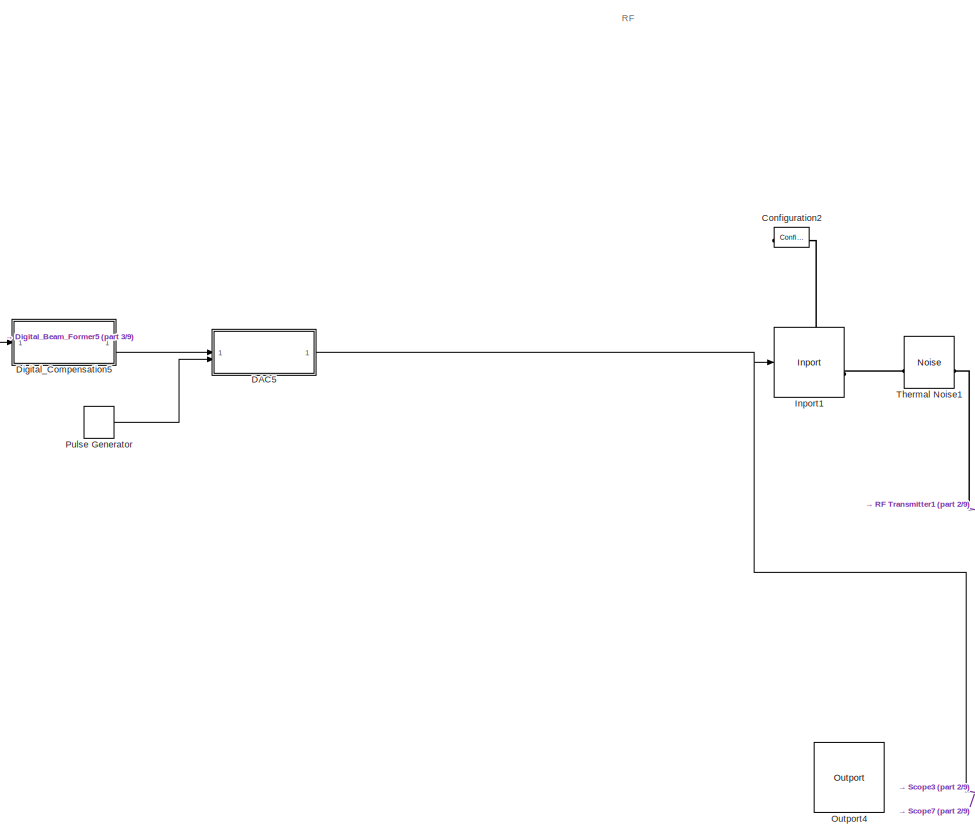
[diagram: root canvas - part 1/9, top left region]
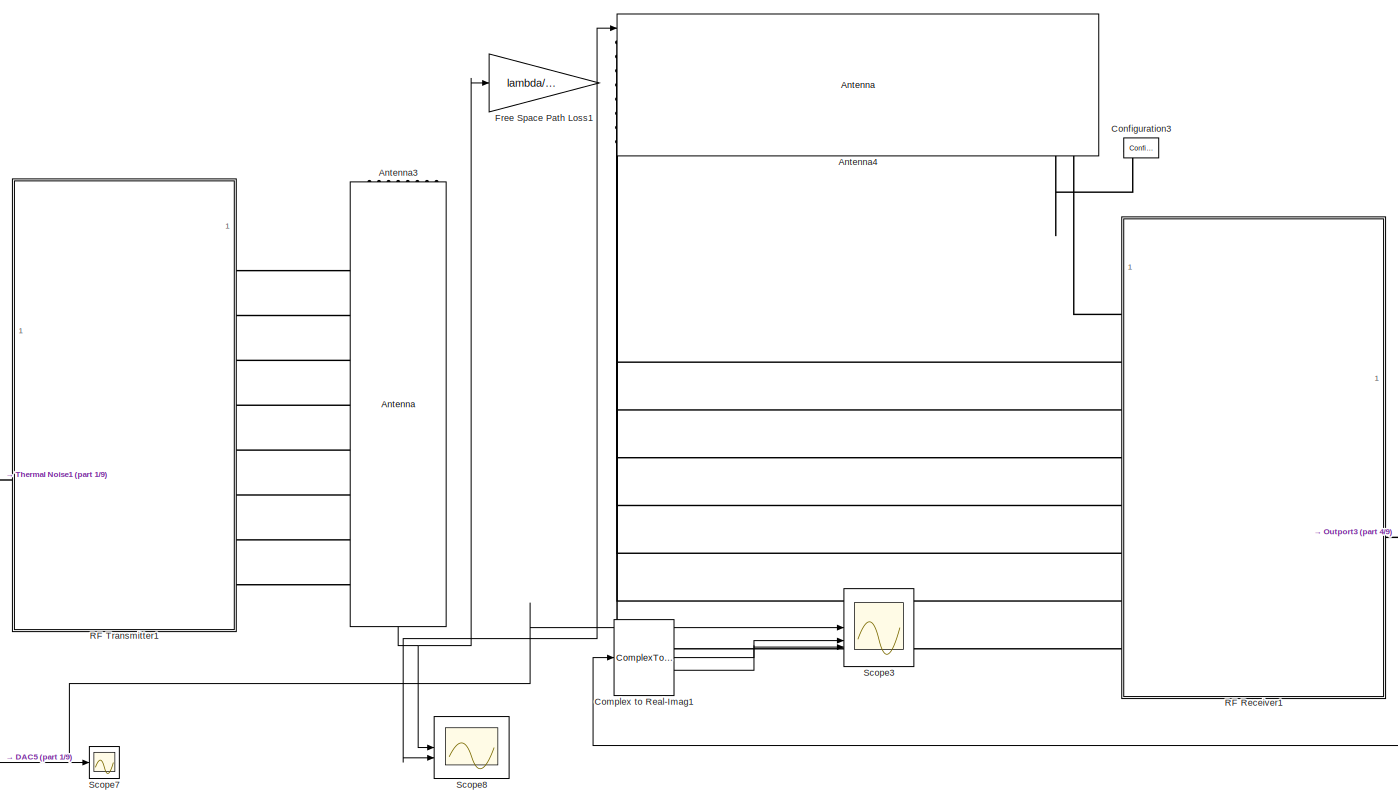
[diagram: root canvas - part 2/9, top center region]
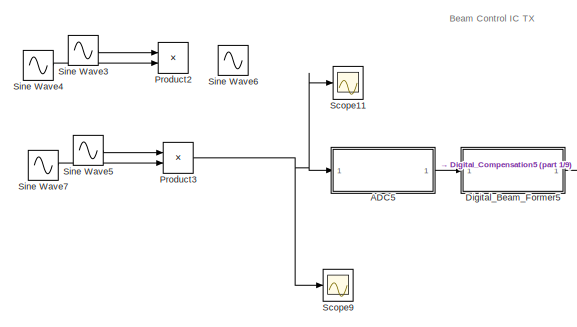
[diagram: root canvas - part 3/9, top left region]
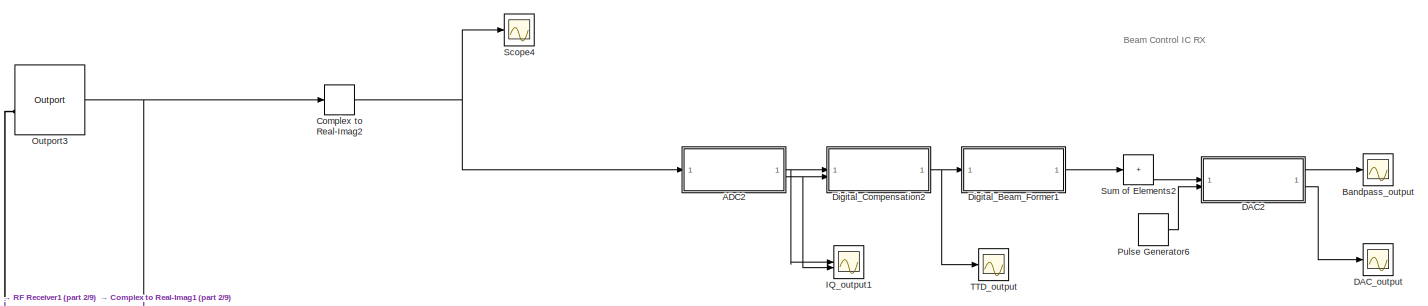
[diagram: root canvas - part 4/9, top right region]
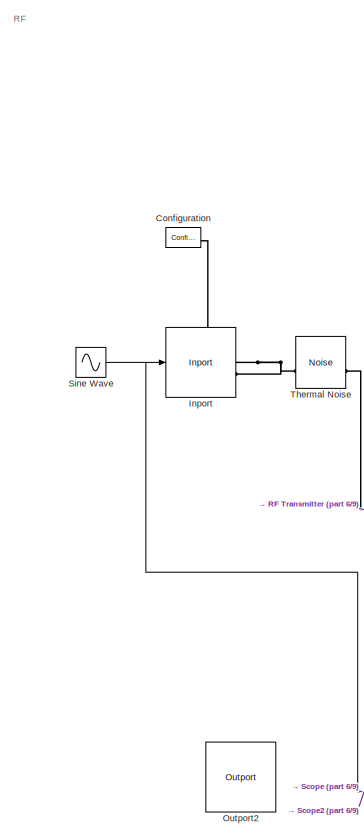
[diagram: root canvas - part 5/9, bottom left region]
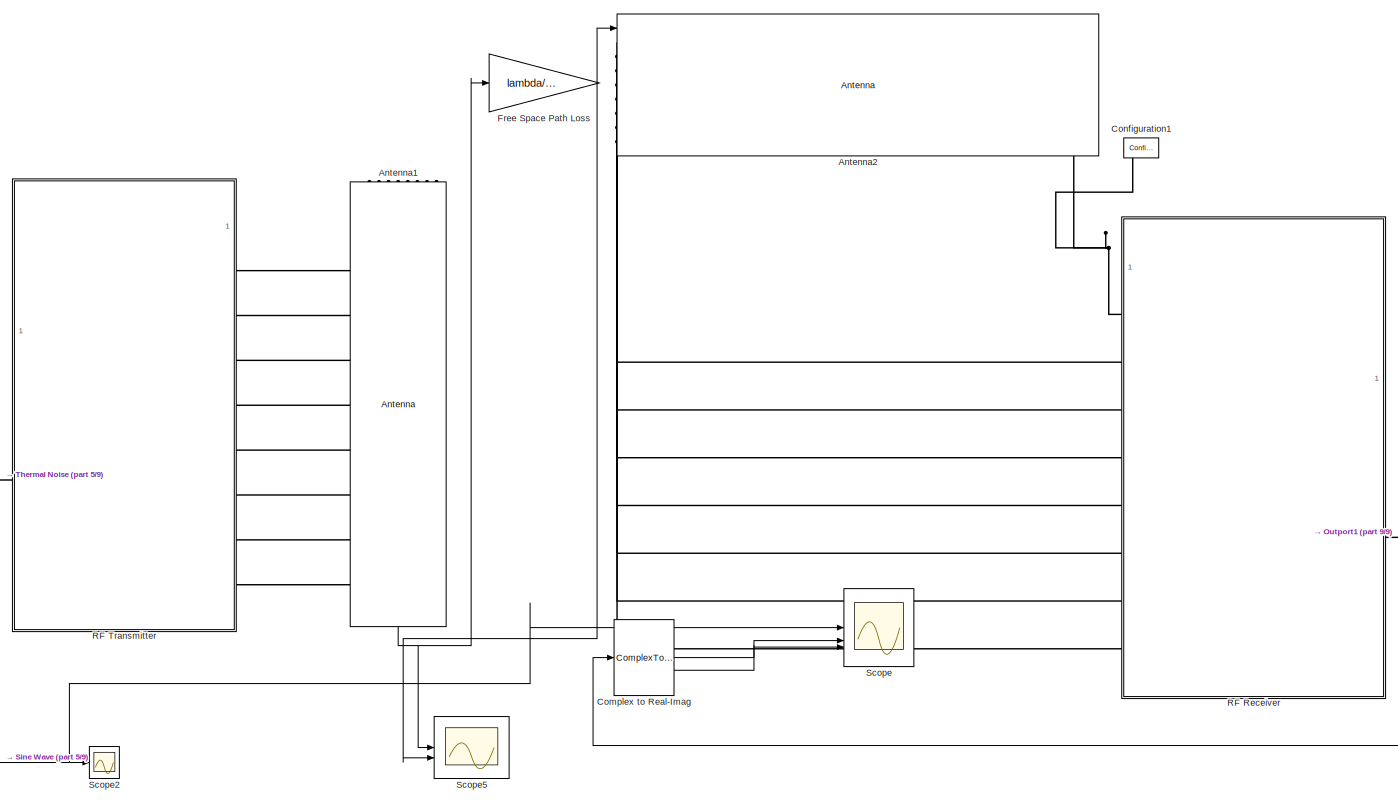
[diagram: root canvas - part 6/9, bottom center region]
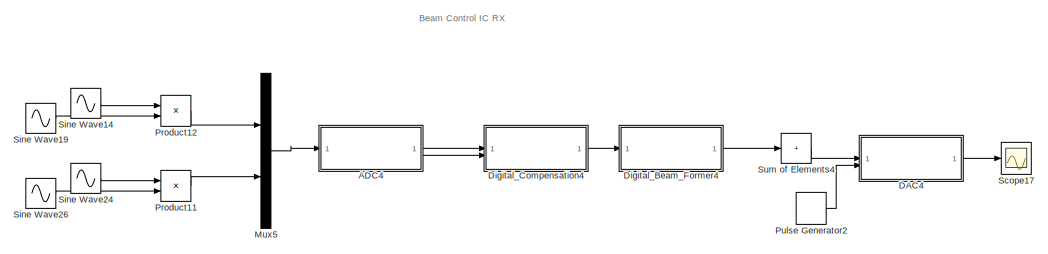
[diagram: root canvas - part 7/9, bottom right region]
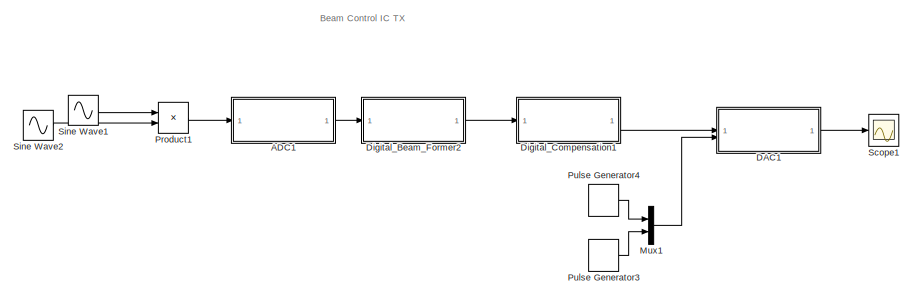
[diagram: root canvas - part 8/9, bottom left region]
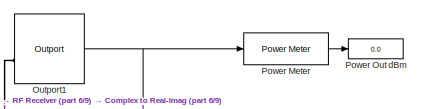
[diagram: root canvas - part 9/9, bottom right region]
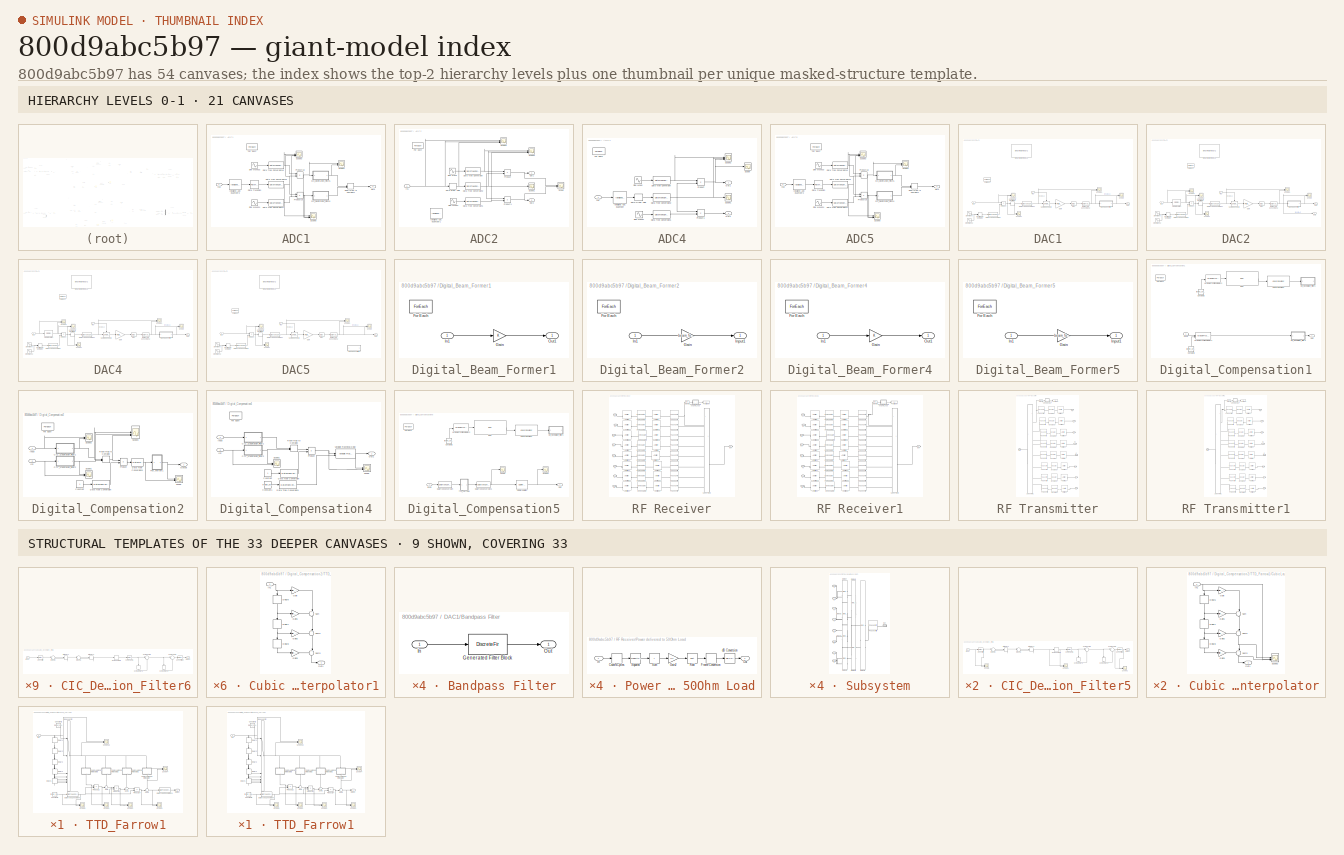
[diagram: thumbnail index - top-2 hierarchy levels (21 canvases) + 9 structural-template representatives of the remaining 33 canvases]
MODEL slx_800d9abc5b97
KIND model
CONFIG AbsTol = auto
CONFIG EnableMultiTasking = off
CONFIG FixedStep = auto
CONFIG MaxStep = auto
CONFIG MinStep = auto
CONFIG RelTol = 1e-3
CONFIG SampleTimeConstraint = Unconstrained
CONFIG SolverName = VariableStepAuto
CONFIG StartTime = 0.4e-7
CONFIG StopTime = 1e-7
BLOCK [SubSystem] ADC1
  Commented = on
  TreatAsAtomicUnit = on
BLOCK [SubSystem] ADC1/CIC_Decimation_Filter5
  ErrorFcn = dspFilterRealizedInBasicElemsAlgLoopErrFcnCallback
  Tag = FilterWizardSubSystem
  UserDataPersistent = on
BLOCK [DataTypeConversion] ADC1/CIC_Decimation_Filter5/CombCast5
  OutDataTypeStr = fixdt(1,34,15)
  RndMeth = Floor
  SaturateOnIntegerOverflow = off
BLOCK [Delay] ADC1/CIC_Decimation_Filter5/CombDelay5
  DelayLength = 1
  InitialCondition = 0
  InputPortMap = u0
  NameLocation = right
BLOCK [Delay] ADC1/CIC_Decimation_Filter5/CombDelay6
  DelayLength = 1
  InitialCondition = 0
  InputPortMap = u0
  NameLocation = right
BLOCK [Sum] ADC1/CIC_Decimation_Filter5/CombSum5
  AccumDataTypeStr = fixdt(1,34,15)
  Inputs = |+-
  OutDataTypeStr = fixdt(1,34,15)
BLOCK [Sum] ADC1/CIC_Decimation_Filter5/CombSum6
  AccumDataTypeStr = fixdt(1,34,15)
  Inputs = |+-
  OutDataTypeStr = fixdt(1,34,15)
BLOCK [DataTypeConversion] ADC1/CIC_Decimation_Filter5/ConvertIn
  OutDataTypeStr = fixdt(1,32,15)
  RndMeth = Nearest
BLOCK [DataTypeConversion] ADC1/CIC_Decimation_Filter5/ConvertOut
  OutDataTypeStr = fixdt(1,32,13)
  RndMeth = Floor
  SaturateOnIntegerOverflow = off
BLOCK [DownSample] ADC1/CIC_Decimation_Filter5/Down Sample
  AllowArbitraryFixedInput = on
  InputProcessing = Elements as channels (sample based)
  RateOptions = Allow multirate processing
BLOCK [Inport] ADC1/CIC_Decimation_Filter5/Input
BLOCK [Delay] ADC1/CIC_Decimation_Filter5/IntDelay2
  DelayLength = 1
  InitialCondition = 0
  InputPortMap = u0
BLOCK [Delay] ADC1/CIC_Decimation_Filter5/IntDelay3
  DelayLength = 1
  InitialCondition = 0
  InputPortMap = u0
BLOCK [Sum] ADC1/CIC_Decimation_Filter5/IntSum2
  AccumDataTypeStr = fixdt(1,34,15)
  Inputs = |++
  OutDataTypeStr = fixdt(1,34,15)
BLOCK [Sum] ADC1/CIC_Decimation_Filter5/IntSum3
  AccumDataTypeStr = fixdt(1,34,15)
  Inputs = |++
  OutDataTypeStr = fixdt(1,34,15)
BLOCK [Outport] ADC1/CIC_Decimation_Filter5/Output
BLOCK [Scope] ADC1/CIC_Decimation_Filter5/Scope
  Floating = off
  NumInputPorts = 2
  ScopeSpecificationString = Simulink.scopes.TimeScopeBlockCfg('CurrentConfiguration', extmgr.ConfigurationSet(extmgr.Configuration('Core','General UI',true),extmgr.Configuration('Core','Source UI',true),extmgr.Configuration('Sources','WiredSimulink',true,'DataLoggingVariableName','ScopeData1'),extmgr.Configuration('Visuals','Time Domain',true,'SerializedDisplays',{struct('MinYLimReal','-36.95312','MaxYLimReal','36.95312','YL...<+2062ch>
BLOCK [Scope] ADC1/CIC_Decimation_Filter5/Scope1
  Floating = off
  NumInputPorts = 2
  ScopeSpecificationString = Simulink.scopes.TimeScopeBlockCfg('CurrentConfiguration', extmgr.ConfigurationSet(extmgr.Configuration('Core','General UI',true),extmgr.Configuration('Core','Source UI',true),extmgr.Configuration('Sources','WiredSimulink',true,'DataLoggingVariableName','ScopeData2'),extmgr.Configuration('Visuals','Time Domain',true,'SerializedDisplays',{struct('MinYLimReal','-83.625','MaxYLimReal','752.625','YLabe...<+2028ch>
BLOCK [Scope] ADC1/CIC_Decimation_Filter5/Scope2
  Floating = off
  NumInputPorts = 2
  ScopeSpecificationString = Simulink.scopes.TimeScopeBlockCfg('CurrentConfiguration', extmgr.ConfigurationSet(extmgr.Configuration('Core','General UI',true),extmgr.Configuration('Core','Source UI',true),extmgr.Configuration('Sources','WiredSimulink',true,'DataLoggingVariableName','ScopeData3'),extmgr.Configuration('Visuals','Time Domain',true,'SerializedDisplays',{struct('MinYLimReal','-73.90625','MaxYLimReal','73.90625','YL...<+2076ch>
BLOCK [SubSystem] ADC1/CIC_Decimation_Filter6
  ErrorFcn = dspFilterRealizedInBasicElemsAlgLoopErrFcnCallback
  Tag = FilterWizardSubSystem
  UserDataPersistent = on
BLOCK [DataTypeConversion] ADC1/CIC_Decimation_Filter6/CombCast5
  OutDataTypeStr = fixdt(1,34,15)
  RndMeth = Floor
  SaturateOnIntegerOverflow = off
BLOCK [Delay] ADC1/CIC_Decimation_Filter6/CombDelay5
  DelayLength = 1
  InitialCondition = 0
  InputPortMap = u0
  NameLocation = right
BLOCK [Delay] ADC1/CIC_Decimation_Filter6/CombDelay6
  DelayLength = 1
  InitialCondition = 0
  InputPortMap = u0
  NameLocation = right
BLOCK [Sum] ADC1/CIC_Decimation_Filter6/CombSum5
  AccumDataTypeStr = fixdt(1,34,15)
  Inputs = |+-
  OutDataTypeStr = fixdt(1,34,15)
BLOCK [Sum] ADC1/CIC_Decimation_Filter6/CombSum6
  AccumDataTypeStr = fixdt(1,34,15)
  Inputs = |+-
  OutDataTypeStr = fixdt(1,34,15)
BLOCK [DataTypeConversion] ADC1/CIC_Decimation_Filter6/ConvertIn
  OutDataTypeStr = fixdt(1,32,15)
  RndMeth = Nearest
BLOCK [DataTypeConversion] ADC1/CIC_Decimation_Filter6/ConvertOut
  OutDataTypeStr = fixdt(1,32,13)
  RndMeth = Floor
  SaturateOnIntegerOverflow = off
BLOCK [DownSample] ADC1/CIC_Decimation_Filter6/Down Sample
  AllowArbitraryFixedInput = on
  InputProcessing = Elements as channels (sample based)
  RateOptions = Allow multirate processing
BLOCK [Inport] ADC1/CIC_Decimation_Filter6/Input
BLOCK [Delay] ADC1/CIC_Decimation_Filter6/IntDelay2
  DelayLength = 1
  InitialCondition = 0
  InputPortMap = u0
BLOCK [Delay] ADC1/CIC_Decimation_Filter6/IntDelay3
  DelayLength = 1
  InitialCondition = 0
  InputPortMap = u0
BLOCK [Sum] ADC1/CIC_Decimation_Filter6/IntSum2
  AccumDataTypeStr = fixdt(1,34,15)
  Inputs = |++
  OutDataTypeStr = fixdt(1,34,15)
BLOCK [Sum] ADC1/CIC_Decimation_Filter6/IntSum3
  AccumDataTypeStr = fixdt(1,34,15)
  Inputs = |++
  OutDataTypeStr = fixdt(1,34,15)
BLOCK [Outport] ADC1/CIC_Decimation_Filter6/Output
BLOCK [DataTypeConversion] ADC1/Data Type Conversion15
  OutDataTypeStr = fixdt(1,18,6)
  RndMeth = Floor
  SaturateOnIntegerOverflow = off
BLOCK [DataTypeConversion] ADC1/Data Type Conversion16
  OutDataTypeStr = fixdt(1,16,6)
  RndMeth = Floor
  SaturateOnIntegerOverflow = off
BLOCK [DataTypeConversion] ADC1/Data Type Conversion17
  OutDataTypeStr = fixdt(1,16,6)
  RndMeth = Floor
  SaturateOnIntegerOverflow = off
BLOCK [ForEach] ADC1/For Each
  DisableCoverage = on
  NameLocation = top
BLOCK [Reference] ADC1/Idealized ADC quantizer3  REF=simulink_extras/Additional
Discrete/Idealized ADC quantizer
  AttributesFormatString = (settings: %<NumberOfConverterBits>-bit converter\nVmin: %<Vmin>, Vmax: %<Vmax>)
  SourceBlock = simulink_extras/Additional\nDiscrete/Idealized ADC quantizer
  SourceType = IdealADC
BLOCK [Inport] ADC1/In1
  Partition = on
  PartitionDimension = 1
  PartitionOffset = 0
  PartitionWidth = 1
BLOCK [Outport] ADC1/Out1
  ConcatenationDimension = 1
BLOCK [Product] ADC1/Product18
BLOCK [Product] ADC1/Product19
BLOCK [RateTransition] ADC1/Rate Transition
  OutPortSampleTime = 1/1e9
BLOCK [RealImagToComplex] ADC1/Real-Imag to Complex4
BLOCK [Scope] ADC1/Scope3
  Floating = off
  NameLocation = left
  NumInputPorts = 3
  ScopeSpecificationString = Simulink.scopes.TimeScopeBlockCfg('CurrentConfiguration', extmgr.ConfigurationSet(extmgr.Configuration('Core','General UI',true),extmgr.Configuration('Core','Source UI',true),extmgr.Configuration('Sources','WiredSimulink',true,'DataLoggingVariableName','ScopeData14'),extmgr.Configuration('Visuals','Time Domain',true,'SerializedDisplays',{struct('MinYLimReal','-1.24805','MaxYLimReal','1.23242','YLa...<+2982ch>
BLOCK [Scope] ADC1/Scope4
  Floating = off
  NumInputPorts = 2
  ScopeSpecificationString = Simulink.scopes.TimeScopeBlockCfg('CurrentConfiguration', extmgr.ConfigurationSet(extmgr.Configuration('Core','General UI',true),extmgr.Configuration('Core','Source UI',true),extmgr.Configuration('Sources','WiredSimulink',true,'DataLoggingVariableName','ScopeData15'),extmgr.Configuration('Visuals','Time Domain',true,'SerializedDisplays',{struct('MinYLimReal','-36.95312','MaxYLimReal','36.95312','Y...<+2224ch>
BLOCK [Scope] ADC1/Scope8
  Floating = off
  NumInputPorts = 3
  ScopeSpecificationString = Simulink.scopes.TimeScopeBlockCfg('CurrentConfiguration', extmgr.ConfigurationSet(extmgr.Configuration('Core','General UI',true),extmgr.Configuration('Core','Source UI',true),extmgr.Configuration('Sources','WiredSimulink',true,'DataLoggingVariableName','ScopeData16'),extmgr.Configuration('Visuals','Time Domain',true,'SerializedDisplays',{struct('MinYLimReal','-2559.875','MaxYLimReal','2558.875','Y...<+3006ch>
BLOCK [Sin] ADC1/Sine Wave33
  Frequency = 2*pi*250e6
  Phase = 1.57
  SampleTime = 1/1e9
BLOCK [Sin] ADC1/Sine Wave34
  Frequency = 2*pi*250e6
  SampleTime = 1/1e9
BLOCK [SubSystem] ADC2
  TreatAsAtomicUnit = on
BLOCK [DataTypeConversion] ADC2/Data Type Conversion
  OutDataTypeStr = fixdt(1,16,6)
  OutMax = 1
  OutMin = -1
  RndMeth = Floor
  SaturateOnIntegerOverflow = off
BLOCK [DataTypeConversion] ADC2/Data Type Conversion1
  OutDataTypeStr = fixdt(1,16,6)
  OutMax = 1
  OutMin = -1
  RndMeth = Floor
  SaturateOnIntegerOverflow = off
BLOCK [DataTypeConversion] ADC2/Data Type Conversion2
  OutDataTypeStr = fixdt(1,16,15)
  OutMax = 0.9
  OutMin = -1
  RndMeth = Floor
  SaturateOnIntegerOverflow = off
BLOCK [ForEach] ADC2/For Each
  DisableCoverage = on
  NameLocation = top
BLOCK [Reference] ADC2/Idealized ADC quantizer1  REF=simulink_extras/Additional
Discrete/Idealized ADC quantizer
  AttributesFormatString = (settings: %<NumberOfConverterBits>-bit converter\nVmin: %<Vmin>, Vmax: %<Vmax>)
  Commented = on
  SourceBlock = simulink_extras/Additional\nDiscrete/Idealized ADC quantizer
  SourceType = IdealADC
BLOCK [Inport] ADC2/In1
  Partition = on
  PartitionDimension = 1
  PartitionOffset = 0
  PartitionWidth = 1
BLOCK [Outport] ADC2/Out1
  ConcatenationDimension = 1
BLOCK [Outport] ADC2/Out2
  ConcatenationDimension = 1
  Port = 2
BLOCK [Product] ADC2/Product
BLOCK [Product] ADC2/Product1
BLOCK [Scope] ADC2/Scope
  Floating = off
  NumInputPorts = 2
  ScopeSpecificationString = Simulink.scopes.TimeScopeBlockCfg('CurrentConfiguration', extmgr.ConfigurationSet(extmgr.Configuration('Core','General UI',true),extmgr.Configuration('Core','Source UI',true),extmgr.Configuration('Sources','WiredSimulink',true,'DataLoggingVariableName','ScopeData5'),extmgr.Configuration('Visuals','Time Domain',true,'SerializedDisplays',{struct('MinYLimReal','-0.00008','MaxYLimReal','0.00008','YLab...<+2075ch>
BLOCK [Scope] ADC2/Scope1
  Floating = off
  NumInputPorts = 1
  ScopeSpecificationString = Simulink.scopes.TimeScopeBlockCfg('CurrentConfiguration', extmgr.ConfigurationSet(extmgr.Configuration('Core','General UI',true),extmgr.Configuration('Core','Source UI',true),extmgr.Configuration('Sources','WiredSimulink',true,'DataLoggingVariableName','ScopeData6'),extmgr.Configuration('Visuals','Time Domain',true,'SerializedDisplays',{struct('MinYLimReal','-0.00011','MaxYLimReal','0.00008','YLab...<+1415ch>
BLOCK [Scope] ADC2/Scope2
  Floating = off
  NumInputPorts = 3
  ScopeSpecificationString = Simulink.scopes.TimeScopeBlockCfg('CurrentConfiguration', extmgr.ConfigurationSet(extmgr.Configuration('Core','General UI',true),extmgr.Configuration('Core','Source UI',true),extmgr.Configuration('Sources','WiredSimulink',true,'DataLoggingVariableName','ScopeData14'),extmgr.Configuration('Visuals','Time Domain',true,'SerializedDisplays',{struct('MinYLimReal','-1.24805','MaxYLimReal','1.23242','YLa...<+2855ch>
BLOCK [Scope] ADC2/Scope3
  Floating = off
  NumInputPorts = 3
  ScopeSpecificationString = Simulink.scopes.TimeScopeBlockCfg('CurrentConfiguration', extmgr.ConfigurationSet(extmgr.Configuration('Core','General UI',true),extmgr.Configuration('Core','Source UI',true),extmgr.Configuration('Sources','WiredSimulink',true,'DataLoggingVariableName','ScopeData9'),extmgr.Configuration('Visuals','Time Domain',true,'SerializedDisplays',{struct('MinYLimReal','-0.0001','MaxYLimReal','0.0001','YLabel...<+2787ch>
BLOCK [Sin] ADC2/Sine Wave
  Frequency = 2*pi*250e6
  Phase = 1.57
  SampleTime = 1/1e9
BLOCK [Sin] ADC2/Sine Wave1
  Frequency = 2*pi*250e6
  SampleTime = 1/1e9
BLOCK [ZeroOrderHold] ADC2/Zero-Order Hold
  SampleTime = 1/1e9
BLOCK [SubSystem] ADC4
  Commented = on
  TreatAsAtomicUnit = on
BLOCK [DataTypeConversion] ADC4/Data Type Conversion
  OutDataTypeStr = fixdt(1,16,6)
  OutMax = 1
  OutMin = -1
  RndMeth = Floor
  SaturateOnIntegerOverflow = off
BLOCK [DataTypeConversion] ADC4/Data Type Conversion1
  OutDataTypeStr = fixdt(1,16,6)
  OutMax = 1
  OutMin = -1
  RndMeth = Floor
  SaturateOnIntegerOverflow = off
BLOCK [DataTypeConversion] ADC4/Data Type Conversion2
  OutDataTypeStr = fixdt(1,18,6)
  OutMax = 2047
  OutMin = -2048
  RndMeth = Floor
  SaturateOnIntegerOverflow = off
BLOCK [ForEach] ADC4/For Each
  DisableCoverage = on
  NameLocation = top
BLOCK [Reference] ADC4/Idealized ADC quantizer  REF=simulink_extras/Additional
Discrete/Idealized ADC quantizer
  AttributesFormatString = (settings: %<NumberOfConverterBits>-bit converter\nVmin: %<Vmin>, Vmax: %<Vmax>)
  SourceBlock = simulink_extras/Additional\nDiscrete/Idealized ADC quantizer
  SourceType = IdealADC
BLOCK [Inport] ADC4/In1
  Partition = on
  PartitionDimension = 1
  PartitionOffset = 0
  PartitionWidth = 1
BLOCK [Outport] ADC4/Out1
  ConcatenationDimension = 1
BLOCK [Outport] ADC4/Out2
  ConcatenationDimension = 1
  Port = 2
BLOCK [Product] ADC4/Product
BLOCK [Product] ADC4/Product1
BLOCK [Scope] ADC4/Scope
  Floating = off
  NumInputPorts = 1
  ScopeSpecificationString = Simulink.scopes.TimeScopeBlockCfg('CurrentConfiguration', extmgr.ConfigurationSet(extmgr.Configuration('Core','General UI',true),extmgr.Configuration('Core','Source UI',true),extmgr.Configuration('Sources','WiredSimulink',true,'DataLoggingVariableName','ScopeData5'),extmgr.Configuration('Visuals','Time Domain',true,'SerializedDisplays',{struct('MinYLimReal','-2365.00000','MaxYLimReal','2365.00000'...<+1424ch>
BLOCK [Scope] ADC4/Scope1
  Floating = off
  NumInputPorts = 1
  ScopeSpecificationString = Simulink.scopes.TimeScopeBlockCfg('CurrentConfiguration', extmgr.ConfigurationSet(extmgr.Configuration('Core','General UI',true),extmgr.Configuration('Core','Source UI',true),extmgr.Configuration('Sources','WiredSimulink',true,'DataLoggingVariableName','ScopeData6'),extmgr.Configuration('Visuals','Time Domain',true,'SerializedDisplays',{struct('MinYLimReal','-2365.00000','MaxYLimReal','2365.00000'...<+1405ch>
BLOCK [Scope] ADC4/Scope2
  Floating = off
  NumInputPorts = 3
  ScopeSpecificationString = Simulink.scopes.TimeScopeBlockCfg('CurrentConfiguration', extmgr.ConfigurationSet(extmgr.Configuration('Core','General UI',true),extmgr.Configuration('Core','Source UI',true),extmgr.Configuration('Sources','WiredSimulink',true,'DataLoggingVariableName','ScopeData14'),extmgr.Configuration('Visuals','Time Domain',true,'SerializedDisplays',{struct('MinYLimReal','-1.24805','MaxYLimReal','1.23242','YLa...<+2827ch>
BLOCK [Sin] ADC4/Sine Wave
  Frequency = 2*pi*250e6
  Phase = 1.57
  SampleTime = 1/1e9
BLOCK [Sin] ADC4/Sine Wave1
  Frequency = 2*pi*250e6
  SampleTime = 1/1e9
BLOCK [ZeroOrderHold] ADC4/Zero-Order Hold
  SampleTime = 1/1e9
BLOCK [SubSystem] ADC5
  TreatAsAtomicUnit = on
BLOCK [SubSystem] ADC5/CIC_Decimation_Filter5
  ErrorFcn = dspFilterRealizedInBasicElemsAlgLoopErrFcnCallback
  Tag = FilterWizardSubSystem
  UserDataPersistent = on
BLOCK [DataTypeConversion] ADC5/CIC_Decimation_Filter5/CombCast5
  OutDataTypeStr = fixdt(1,34,15)
  RndMeth = Floor
  SaturateOnIntegerOverflow = off
BLOCK [Delay] ADC5/CIC_Decimation_Filter5/CombDelay5
  DelayLength = 1
  InitialCondition = 0
  InputPortMap = u0
  NameLocation = right
BLOCK [Delay] ADC5/CIC_Decimation_Filter5/CombDelay6
  DelayLength = 1
  InitialCondition = 0
  InputPortMap = u0
  NameLocation = right
BLOCK [Sum] ADC5/CIC_Decimation_Filter5/CombSum5
  AccumDataTypeStr = fixdt(1,34,15)
  Inputs = |+-
  OutDataTypeStr = fixdt(1,34,15)
BLOCK [Sum] ADC5/CIC_Decimation_Filter5/CombSum6
  AccumDataTypeStr = fixdt(1,34,15)
  Inputs = |+-
  OutDataTypeStr = fixdt(1,34,15)
BLOCK [DataTypeConversion] ADC5/CIC_Decimation_Filter5/ConvertIn
  OutDataTypeStr = fixdt(1,32,15)
  RndMeth = Nearest
BLOCK [DataTypeConversion] ADC5/CIC_Decimation_Filter5/ConvertOut
  OutDataTypeStr = fixdt(1,32,13)
  RndMeth = Floor
  SaturateOnIntegerOverflow = off
BLOCK [DownSample] ADC5/CIC_Decimation_Filter5/Down Sample
  AllowArbitraryFixedInput = on
  InputProcessing = Elements as channels (sample based)
  RateOptions = Allow multirate processing
BLOCK [Inport] ADC5/CIC_Decimation_Filter5/Input
BLOCK [Delay] ADC5/CIC_Decimation_Filter5/IntDelay2
  DelayLength = 1
  InitialCondition = 0
  InputPortMap = u0
BLOCK [Delay] ADC5/CIC_Decimation_Filter5/IntDelay3
  DelayLength = 1
  InitialCondition = 0
  InputPortMap = u0
BLOCK [Sum] ADC5/CIC_Decimation_Filter5/IntSum2
  AccumDataTypeStr = fixdt(1,34,15)
  Inputs = |++
  OutDataTypeStr = fixdt(1,34,15)
BLOCK [Sum] ADC5/CIC_Decimation_Filter5/IntSum3
  AccumDataTypeStr = fixdt(1,34,15)
  Inputs = |++
  OutDataTypeStr = fixdt(1,34,15)
BLOCK [Outport] ADC5/CIC_Decimation_Filter5/Output
BLOCK [Scope] ADC5/CIC_Decimation_Filter5/Scope
  Floating = off
  NumInputPorts = 2
  ScopeSpecificationString = Simulink.scopes.TimeScopeBlockCfg('CurrentConfiguration', extmgr.ConfigurationSet(extmgr.Configuration('Core','General UI',true),extmgr.Configuration('Core','Source UI',true),extmgr.Configuration('Sources','WiredSimulink',true,'DataLoggingVariableName','ScopeData1'),extmgr.Configuration('Visuals','Time Domain',true,'SerializedDisplays',{struct('MinYLimReal','-36.95312','MaxYLimReal','36.95312','YL...<+2062ch>
BLOCK [Scope] ADC5/CIC_Decimation_Filter5/Scope1
  Floating = off
  NumInputPorts = 2
  ScopeSpecificationString = Simulink.scopes.TimeScopeBlockCfg('CurrentConfiguration', extmgr.ConfigurationSet(extmgr.Configuration('Core','General UI',true),extmgr.Configuration('Core','Source UI',true),extmgr.Configuration('Sources','WiredSimulink',true,'DataLoggingVariableName','ScopeData2'),extmgr.Configuration('Visuals','Time Domain',true,'SerializedDisplays',{struct('MinYLimReal','-83.625','MaxYLimReal','752.625','YLabe...<+2028ch>
BLOCK [Scope] ADC5/CIC_Decimation_Filter5/Scope2
  Floating = off
  NumInputPorts = 2
  ScopeSpecificationString = Simulink.scopes.TimeScopeBlockCfg('CurrentConfiguration', extmgr.ConfigurationSet(extmgr.Configuration('Core','General UI',true),extmgr.Configuration('Core','Source UI',true),extmgr.Configuration('Sources','WiredSimulink',true,'DataLoggingVariableName','ScopeData3'),extmgr.Configuration('Visuals','Time Domain',true,'SerializedDisplays',{struct('MinYLimReal','-73.90625','MaxYLimReal','73.90625','YL...<+2076ch>
BLOCK [SubSystem] ADC5/CIC_Decimation_Filter6
  ErrorFcn = dspFilterRealizedInBasicElemsAlgLoopErrFcnCallback
  Tag = FilterWizardSubSystem
  UserDataPersistent = on
BLOCK [DataTypeConversion] ADC5/CIC_Decimation_Filter6/CombCast5
  OutDataTypeStr = fixdt(1,34,15)
  RndMeth = Floor
  SaturateOnIntegerOverflow = off
BLOCK [Delay] ADC5/CIC_Decimation_Filter6/CombDelay5
  DelayLength = 1
  InitialCondition = 0
  InputPortMap = u0
  NameLocation = right
BLOCK [Delay] ADC5/CIC_Decimation_Filter6/CombDelay6
  DelayLength = 1
  InitialCondition = 0
  InputPortMap = u0
  NameLocation = right
BLOCK [Sum] ADC5/CIC_Decimation_Filter6/CombSum5
  AccumDataTypeStr = fixdt(1,34,15)
  Inputs = |+-
  OutDataTypeStr = fixdt(1,34,15)
BLOCK [Sum] ADC5/CIC_Decimation_Filter6/CombSum6
  AccumDataTypeStr = fixdt(1,34,15)
  Inputs = |+-
  OutDataTypeStr = fixdt(1,34,15)
BLOCK [DataTypeConversion] ADC5/CIC_Decimation_Filter6/ConvertIn
  OutDataTypeStr = fixdt(1,32,15)
  RndMeth = Nearest
BLOCK [DataTypeConversion] ADC5/CIC_Decimation_Filter6/ConvertOut
  OutDataTypeStr = fixdt(1,32,13)
  RndMeth = Floor
  SaturateOnIntegerOverflow = off
BLOCK [DownSample] ADC5/CIC_Decimation_Filter6/Down Sample
  AllowArbitraryFixedInput = on
  InputProcessing = Elements as channels (sample based)
  RateOptions = Allow multirate processing
BLOCK [Inport] ADC5/CIC_Decimation_Filter6/Input
BLOCK [Delay] ADC5/CIC_Decimation_Filter6/IntDelay2
  DelayLength = 1
  InitialCondition = 0
  InputPortMap = u0
BLOCK [Delay] ADC5/CIC_Decimation_Filter6/IntDelay3
  DelayLength = 1
  InitialCondition = 0
  InputPortMap = u0
BLOCK [Sum] ADC5/CIC_Decimation_Filter6/IntSum2
  AccumDataTypeStr = fixdt(1,34,15)
  Inputs = |++
  OutDataTypeStr = fixdt(1,34,15)
BLOCK [Sum] ADC5/CIC_Decimation_Filter6/IntSum3
  AccumDataTypeStr = fixdt(1,34,15)
  Inputs = |++
  OutDataTypeStr = fixdt(1,34,15)
BLOCK [Outport] ADC5/CIC_Decimation_Filter6/Output
BLOCK [DataTypeConversion] ADC5/Data Type Conversion15
  OutDataTypeStr = fixdt(1,18,6)
  RndMeth = Floor
  SaturateOnIntegerOverflow = off
BLOCK [DataTypeConversion] ADC5/Data Type Conversion16
  OutDataTypeStr = fixdt(1,16,6)
  RndMeth = Floor
  SaturateOnIntegerOverflow = off
BLOCK [DataTypeConversion] ADC5/Data Type Conversion17
  OutDataTypeStr = fixdt(1,16,6)
  RndMeth = Floor
  SaturateOnIntegerOverflow = off
BLOCK [ForEach] ADC5/For Each
  DisableCoverage = on
  NameLocation = top
BLOCK [Reference] ADC5/Idealized ADC quantizer3  REF=simulink_extras/Additional
Discrete/Idealized ADC quantizer
  AttributesFormatString = (settings: %<NumberOfConverterBits>-bit converter\nVmin: %<Vmin>, Vmax: %<Vmax>)
  SourceBlock = simulink_extras/Additional\nDiscrete/Idealized ADC quantizer
  SourceType = IdealADC
BLOCK [Inport] ADC5/In1
  Partition = on
  PartitionDimension = 1
  PartitionOffset = 0
  PartitionWidth = 1
BLOCK [Outport] ADC5/Out1
  ConcatenationDimension = 1
BLOCK [Product] ADC5/Product18
BLOCK [Product] ADC5/Product19
BLOCK [RateTransition] ADC5/Rate Transition
  OutPortSampleTime = 1/1e9
BLOCK [RealImagToComplex] ADC5/Real-Imag to Complex4
BLOCK [Scope] ADC5/Scope3
  Floating = off
  NameLocation = left
  NumInputPorts = 3
  ScopeSpecificationString = Simulink.scopes.TimeScopeBlockCfg('CurrentConfiguration', extmgr.ConfigurationSet(extmgr.Configuration('Core','General UI',true),extmgr.Configuration('Core','Source UI',true),extmgr.Configuration('Sources','WiredSimulink',true,'DataLoggingVariableName','ScopeData14'),extmgr.Configuration('Visuals','Time Domain',true,'SerializedDisplays',{struct('MinYLimReal','-1.24805','MaxYLimReal','1.23242','YLa...<+3053ch>
BLOCK [Scope] ADC5/Scope4
  Floating = off
  NumInputPorts = 2
  ScopeSpecificationString = Simulink.scopes.TimeScopeBlockCfg('CurrentConfiguration', extmgr.ConfigurationSet(extmgr.Configuration('Core','General UI',true),extmgr.Configuration('Core','Source UI',true),extmgr.Configuration('Sources','WiredSimulink',true,'DataLoggingVariableName','ScopeData15'),extmgr.Configuration('Visuals','Time Domain',true,'SerializedDisplays',{struct('MinYLimReal','-2.30469','MaxYLimReal','2.30469','YLa...<+2205ch>
BLOCK [Scope] ADC5/Scope8
  Floating = off
  NumInputPorts = 3
  ScopeSpecificationString = Simulink.scopes.TimeScopeBlockCfg('CurrentConfiguration', extmgr.ConfigurationSet(extmgr.Configuration('Core','General UI',true),extmgr.Configuration('Core','Source UI',true),extmgr.Configuration('Sources','WiredSimulink',true,'DataLoggingVariableName','ScopeData16'),extmgr.Configuration('Visuals','Time Domain',true,'SerializedDisplays',{struct('MinYLimReal','-2559.875','MaxYLimReal','2558.875','Y...<+3006ch>
BLOCK [Sin] ADC5/Sine Wave33
  Frequency = 2*pi*250e6
  Phase = 1.57
  SampleTime = 1/1e9
BLOCK [Sin] ADC5/Sine Wave34
  Frequency = 2*pi*250e6
  SampleTime = 1/1e9
BLOCK [Reference] Antenna1  REF=simrfV2elements/Antenna
  Commented = on
  NameLocation = left
  SourceBlock = simrfV2elements/Antenna
  SourceType = Antenna
  UserDataPersistent = on
BLOCK [Reference] Antenna2  REF=simrfV2elements/Antenna
  Commented = on
  SourceBlock = simrfV2elements/Antenna
  SourceType = Antenna
  UserDataPersistent = on
BLOCK [Reference] Antenna3  REF=simrfV2elements/Antenna
  NameLocation = left
  SourceBlock = simrfV2elements/Antenna
  SourceType = Antenna
  UserDataPersistent = on
BLOCK [Reference] Antenna4  REF=simrfV2elements/Antenna
  SourceBlock = simrfV2elements/Antenna
  SourceType = Antenna
  UserDataPersistent = on
BLOCK [Scope] Bandpass_output
  Floating = off
  NumInputPorts = 1
  ScopeSpecificationString = Simulink.scopes.TimeScopeBlockCfg('CurrentConfiguration', extmgr.ConfigurationSet(extmgr.Configuration('Core','General UI',true),extmgr.Configuration('Core','Source UI',true),extmgr.Configuration('Sources','WiredSimulink',true,'DataLoggingVariableName','ScopeData17'),extmgr.Configuration('Visuals','Time Domain',true,'SerializedDisplays',{struct('MinYLimReal','-0.00000013','MaxYLimReal','0.00000013...<+1419ch>
BLOCK [ComplexToRealImag] Complex to Real-Imag
  Commented = on
BLOCK [ComplexToRealImag] Complex to Real-Imag1
BLOCK [ComplexToRealImag] Complex to Real-Imag2
  Output = Real
BLOCK [Reference] Configuration  REF=simrfV2util1/Configuration
  Commented = on
  SourceBlock = simrfV2util1/Configuration
  SourceType = Configuration
BLOCK [Reference] Configuration1  REF=simrfV2util1/Configuration
  Commented = on
  SourceBlock = simrfV2util1/Configuration
  SourceType = Configuration
BLOCK [Reference] Configuration2  REF=simrfV2util1/Configuration
  SourceBlock = simrfV2util1/Configuration
  SourceType = Configuration
BLOCK [Reference] Configuration3  REF=simrfV2util1/Configuration
  SourceBlock = simrfV2util1/Configuration
  SourceType = Configuration
BLOCK [SubSystem] DAC1
  Commented = on
  TreatAsAtomicUnit = on
BLOCK [SubSystem] DAC1/Bandpass Filter
  CopyFcn = fdesignblkfcn(gcbh, {'CopyFcn'});
  DialogController = fdesignblkfcn
  InitFcn = fdesignblkfcn(gcbh, {'InitFcn'});
  UserDataPersistent = on
BLOCK [DiscreteFir] DAC1/Bandpass Filter/Generated Filter Block
  Coefficients = [-0.0012202546535986659 -9.13233975482966975e-05 -8.99256829754742885e-05 -8.49568620794813187e-05 -7.65918257031608733e-05 -6.45471094074974157e-05 -4.91277813323746533e-05 -3.02130898541744078e-05 -8.26870645732298906e-06 1.6671662698626823e-05 4.39541890279793922e-05 7.34165310252373626e-05 0.00010423396503717428 0.000136131752137668013 0.000168143983641900536 0.000199929301866810821 0.00023043...<+11371ch>  <repeated x3 — deduplicated; at blocks: Generated Filter Block>
  InputPortMap = u0
  InputProcessing = Columns as channels (frame based)
  OutputPortMap = o0
  Tag = BlockMethodSubSystem
BLOCK [Inport] DAC1/Bandpass Filter/In
BLOCK [Outport] DAC1/Bandpass Filter/Out
  VectorParamsAs1DForOutWhenUnconnected = off
BLOCK [Bias] DAC1/Bias
  Bias = Bias
  SaturateOnIntegerOverflow = off
BLOCK [Reference] DAC1/Binary Weighted DAC  REF=msbDacArchitectures/Binary Weighted DAC
  Commented = on
  NameLocation = top
  SourceBlock = msbDacArchitectures/Binary Weighted DAC
  SourceType = Binary Weighted DAC
BLOCK [ComplexToRealImag] DAC1/Complex to Real-Imag
  Output = Real
BLOCK [DataTypeConversion] DAC1/Data Type Conversion
  OutDataTypeStr = fixdt(1,16,6)
  RndMeth = Floor
  SaturateOnIntegerOverflow = off
BLOCK [DataTypeConversion] DAC1/Data Type Conversion1
  OutDataTypeStr = double
  RndMeth = Floor
  SaturateOnIntegerOverflow = off
BLOCK [DataTypeConversion] DAC1/Data Type Conversion2
  OutDataTypeStr = double
  RndMeth = Floor
  SaturateOnIntegerOverflow = off
BLOCK [ForEach] DAC1/For Each
  DisableCoverage = on
BLOCK [Gain] DAC1/Gain
  Gain = Ref / 2^N
BLOCK [Inport] DAC1/In1
  Partition = on
  PartitionDimension = 1
  PartitionOffset = 0
  PartitionWidth = 1
BLOCK [Inport] DAC1/In2
  Partition = on
  PartitionDimension = 1
  PartitionOffset = 0
  PartitionWidth = 1
  Port = 2
BLOCK [Outport] DAC1/Out1
  ConcatenationDimension = 1
BLOCK [Product] DAC1/Product
BLOCK [RealImagToComplex] DAC1/Real-Imag to Complex
BLOCK [Reference] DAC1/Sample and Hold  REF=dspsigops/Sample
and Hold
  SourceBlock = dspsigops/Sample\nand Hold
  SourceType = Sample and Hold
BLOCK [Scope] DAC1/Scope
  Floating = off
  NumInputPorts = 2
  ScopeSpecificationString = Simulink.scopes.TimeScopeBlockCfg('CurrentConfiguration', extmgr.ConfigurationSet(extmgr.Configuration('Core','General UI',true),extmgr.Configuration('Core','Source UI',true),extmgr.Configuration('Sources','WiredSimulink',true,'DataLoggingVariableName','ScopeData2'),extmgr.Configuration('Visuals','Time Domain',true,'SerializedDisplays',{struct('MinYLimReal','-37.83538','MaxYLimReal','37.83538','YL...<+2043ch>
BLOCK [Scope] DAC1/Scope1
  Floating = off
  NumInputPorts = 2
  ScopeSpecificationString = Simulink.scopes.TimeScopeBlockCfg('CurrentConfiguration', extmgr.ConfigurationSet(extmgr.Configuration('Core','General UI',true),extmgr.Configuration('Core','Source UI',true),extmgr.Configuration('Sources','WiredSimulink',true,'DataLoggingVariableName','ScopeData3'),extmgr.Configuration('Visuals','Time Domain',true,'SerializedDisplays',{struct('MinYLimReal','-18919.56696','MaxYLimReal','18919.5669...<+2141ch>
BLOCK [Scope] DAC1/Scope3
  Floating = off
  NumInputPorts = 2
  ScopeSpecificationString = Simulink.scopes.TimeScopeBlockCfg('CurrentConfiguration', extmgr.ConfigurationSet(extmgr.Configuration('Core','General UI',true),extmgr.Configuration('Core','Source UI',true),extmgr.Configuration('Sources','WiredSimulink',true,'DataLoggingVariableName','ScopeData8'),extmgr.Configuration('Visuals','Time Domain',true,'SerializedDisplays',{struct('MinYLimReal','-18919.56696','MaxYLimReal','18919.5669...<+2101ch>
BLOCK [Scope] DAC1/Scope4
  Floating = off
  NumInputPorts = 2
  ScopeSpecificationString = Simulink.scopes.TimeScopeBlockCfg('CurrentConfiguration', extmgr.ConfigurationSet(extmgr.Configuration('Core','General UI',true),extmgr.Configuration('Core','Source UI',true),extmgr.Configuration('Sources','WiredSimulink',true,'DataLoggingVariableName','ScopeData12'),extmgr.Configuration('Visuals','Time Domain',true,'SerializedDisplays',{struct('MinYLimReal','-18917.69043','MaxYLimReal','18917.690...<+2117ch>
BLOCK [Sin] DAC1/Sine Wave
  Frequency = 2*pi*250e6
  Phase = 1.57
  SampleTime = 1/1e9
BLOCK [Sin] DAC1/Sine Wave2
  Frequency = 2*pi*250e6
  SampleTime = 1/1e9
BLOCK [SubSystem] DAC2
  TreatAsAtomicUnit = on
BLOCK [SubSystem] DAC2/Bandpass Filter
  CopyFcn = fdesignblkfcn(gcbh, {'CopyFcn'});
  DialogController = fdesignblkfcn
  InitFcn = fdesignblkfcn(gcbh, {'InitFcn'});
  UserDataPersistent = on
BLOCK [DiscreteFir] DAC2/Bandpass Filter/Generated Filter Block
  InputPortMap = u0
  InputProcessing = Columns as channels (frame based)
  OutputPortMap = o0
  Tag = BlockMethodSubSystem
BLOCK [Inport] DAC2/Bandpass Filter/In
BLOCK [Outport] DAC2/Bandpass Filter/Out
  VectorParamsAs1DForOutWhenUnconnected = off
BLOCK [Bias] DAC2/Bias
  Bias = Bias
  SaturateOnIntegerOverflow = off
BLOCK [Reference] DAC2/Binary Weighted DAC  REF=msbDacArchitectures/Binary Weighted DAC
  Commented = on
  NameLocation = top
  SourceBlock = msbDacArchitectures/Binary Weighted DAC
  SourceType = Binary Weighted DAC
BLOCK [Reference] DAC2/CIC Interpolation  REF=dspmlti4/CIC
Interpolation
  LibrarySourceBlock = dsphdlsupportfiltering/CIC\nInterpolation
  SourceBlock = dspmlti4/CIC\nInterpolation
  SourceType = CIC Interpolation
  UserDataPersistent = on
BLOCK [ComplexToRealImag] DAC2/Complex to Real-Imag
  Output = Real
BLOCK [DataTypeConversion] DAC2/Data Type Conversion
  OutDataTypeStr = fixdt(1,16,6)
  RndMeth = Floor
  SaturateOnIntegerOverflow = off
BLOCK [DataTypeConversion] DAC2/Data Type Conversion1
  OutDataTypeStr = double
  RndMeth = Floor
  SaturateOnIntegerOverflow = off
BLOCK [DataTypeConversion] DAC2/Data Type Conversion2
  OutDataTypeStr = double
  RndMeth = Floor
  SaturateOnIntegerOverflow = off
BLOCK [ForEach] DAC2/For Each
  DisableCoverage = on
BLOCK [Gain] DAC2/Gain
  Gain = Ref / 2^N
BLOCK [Inport] DAC2/In1
  Partition = on
  PartitionDimension = 1
  PartitionOffset = 0
  PartitionWidth = 1
BLOCK [Inport] DAC2/In2
  Partition = on
  PartitionDimension = 1
  PartitionOffset = 0
  PartitionWidth = 1
  Port = 2
BLOCK [Outport] DAC2/Out1
  ConcatenationDimension = 1
BLOCK [Outport] DAC2/Out2
  ConcatenationDimension = 1
  Port = 2
BLOCK [Product] DAC2/Product
BLOCK [RealImagToComplex] DAC2/Real-Imag to Complex
BLOCK [Reference] DAC2/Sample and Hold  REF=dspsigops/Sample
and Hold
  SourceBlock = dspsigops/Sample\nand Hold
  SourceType = Sample and Hold
BLOCK [Scope] DAC2/Scope
  Floating = off
  NumInputPorts = 2
  ScopeSpecificationString = Simulink.scopes.TimeScopeBlockCfg('CurrentConfiguration', extmgr.ConfigurationSet(extmgr.Configuration('Core','General UI',true),extmgr.Configuration('Core','Source UI',true),extmgr.Configuration('Sources','WiredSimulink',true,'DataLoggingVariableName','ScopeData2'),extmgr.Configuration('Visuals','Time Domain',true,'SerializedDisplays',{struct('MinYLimReal','-0.0000006','MaxYLimReal','0.0000006','...<+2054ch>
BLOCK [Scope] DAC2/Scope1
  Floating = off
  NumInputPorts = 2
  ScopeSpecificationString = Simulink.scopes.TimeScopeBlockCfg('CurrentConfiguration', extmgr.ConfigurationSet(extmgr.Configuration('Core','General UI',true),extmgr.Configuration('Core','Source UI',true),extmgr.Configuration('Sources','WiredSimulink',true,'DataLoggingVariableName','ScopeData3'),extmgr.Configuration('Visuals','Time Domain',true,'SerializedDisplays',{struct('MinYLimReal','-0.039','MaxYLimReal','0.03851','YLabel...<+2114ch>
BLOCK [Scope] DAC2/Scope2
  Floating = off
  NumInputPorts = 2
  ScopeSpecificationString = Simulink.scopes.TimeScopeBlockCfg('CurrentConfiguration', extmgr.ConfigurationSet(extmgr.Configuration('Core','General UI',true),extmgr.Configuration('Core','Source UI',true),extmgr.Configuration('Sources','WiredSimulink',true,'DataLoggingVariableName','ScopeData4'),extmgr.Configuration('Visuals','Time Domain',true,'SerializedDisplays',{struct('MinYLimReal','-0.01939','MaxYLimReal','0.01952','YLab...<+2144ch>
BLOCK [Scope] DAC2/Scope3
  Floating = off
  NumInputPorts = 2
  ScopeSpecificationString = Simulink.scopes.TimeScopeBlockCfg('CurrentConfiguration', extmgr.ConfigurationSet(extmgr.Configuration('Core','General UI',true),extmgr.Configuration('Core','Source UI',true),extmgr.Configuration('Sources','WiredSimulink',true,'DataLoggingVariableName','ScopeData8'),extmgr.Configuration('Visuals','Time Domain',true,'SerializedDisplays',{struct('MinYLimReal','-0.03516','MaxYLimReal','0.00391','YLab...<+2078ch>
BLOCK [Scope] DAC2/Scope4
  Floating = off
  NumInputPorts = 2
  ScopeSpecificationString = Simulink.scopes.TimeScopeBlockCfg('CurrentConfiguration', extmgr.ConfigurationSet(extmgr.Configuration('Core','General UI',true),extmgr.Configuration('Core','Source UI',true),extmgr.Configuration('Sources','WiredSimulink',true,'DataLoggingVariableName','ScopeData12'),extmgr.Configuration('Visuals','Time Domain',true,'SerializedDisplays',{struct('MinYLimReal','-0.07809','MaxYLimReal','0.07785','YLa...<+2151ch>
BLOCK [Sin] DAC2/Sine Wave
  Frequency = 2*pi*250e6
  Phase = 1.57
  SampleTime = 1/1e9
BLOCK [Sin] DAC2/Sine Wave2
  Frequency = 2*pi*250e6
  SampleTime = 1/1e9
BLOCK [SubSystem] DAC4
  Commented = on
  TreatAsAtomicUnit = on
BLOCK [SubSystem] DAC4/Bandpass Filter
  CopyFcn = fdesignblkfcn(gcbh, {'CopyFcn'});
  DialogController = fdesignblkfcn
  InitFcn = fdesignblkfcn(gcbh, {'InitFcn'});
  UserDataPersistent = on
BLOCK [DiscreteFir] DAC4/Bandpass Filter/Generated Filter Block
  InputPortMap = u0
  InputProcessing = Columns as channels (frame based)
  OutputPortMap = o0
  Tag = BlockMethodSubSystem
BLOCK [Inport] DAC4/Bandpass Filter/In
BLOCK [Outport] DAC4/Bandpass Filter/Out
  VectorParamsAs1DForOutWhenUnconnected = off
BLOCK [Bias] DAC4/Bias
  Bias = Bias
  SaturateOnIntegerOverflow = off
BLOCK [Reference] DAC4/Binary Weighted DAC  REF=msbDacArchitectures/Binary Weighted DAC
  Commented = on
  NameLocation = top
  SourceBlock = msbDacArchitectures/Binary Weighted DAC
  SourceType = Binary Weighted DAC
BLOCK [Reference] DAC4/CIC Interpolation  REF=dspmlti4/CIC
Interpolation
  LibrarySourceBlock = dsphdlsupportfiltering/CIC\nInterpolation
  SourceBlock = dspmlti4/CIC\nInterpolation
  SourceType = CIC Interpolation
  UserDataPersistent = on
BLOCK [ComplexToRealImag] DAC4/Complex to Real-Imag
  Output = Real
BLOCK [DataTypeConversion] DAC4/Data Type Conversion
  OutDataTypeStr = fixdt(1,16,6)
  RndMeth = Floor
  SaturateOnIntegerOverflow = off
BLOCK [DataTypeConversion] DAC4/Data Type Conversion1
  OutDataTypeStr = double
  RndMeth = Floor
  SaturateOnIntegerOverflow = off
BLOCK [DataTypeConversion] DAC4/Data Type Conversion2
  OutDataTypeStr = double
  RndMeth = Floor
  SaturateOnIntegerOverflow = off
BLOCK [ForEach] DAC4/For Each
  DisableCoverage = on
BLOCK [Gain] DAC4/Gain
  Gain = Ref / 2^N
BLOCK [Inport] DAC4/In1
  Partition = on
  PartitionDimension = 1
  PartitionOffset = 0
  PartitionWidth = 1
BLOCK [Inport] DAC4/In2
  Partition = on
  PartitionDimension = 1
  PartitionOffset = 0
  PartitionWidth = 1
  Port = 2
BLOCK [Outport] DAC4/Out1
  ConcatenationDimension = 1
BLOCK [Product] DAC4/Product
BLOCK [RealImagToComplex] DAC4/Real-Imag to Complex
BLOCK [Reference] DAC4/Sample and Hold  REF=dspsigops/Sample
and Hold
  SourceBlock = dspsigops/Sample\nand Hold
  SourceType = Sample and Hold
BLOCK [Scope] DAC4/Scope
  Floating = off
  NumInputPorts = 2
  ScopeSpecificationString = Simulink.scopes.TimeScopeBlockCfg('CurrentConfiguration', extmgr.ConfigurationSet(extmgr.Configuration('Core','General UI',true),extmgr.Configuration('Core','Source UI',true),extmgr.Configuration('Sources','WiredSimulink',true,'DataLoggingVariableName','ScopeData2'),extmgr.Configuration('Visuals','Time Domain',true,'SerializedDisplays',{struct('MinYLimReal','-37.83538','MaxYLimReal','37.83538','YL...<+2043ch>
BLOCK [Scope] DAC4/Scope1
  Floating = off
  NumInputPorts = 2
  ScopeSpecificationString = Simulink.scopes.TimeScopeBlockCfg('CurrentConfiguration', extmgr.ConfigurationSet(extmgr.Configuration('Core','General UI',true),extmgr.Configuration('Core','Source UI',true),extmgr.Configuration('Sources','WiredSimulink',true,'DataLoggingVariableName','ScopeData3'),extmgr.Configuration('Visuals','Time Domain',true,'SerializedDisplays',{struct('MinYLimReal','-18919.56696','MaxYLimReal','18919.5669...<+2141ch>
BLOCK [Scope] DAC4/Scope2
  Floating = off
  NumInputPorts = 2
  ScopeSpecificationString = Simulink.scopes.TimeScopeBlockCfg('CurrentConfiguration', extmgr.ConfigurationSet(extmgr.Configuration('Core','General UI',true),extmgr.Configuration('Core','Source UI',true),extmgr.Configuration('Sources','WiredSimulink',true,'DataLoggingVariableName','ScopeData4'),extmgr.Configuration('Visuals','Time Domain',true,'SerializedDisplays',{struct('MinYLimReal','-9460.00000','MaxYLimReal','9460.00000'...<+2163ch>
BLOCK [Scope] DAC4/Scope3
  Floating = off
  NumInputPorts = 2
  ScopeSpecificationString = Simulink.scopes.TimeScopeBlockCfg('CurrentConfiguration', extmgr.ConfigurationSet(extmgr.Configuration('Core','General UI',true),extmgr.Configuration('Core','Source UI',true),extmgr.Configuration('Sources','WiredSimulink',true,'DataLoggingVariableName','ScopeData8'),extmgr.Configuration('Visuals','Time Domain',true,'SerializedDisplays',{struct('MinYLimReal','-18919.56696','MaxYLimReal','18919.5669...<+2101ch>
BLOCK [Scope] DAC4/Scope4
  Floating = off
  NumInputPorts = 2
  ScopeSpecificationString = Simulink.scopes.TimeScopeBlockCfg('CurrentConfiguration', extmgr.ConfigurationSet(extmgr.Configuration('Core','General UI',true),extmgr.Configuration('Core','Source UI',true),extmgr.Configuration('Sources','WiredSimulink',true,'DataLoggingVariableName','ScopeData12'),extmgr.Configuration('Visuals','Time Domain',true,'SerializedDisplays',{struct('MinYLimReal','-18917.69043','MaxYLimReal','18917.690...<+2117ch>
BLOCK [Sin] DAC4/Sine Wave
  Frequency = 2*pi*250e6
  Phase = 1.57
  SampleTime = 1/1e9
BLOCK [Sin] DAC4/Sine Wave2
  Frequency = 2*pi*250e6
  SampleTime = 1/1e9
BLOCK [SubSystem] DAC5
  TreatAsAtomicUnit = on
BLOCK [SubSystem] DAC5/Bandpass Filter1
  CopyFcn = fdesignblkfcn(gcbh, {'CopyFcn'});
  DialogController = fdesignblkfcn
  InitFcn = fdesignblkfcn(gcbh, {'InitFcn'});
  UserDataPersistent = on
BLOCK [DiscreteFir] DAC5/Bandpass Filter1/Generated Filter Block
  Coefficients = [0.000646930090822004961 -0.000497671160010674184 0.000669682907159244644 -0.000863265638125511629 0.00107434177424948476 -0.00129824676533420906 0.00152885752867004242 -0.00175777516308470768 0.00197671818651552235 -0.00217850290587446975 0.00235243304274583391 -0.00249259080896993904 0.00259084634576933412 -0.0026418349968450397 0.00264154918254561055 -0.00258837893165569585 0.002482644909797982...<+12941ch>
  InputPortMap = u0
  InputProcessing = Columns as channels (frame based)
  OutputPortMap = o0
  Tag = BlockMethodSubSystem
BLOCK [Inport] DAC5/Bandpass Filter1/In
BLOCK [Outport] DAC5/Bandpass Filter1/Out
  VectorParamsAs1DForOutWhenUnconnected = off
BLOCK [Bias] DAC5/Bias
  Bias = Bias
  SaturateOnIntegerOverflow = off
BLOCK [Reference] DAC5/Binary Weighted DAC  REF=msbDacArchitectures/Binary Weighted DAC
  Commented = on
  NameLocation = top
  SourceBlock = msbDacArchitectures/Binary Weighted DAC
  SourceType = Binary Weighted DAC
BLOCK [ComplexToRealImag] DAC5/Complex to Real-Imag
  Output = Real
BLOCK [DataTypeConversion] DAC5/Data Type Conversion
  OutDataTypeStr = fixdt(1,16,6)
  RndMeth = Floor
  SaturateOnIntegerOverflow = off
BLOCK [DataTypeConversion] DAC5/Data Type Conversion1
  OutDataTypeStr = double
  RndMeth = Floor
  SaturateOnIntegerOverflow = off
BLOCK [DataTypeConversion] DAC5/Data Type Conversion2
  OutDataTypeStr = double
  RndMeth = Floor
  SaturateOnIntegerOverflow = off
BLOCK [ForEach] DAC5/For Each
  DisableCoverage = on
BLOCK [Gain] DAC5/Gain
  Gain = Ref / 2^N
BLOCK [Inport] DAC5/In1
  Partition = on
  PartitionDimension = 1
  PartitionOffset = 0
  PartitionWidth = 1
BLOCK [Inport] DAC5/In2
  Partition = on
  PartitionDimension = 1
  PartitionOffset = 0
  PartitionWidth = 1
  Port = 2
BLOCK [Outport] DAC5/Out1
  ConcatenationDimension = 1
BLOCK [Product] DAC5/Product
BLOCK [RealImagToComplex] DAC5/Real-Imag to Complex
BLOCK [Reference] DAC5/Sample and Hold  REF=dspsigops/Sample
and Hold
  SourceBlock = dspsigops/Sample\nand Hold
  SourceType = Sample and Hold
BLOCK [Scope] DAC5/Scope
  Floating = off
  NumInputPorts = 2
  ScopeSpecificationString = Simulink.scopes.TimeScopeBlockCfg('CurrentConfiguration', extmgr.ConfigurationSet(extmgr.Configuration('Core','General UI',true),extmgr.Configuration('Core','Source UI',true),extmgr.Configuration('Sources','WiredSimulink',true,'DataLoggingVariableName','ScopeData2'),extmgr.Configuration('Visuals','Time Domain',true,'SerializedDisplays',{struct('MinYLimReal','-1.17997','MaxYLimReal','1.17972','YLab...<+2456ch>
BLOCK [Scope] DAC5/Scope1
  Floating = off
  NumInputPorts = 2
  ScopeSpecificationString = Simulink.scopes.TimeScopeBlockCfg('CurrentConfiguration', extmgr.ConfigurationSet(extmgr.Configuration('Core','General UI',true),extmgr.Configuration('Core','Source UI',true),extmgr.Configuration('Sources','WiredSimulink',true,'DataLoggingVariableName','ScopeData3'),extmgr.Configuration('Visuals','Time Domain',true,'SerializedDisplays',{struct('MinYLimReal','-531.46863','MaxYLimReal','63.21765','Y...<+2128ch>
BLOCK [Scope] DAC5/Scope3
  Floating = off
  NumInputPorts = 2
  ScopeSpecificationString = Simulink.scopes.TimeScopeBlockCfg('CurrentConfiguration', extmgr.ConfigurationSet(extmgr.Configuration('Core','General UI',true),extmgr.Configuration('Core','Source UI',true),extmgr.Configuration('Sources','WiredSimulink',true,'DataLoggingVariableName','ScopeData8'),extmgr.Configuration('Visuals','Time Domain',true,'SerializedDisplays',{struct('MinYLimReal','-59.14062','MaxYLimReal','531.01562','Y...<+2059ch>
BLOCK [Scope] DAC5/Scope4
  Floating = off
  NumInputPorts = 2
  ScopeSpecificationString = Simulink.scopes.TimeScopeBlockCfg('CurrentConfiguration', extmgr.ConfigurationSet(extmgr.Configuration('Core','General UI',true),extmgr.Configuration('Core','Source UI',true),extmgr.Configuration('Sources','WiredSimulink',true,'DataLoggingVariableName','ScopeData12'),extmgr.Configuration('Visuals','Time Domain',true,'PlotType','Line','SerializedDisplays',{struct('MinYLimReal','-590.01562','MaxYLim...<+2176ch>
BLOCK [Sin] DAC5/Sine Wave
  Frequency = 2*pi*250e6
  Phase = 1.57
  SampleTime = 1/1e9
BLOCK [Sin] DAC5/Sine Wave2
  Frequency = 2*pi*250e6
  SampleTime = 1/1e9
BLOCK [Scope] DAC_output
  Floating = off
  NumInputPorts = 1
  ScopeSpecificationString = Simulink.scopes.TimeScopeBlockCfg('CurrentConfiguration', extmgr.ConfigurationSet(extmgr.Configuration('Core','General UI',true),extmgr.Configuration('Core','Source UI',true),extmgr.Configuration('Sources','WiredSimulink',true,'DataLoggingVariableName','ScopeData1'),extmgr.Configuration('Visuals','Time Domain',true,'SerializedDisplays',{struct('MinYLimReal','-0.00000013','MaxYLimReal','0.00000013'...<+1418ch>
BLOCK [SubSystem] Digital_Beam_Former1
  TreatAsAtomicUnit = on
BLOCK [ForEach] Digital_Beam_Former1/For Each
  DisableCoverage = on
BLOCK [Gain] Digital_Beam_Former1/Gain
  NameLocation = top
  OutDataTypeStr = Inherit: Same as input
BLOCK [Inport] Digital_Beam_Former1/In1
  Partition = on
  PartitionDimension = 1
  PartitionOffset = 0
  PartitionWidth = 1
BLOCK [Outport] Digital_Beam_Former1/Out1
  ConcatenationDimension = 1
BLOCK [SubSystem] Digital_Beam_Former2
  Commented = on
  TreatAsAtomicUnit = on
BLOCK [ForEach] Digital_Beam_Former2/For Each
  DisableCoverage = on
BLOCK [Gain] Digital_Beam_Former2/Gain
  Gain = beam_former_gain_array
  NameLocation = top
  OutDataTypeStr = fixdt(1,32,13)
BLOCK [Inport] Digital_Beam_Former2/In1
  Partition = on
  PartitionDimension = 1
  PartitionOffset = 0
  PartitionWidth = 1
BLOCK [Outport] Digital_Beam_Former2/Input1
  ConcatenationDimension = 1
BLOCK [SubSystem] Digital_Beam_Former4
  Commented = on
  TreatAsAtomicUnit = on
BLOCK [ForEach] Digital_Beam_Former4/For Each
  DisableCoverage = on
BLOCK [Gain] Digital_Beam_Former4/Gain
  NameLocation = top
  OutDataTypeStr = Inherit: Same as input
BLOCK [Inport] Digital_Beam_Former4/In1
  Partition = on
  PartitionDimension = 1
  PartitionOffset = 0
  PartitionWidth = 1
BLOCK [Outport] Digital_Beam_Former4/Out1
  ConcatenationDimension = 1
BLOCK [SubSystem] Digital_Beam_Former5
  TreatAsAtomicUnit = on
BLOCK [ForEach] Digital_Beam_Former5/For Each
  DisableCoverage = on
BLOCK [Gain] Digital_Beam_Former5/Gain
  Gain = beam_former_gain_array
  NameLocation = top
  OutDataTypeStr = fixdt(1,32,13)
BLOCK [Inport] Digital_Beam_Former5/In1
  Partition = on
  PartitionDimension = 1
  PartitionOffset = 0
  PartitionWidth = 1
BLOCK [Outport] Digital_Beam_Former5/Input1
  ConcatenationDimension = 1
BLOCK [SubSystem] Digital_Compensation1
  Commented = on
  TreatAsAtomicUnit = on
BLOCK [SubSystem] Digital_Compensation1/CIC_Decimation_Filter1
  Commented = on
  ErrorFcn = dspFilterRealizedInBasicElemsAlgLoopErrFcnCallback
  Tag = FilterWizardSubSystem
  UserDataPersistent = on
BLOCK [DataTypeConversion] Digital_Compensation1/CIC_Decimation_Filter1/CombCast5
  OutDataTypeStr = fixdt(1,34,15)
  RndMeth = Floor
  SaturateOnIntegerOverflow = off
BLOCK [Delay] Digital_Compensation1/CIC_Decimation_Filter1/CombDelay5
  DelayLength = 1
  InitialCondition = 0
  InputPortMap = u0
  NameLocation = right
BLOCK [Delay] Digital_Compensation1/CIC_Decimation_Filter1/CombDelay6
  DelayLength = 1
  InitialCondition = 0
  InputPortMap = u0
  NameLocation = right
BLOCK [Sum] Digital_Compensation1/CIC_Decimation_Filter1/CombSum5
  AccumDataTypeStr = fixdt(1,34,15)
  Inputs = |+-
  OutDataTypeStr = fixdt(1,34,15)
BLOCK [Sum] Digital_Compensation1/CIC_Decimation_Filter1/CombSum6
  AccumDataTypeStr = fixdt(1,34,15)
  Inputs = |+-
  OutDataTypeStr = fixdt(1,34,15)
BLOCK [DataTypeConversion] Digital_Compensation1/CIC_Decimation_Filter1/ConvertIn
  OutDataTypeStr = fixdt(1,32,15)
  RndMeth = Nearest
BLOCK [DataTypeConversion] Digital_Compensation1/CIC_Decimation_Filter1/ConvertOut
  OutDataTypeStr = fixdt(1,32,13)
  RndMeth = Floor
  SaturateOnIntegerOverflow = off
BLOCK [DownSample] Digital_Compensation1/CIC_Decimation_Filter1/Down Sample
  AllowArbitraryFixedInput = on
  InputProcessing = Elements as channels (sample based)
  RateOptions = Allow multirate processing
BLOCK [Inport] Digital_Compensation1/CIC_Decimation_Filter1/Input
BLOCK [Delay] Digital_Compensation1/CIC_Decimation_Filter1/IntDelay2
  DelayLength = 1
  InitialCondition = 0
  InputPortMap = u0
BLOCK [Delay] Digital_Compensation1/CIC_Decimation_Filter1/IntDelay3
  DelayLength = 1
  InitialCondition = 0
  InputPortMap = u0
BLOCK [Sum] Digital_Compensation1/CIC_Decimation_Filter1/IntSum2
  AccumDataTypeStr = fixdt(1,34,15)
  Inputs = |++
  OutDataTypeStr = fixdt(1,34,15)
BLOCK [Sum] Digital_Compensation1/CIC_Decimation_Filter1/IntSum3
  AccumDataTypeStr = fixdt(1,34,15)
  Inputs = |++
  OutDataTypeStr = fixdt(1,34,15)
BLOCK [Outport] Digital_Compensation1/CIC_Decimation_Filter1/Output
BLOCK [SubSystem] Digital_Compensation1/CIC_Decimation_Filter3
  ErrorFcn = dspFilterRealizedInBasicElemsAlgLoopErrFcnCallback
  Tag = FilterWizardSubSystem
  UserDataPersistent = on
BLOCK [DataTypeConversion] Digital_Compensation1/CIC_Decimation_Filter3/CombCast5
  OutDataTypeStr = fixdt(1,34,15)
  RndMeth = Floor
  SaturateOnIntegerOverflow = off
BLOCK [Delay] Digital_Compensation1/CIC_Decimation_Filter3/CombDelay5
  DelayLength = 1
  InitialCondition = 0
  InputPortMap = u0
  NameLocation = right
BLOCK [Delay] Digital_Compensation1/CIC_Decimation_Filter3/CombDelay6
  DelayLength = 1
  InitialCondition = 0
  InputPortMap = u0
  NameLocation = right
BLOCK [Sum] Digital_Compensation1/CIC_Decimation_Filter3/CombSum5
  AccumDataTypeStr = fixdt(1,34,15)
  Inputs = |+-
  OutDataTypeStr = fixdt(1,34,15)
BLOCK [Sum] Digital_Compensation1/CIC_Decimation_Filter3/CombSum6
  AccumDataTypeStr = fixdt(1,34,15)
  Inputs = |+-
  OutDataTypeStr = fixdt(1,34,15)
BLOCK [DataTypeConversion] Digital_Compensation1/CIC_Decimation_Filter3/ConvertIn
  OutDataTypeStr = fixdt(1,32,15)
  RndMeth = Nearest
BLOCK [DataTypeConversion] Digital_Compensation1/CIC_Decimation_Filter3/ConvertOut
  OutDataTypeStr = fixdt(1,32,13)
  RndMeth = Floor
  SaturateOnIntegerOverflow = off
BLOCK [DownSample] Digital_Compensation1/CIC_Decimation_Filter3/Down Sample
  AllowArbitraryFixedInput = on
  InputProcessing = Elements as channels (sample based)
  RateOptions = Allow multirate processing
BLOCK [Inport] Digital_Compensation1/CIC_Decimation_Filter3/Input
BLOCK [Delay] Digital_Compensation1/CIC_Decimation_Filter3/IntDelay2
  DelayLength = 1
  InitialCondition = 0
  InputPortMap = u0
BLOCK [Delay] Digital_Compensation1/CIC_Decimation_Filter3/IntDelay3
  DelayLength = 1
  InitialCondition = 0
  InputPortMap = u0
BLOCK [Sum] Digital_Compensation1/CIC_Decimation_Filter3/IntSum2
  AccumDataTypeStr = fixdt(1,34,15)
  Inputs = |++
  OutDataTypeStr = fixdt(1,34,15)
BLOCK [Sum] Digital_Compensation1/CIC_Decimation_Filter3/IntSum3
  AccumDataTypeStr = fixdt(1,34,15)
  Inputs = |++
  OutDataTypeStr = fixdt(1,34,15)
BLOCK [Outport] Digital_Compensation1/CIC_Decimation_Filter3/Output
BLOCK [Constant] Digital_Compensation1/Constant1
  NameLocation = right
  OutDataTypeStr = fixdt(1,16,6)
  Value = fraction_delay
BLOCK [Constant] Digital_Compensation1/Constant2
  Commented = on
  NameLocation = right
  OutDataTypeStr = fixdt(1,16,6)
  Value = fraction_delay
BLOCK [Reference] Digital_Compensation1/DPD  REF=commrfcorlib/DPD
  Commented = on
  SourceBlock = commrfcorlib/DPD
  SourceType = DPD
BLOCK [ForEach] Digital_Compensation1/For Each
  DisableCoverage = on
BLOCK [Inport] Digital_Compensation1/Input1
  Partition = on
  PartitionDimension = 1
  PartitionOffset = 0
  PartitionWidth = 1
BLOCK [Reference] Digital_Compensation1/Linear Equalizer  REF=commeq3/Linear Equalizer
  Commented = on
  SourceBlock = commeq3/Linear Equalizer
  SourceType = Linear Equalizer
BLOCK [Outport] Digital_Compensation1/Out2
  ConcatenationDimension = 1
BLOCK [Reference] Digital_Compensation1/Variable Fractional Delay1  REF=dspsigops/Variable
Fractional Delay
  SourceBlock = dspsigops/Variable\nFractional Delay
  SourceType = Variable Fractional Delay
  UserDataPersistent = on
BLOCK [Reference] Digital_Compensation1/Variable Fractional Delay2  REF=dspsigops/Variable
Fractional Delay
  Commented = on
  SourceBlock = dspsigops/Variable\nFractional Delay
  SourceType = Variable Fractional Delay
  UserDataPersistent = on
BLOCK [SubSystem] Digital_Compensation2
  TreatAsAtomicUnit = on
BLOCK [SubSystem] Digital_Compensation2/CIC_Decimation_Filter1
  ErrorFcn = dspFilterRealizedInBasicElemsAlgLoopErrFcnCallback
  Tag = FilterWizardSubSystem
  UserDataPersistent = on
BLOCK [DataTypeConversion] Digital_Compensation2/CIC_Decimation_Filter1/CombCast5
  OutDataTypeStr = fixdt(1,34,15)
  RndMeth = Floor
  SaturateOnIntegerOverflow = off
BLOCK [Delay] Digital_Compensation2/CIC_Decimation_Filter1/CombDelay5
  DelayLength = 1
  InitialCondition = 0
  InputPortMap = u0
  NameLocation = right
BLOCK [Delay] Digital_Compensation2/CIC_Decimation_Filter1/CombDelay6
  DelayLength = 1
  InitialCondition = 0
  InputPortMap = u0
  NameLocation = right
BLOCK [Sum] Digital_Compensation2/CIC_Decimation_Filter1/CombSum5
  AccumDataTypeStr = fixdt(1,34,15)
  Inputs = |+-
  OutDataTypeStr = fixdt(1,34,15)
BLOCK [Sum] Digital_Compensation2/CIC_Decimation_Filter1/CombSum6
  AccumDataTypeStr = fixdt(1,34,15)
  Inputs = |+-
  OutDataTypeStr = fixdt(1,34,15)
BLOCK [DataTypeConversion] Digital_Compensation2/CIC_Decimation_Filter1/ConvertIn
  OutDataTypeStr = fixdt(1,32,15)
  RndMeth = Nearest
BLOCK [DataTypeConversion] Digital_Compensation2/CIC_Decimation_Filter1/ConvertOut
  OutDataTypeStr = fixdt(1,32,13)
  RndMeth = Floor
  SaturateOnIntegerOverflow = off
BLOCK [DownSample] Digital_Compensation2/CIC_Decimation_Filter1/Down Sample
  AllowArbitraryFixedInput = on
  InputProcessing = Elements as channels (sample based)
  RateOptions = Allow multirate processing
BLOCK [Inport] Digital_Compensation2/CIC_Decimation_Filter1/Input
BLOCK [Delay] Digital_Compensation2/CIC_Decimation_Filter1/IntDelay2
  DelayLength = 1
  InitialCondition = 0
  InputPortMap = u0
BLOCK [Delay] Digital_Compensation2/CIC_Decimation_Filter1/IntDelay3
  DelayLength = 1
  InitialCondition = 0
  InputPortMap = u0
BLOCK [Sum] Digital_Compensation2/CIC_Decimation_Filter1/IntSum2
  AccumDataTypeStr = fixdt(1,34,15)
  Inputs = |++
  OutDataTypeStr = fixdt(1,34,15)
BLOCK [Sum] Digital_Compensation2/CIC_Decimation_Filter1/IntSum3
  AccumDataTypeStr = fixdt(1,34,15)
  Inputs = |++
  OutDataTypeStr = fixdt(1,34,15)
BLOCK [Outport] Digital_Compensation2/CIC_Decimation_Filter1/Output
BLOCK [SubSystem] Digital_Compensation2/CIC_Decimation_Filter2
  ErrorFcn = dspFilterRealizedInBasicElemsAlgLoopErrFcnCallback
  Tag = FilterWizardSubSystem
  UserDataPersistent = on
BLOCK [DataTypeConversion] Digital_Compensation2/CIC_Decimation_Filter2/CombCast5
  OutDataTypeStr = fixdt(1,34,15)
  RndMeth = Floor
  SaturateOnIntegerOverflow = off
BLOCK [Delay] Digital_Compensation2/CIC_Decimation_Filter2/CombDelay5
  DelayLength = 1
  InitialCondition = 0
  InputPortMap = u0
  NameLocation = right
BLOCK [Delay] Digital_Compensation2/CIC_Decimation_Filter2/CombDelay6
  DelayLength = 1
  InitialCondition = 0
  InputPortMap = u0
  NameLocation = right
BLOCK [Sum] Digital_Compensation2/CIC_Decimation_Filter2/CombSum5
  AccumDataTypeStr = fixdt(1,34,15)
  Inputs = |+-
  OutDataTypeStr = fixdt(1,34,15)
BLOCK [Sum] Digital_Compensation2/CIC_Decimation_Filter2/CombSum6
  AccumDataTypeStr = fixdt(1,34,15)
  Inputs = |+-
  OutDataTypeStr = fixdt(1,34,15)
BLOCK [DataTypeConversion] Digital_Compensation2/CIC_Decimation_Filter2/ConvertIn
  OutDataTypeStr = fixdt(1,32,15)
  RndMeth = Nearest
BLOCK [DataTypeConversion] Digital_Compensation2/CIC_Decimation_Filter2/ConvertOut
  OutDataTypeStr = fixdt(1,32,13)
  RndMeth = Floor
  SaturateOnIntegerOverflow = off
BLOCK [DownSample] Digital_Compensation2/CIC_Decimation_Filter2/Down Sample
  AllowArbitraryFixedInput = on
  InputProcessing = Elements as channels (sample based)
  RateOptions = Allow multirate processing
BLOCK [Inport] Digital_Compensation2/CIC_Decimation_Filter2/Input
BLOCK [Delay] Digital_Compensation2/CIC_Decimation_Filter2/IntDelay2
  DelayLength = 1
  InitialCondition = 0
  InputPortMap = u0
BLOCK [Delay] Digital_Compensation2/CIC_Decimation_Filter2/IntDelay3
  DelayLength = 1
  InitialCondition = 0
  InputPortMap = u0
BLOCK [Sum] Digital_Compensation2/CIC_Decimation_Filter2/IntSum2
  AccumDataTypeStr = fixdt(1,34,15)
  Inputs = |++
  OutDataTypeStr = fixdt(1,34,15)
BLOCK [Sum] Digital_Compensation2/CIC_Decimation_Filter2/IntSum3
  AccumDataTypeStr = fixdt(1,34,15)
  Inputs = |++
  OutDataTypeStr = fixdt(1,34,15)
BLOCK [Outport] Digital_Compensation2/CIC_Decimation_Filter2/Output
BLOCK [Constant] Digital_Compensation2/Constant
BLOCK [DataTypeConversion] Digital_Compensation2/Data Type Conversion
  OutDataTypeStr = fixdt(1,16,0)
  RndMeth = Floor
  SaturateOnIntegerOverflow = off
BLOCK [DataTypeConversion] Digital_Compensation2/Data Type Conversion3
  OutDataTypeStr = fixdt(1,16,6)
  RndMeth = Floor
  SaturateOnIntegerOverflow = off
BLOCK [ForEach] Digital_Compensation2/For Each
  DisableCoverage = on
BLOCK [Inport] Digital_Compensation2/In2
  Partition = on
  PartitionDimension = 1
  PartitionOffset = 0
  PartitionWidth = 1
  Port = 2
BLOCK [Inport] Digital_Compensation2/Input
  Partition = on
  PartitionDimension = 1
  PartitionOffset = 0
  PartitionWidth = 1
BLOCK [Outport] Digital_Compensation2/Output
  ConcatenationDimension = 1
BLOCK [Product] Digital_Compensation2/Product
BLOCK [RealImagToComplex] Digital_Compensation2/Real-Imag to Complex
BLOCK [Scope] Digital_Compensation2/Scope
  Floating = off
  NumInputPorts = 2
  ScopeSpecificationString = Simulink.scopes.TimeScopeBlockCfg('CurrentConfiguration', extmgr.ConfigurationSet(extmgr.Configuration('Core','General UI',true),extmgr.Configuration('Core','Source UI',true),extmgr.Configuration('Sources','WiredSimulink',true,'DataLoggingVariableName','ScopeData1'),extmgr.Configuration('Visuals','Time Domain',true,'SerializedDisplays',{struct('MinYLimReal','-0.00015','MaxYLimReal','0.00015','YLab...<+2176ch>
BLOCK [Scope] Digital_Compensation2/Scope1
  Floating = off
  NumInputPorts = 2
  ScopeSpecificationString = Simulink.scopes.TimeScopeBlockCfg('CurrentConfiguration', extmgr.ConfigurationSet(extmgr.Configuration('Core','General UI',true),extmgr.Configuration('Core','Source UI',true),extmgr.Configuration('Sources','WiredSimulink',true,'DataLoggingVariableName','ScopeData13'),extmgr.Configuration('Visuals','Time Domain',true,'SerializedDisplays',{struct('MinYLimReal','-0.00014','MaxYLimReal','0.00002','YLa...<+2100ch>
BLOCK [Scope] Digital_Compensation2/Scope2
  Floating = off
  NumInputPorts = 2
  ScopeSpecificationString = Simulink.scopes.TimeScopeBlockCfg('CurrentConfiguration', extmgr.ConfigurationSet(extmgr.Configuration('Core','General UI',true),extmgr.Configuration('Core','Source UI',true),extmgr.Configuration('Sources','WiredSimulink',true,'DataLoggingVariableName','ScopeData10'),extmgr.Configuration('Visuals','Time Domain',true,'SerializedDisplays',{struct('MinYLimReal','-0.00001','MaxYLimReal','0.0001','YLab...<+2120ch>
BLOCK [Scope] Digital_Compensation2/Scope3
  Floating = off
  NumInputPorts = 3
  ScopeSpecificationString = Simulink.scopes.TimeScopeBlockCfg('CurrentConfiguration', extmgr.ConfigurationSet(extmgr.Configuration('Core','General UI',true),extmgr.Configuration('Core','Source UI',true),extmgr.Configuration('Sources','WiredSimulink',true,'DataLoggingVariableName','ScopeData11'),extmgr.Configuration('Visuals','Time Domain',true,'SerializedDisplays',{struct('MinYLimReal','-0.00002','MaxYLimReal','0.00014','YLa...<+2889ch>
BLOCK [SubSystem] Digital_Compensation2/TTD_Farrow1
BLOCK [Constant] Digital_Compensation2/TTD_Farrow1/Constant2
  Value = integer_delay
BLOCK [Constant] Digital_Compensation2/TTD_Farrow1/Constant3
  Value = fraction_delay
BLOCK [SubSystem] Digital_Compensation2/TTD_Farrow1/Cubic Lagrange Interpolator
  NameLocation = left
BLOCK [Delay] Digital_Compensation2/TTD_Farrow1/Cubic Lagrange Interpolator/Delay6
  DelayLength = 1
  InputPortMap = u0
  NameLocation = left
BLOCK [Delay] Digital_Compensation2/TTD_Farrow1/Cubic Lagrange Interpolator/Delay7
  DelayLength = 1
  InputPortMap = u0
  NameLocation = left
BLOCK [Delay] Digital_Compensation2/TTD_Farrow1/Cubic Lagrange Interpolator/Delay8
  DelayLength = 1
  InputPortMap = u0
  NameLocation = left
BLOCK [Gain] Digital_Compensation2/TTD_Farrow1/Cubic Lagrange Interpolator/Gain
  Gain = filter_gain0_3
BLOCK [Gain] Digital_Compensation2/TTD_Farrow1/Cubic Lagrange Interpolator/Gain1
  Gain = filter_gain0_2
BLOCK [Gain] Digital_Compensation2/TTD_Farrow1/Cubic Lagrange Interpolator/Gain2
  Gain = filter_gain0_1
BLOCK [Gain] Digital_Compensation2/TTD_Farrow1/Cubic Lagrange Interpolator/Gain3
  Gain = filter_gain0_0
BLOCK [Inport] Digital_Compensation2/TTD_Farrow1/Cubic Lagrange Interpolator/In1
BLOCK [Outport] Digital_Compensation2/TTD_Farrow1/Cubic Lagrange Interpolator/Out1
BLOCK [Scope] Digital_Compensation2/TTD_Farrow1/Cubic Lagrange Interpolator/Scope2
  Floating = off
  NumInputPorts = 3
  ScopeSpecificationString = Simulink.scopes.TimeScopeBlockCfg('CurrentConfiguration', extmgr.ConfigurationSet(extmgr.Configuration('Core','General UI',true),extmgr.Configuration('Core','Source UI',true),extmgr.Configuration('Sources','WiredSimulink',true,'DataLoggingVariableName','ScopeData13'),extmgr.Configuration('Visuals','Time Domain',true,'SerializedDisplays',{struct('MinYLimReal','-0.125','MaxYLimReal','1.125','YLabelR...<+3111ch>
BLOCK [Sum] Digital_Compensation2/TTD_Farrow1/Cubic Lagrange Interpolator/Sum
  Inputs = ++|
  NameLocation = left
BLOCK [Sum] Digital_Compensation2/TTD_Farrow1/Cubic Lagrange Interpolator/Sum2
  Inputs = ++|
  NameLocation = left
BLOCK [Sum] Digital_Compensation2/TTD_Farrow1/Cubic Lagrange Interpolator/Sum3
  Inputs = ++|
  NameLocation = left
BLOCK [SubSystem] Digital_Compensation2/TTD_Farrow1/Cubic Lagrange Interpolator1
  NameLocation = left
BLOCK [Delay] Digital_Compensation2/TTD_Farrow1/Cubic Lagrange Interpolator1/Delay6
  DelayLength = 1
  InputPortMap = u0
  NameLocation = left
BLOCK [Delay] Digital_Compensation2/TTD_Farrow1/Cubic Lagrange Interpolator1/Delay7
  DelayLength = 1
  InputPortMap = u0
  NameLocation = left
BLOCK [Delay] Digital_Compensation2/TTD_Farrow1/Cubic Lagrange Interpolator1/Delay8
  DelayLength = 1
  InputPortMap = u0
  NameLocation = left
BLOCK [Gain] Digital_Compensation2/TTD_Farrow1/Cubic Lagrange Interpolator1/Gain
  Gain = filter_gain1_3
BLOCK [Gain] Digital_Compensation2/TTD_Farrow1/Cubic Lagrange Interpolator1/Gain1
  Gain = filter_gain1_2
BLOCK [Gain] Digital_Compensation2/TTD_Farrow1/Cubic Lagrange Interpolator1/Gain2
  Gain = filter_gain1_1
BLOCK [Gain] Digital_Compensation2/TTD_Farrow1/Cubic Lagrange Interpolator1/Gain3
  Gain = filter_gain1_0
BLOCK [Inport] Digital_Compensation2/TTD_Farrow1/Cubic Lagrange Interpolator1/In1
BLOCK [Outport] Digital_Compensation2/TTD_Farrow1/Cubic Lagrange Interpolator1/Out1
BLOCK [Sum] Digital_Compensation2/TTD_Farrow1/Cubic Lagrange Interpolator1/Sum
  Inputs = ++|
  NameLocation = left
BLOCK [Sum] Digital_Compensation2/TTD_Farrow1/Cubic Lagrange Interpolator1/Sum2
  Inputs = ++|
  NameLocation = left
BLOCK [Sum] Digital_Compensation2/TTD_Farrow1/Cubic Lagrange Interpolator1/Sum3
  Inputs = ++|
  NameLocation = left
BLOCK [SubSystem] Digital_Compensation2/TTD_Farrow1/Cubic Lagrange Interpolator2
  NameLocation = left
BLOCK [Delay] Digital_Compensation2/TTD_Farrow1/Cubic Lagrange Interpolator2/Delay6
  DelayLength = 1
  InputPortMap = u0
  NameLocation = left
BLOCK [Delay] Digital_Compensation2/TTD_Farrow1/Cubic Lagrange Interpolator2/Delay7
  DelayLength = 1
  InputPortMap = u0
  NameLocation = left
BLOCK [Delay] Digital_Compensation2/TTD_Farrow1/Cubic Lagrange Interpolator2/Delay8
  DelayLength = 1
  InputPortMap = u0
  NameLocation = left
BLOCK [Gain] Digital_Compensation2/TTD_Farrow1/Cubic Lagrange Interpolator2/Gain
  Gain = filter_gain2_3
BLOCK [Gain] Digital_Compensation2/TTD_Farrow1/Cubic Lagrange Interpolator2/Gain1
  Gain = filter_gain2_2
BLOCK [Gain] Digital_Compensation2/TTD_Farrow1/Cubic Lagrange Interpolator2/Gain2
  Gain = filter_gain2_1
BLOCK [Gain] Digital_Compensation2/TTD_Farrow1/Cubic Lagrange Interpolator2/Gain3
  Gain = filter_gain2_0
BLOCK [Inport] Digital_Compensation2/TTD_Farrow1/Cubic Lagrange Interpolator2/In1
BLOCK [Outport] Digital_Compensation2/TTD_Farrow1/Cubic Lagrange Interpolator2/Out1
BLOCK [Sum] Digital_Compensation2/TTD_Farrow1/Cubic Lagrange Interpolator2/Sum
  Inputs = ++|
  NameLocation = left
BLOCK [Sum] Digital_Compensation2/TTD_Farrow1/Cubic Lagrange Interpolator2/Sum2
  Inputs = ++|
  NameLocation = left
BLOCK [Sum] Digital_Compensation2/TTD_Farrow1/Cubic Lagrange Interpolator2/Sum3
  Inputs = ++|
  NameLocation = left
BLOCK [SubSystem] Digital_Compensation2/TTD_Farrow1/Cubic Lagrange Interpolator3
  NameLocation = left
BLOCK [Delay] Digital_Compensation2/TTD_Farrow1/Cubic Lagrange Interpolator3/Delay6
  DelayLength = 1
  InputPortMap = u0
  NameLocation = left
BLOCK [Delay] Digital_Compensation2/TTD_Farrow1/Cubic Lagrange Interpolator3/Delay7
  DelayLength = 1
  InputPortMap = u0
  NameLocation = left
BLOCK [Delay] Digital_Compensation2/TTD_Farrow1/Cubic Lagrange Interpolator3/Delay8
  DelayLength = 1
  InputPortMap = u0
  NameLocation = left
BLOCK [Gain] Digital_Compensation2/TTD_Farrow1/Cubic Lagrange Interpolator3/Gain
  Gain = filter_gain3_3
BLOCK [Gain] Digital_Compensation2/TTD_Farrow1/Cubic Lagrange Interpolator3/Gain1
  Gain = filter_gain3_2
BLOCK [Gain] Digital_Compensation2/TTD_Farrow1/Cubic Lagrange Interpolator3/Gain2
  Gain = filter_gain3_1
BLOCK [Gain] Digital_Compensation2/TTD_Farrow1/Cubic Lagrange Interpolator3/Gain3
  Gain = filter_gain3_0
BLOCK [Inport] Digital_Compensation2/TTD_Farrow1/Cubic Lagrange Interpolator3/In1
BLOCK [Outport] Digital_Compensation2/TTD_Farrow1/Cubic Lagrange Interpolator3/Out1
BLOCK [Sum] Digital_Compensation2/TTD_Farrow1/Cubic Lagrange Interpolator3/Sum
  Inputs = ++|
  NameLocation = left
BLOCK [Sum] Digital_Compensation2/TTD_Farrow1/Cubic Lagrange Interpolator3/Sum2
  Inputs = ++|
  NameLocation = left
BLOCK [Sum] Digital_Compensation2/TTD_Farrow1/Cubic Lagrange Interpolator3/Sum3
  Inputs = ++|
  NameLocation = left
BLOCK [DataTypeConversion] Digital_Compensation2/TTD_Farrow1/Data Type Conversion1
  OutDataTypeStr = fixdt(1,16,6)
  RndMeth = Floor
  SaturateOnIntegerOverflow = off
BLOCK [DataTypeConversion] Digital_Compensation2/TTD_Farrow1/Data Type Conversion7
  OutDataTypeStr = fixdt(1,16,6)
  RndMeth = Floor
  SaturateOnIntegerOverflow = off
BLOCK [Delay] Digital_Compensation2/TTD_Farrow1/Delay1
  DelayLength = 1
  InputPortMap = u0
  NameLocation = left
BLOCK [Delay] Digital_Compensation2/TTD_Farrow1/Delay2
  DelayLength = 1
  InputPortMap = u0
  NameLocation = left
BLOCK [Delay] Digital_Compensation2/TTD_Farrow1/Delay3
  DelayLength = 1
  InputPortMap = u0
  NameLocation = left
BLOCK [Delay] Digital_Compensation2/TTD_Farrow1/Delay4
  DelayLength = 1
  InputPortMap = u0
  NameLocation = left
BLOCK [Delay] Digital_Compensation2/TTD_Farrow1/Delay5
  DelayLength = 1
  InputPortMap = u0
  NameLocation = left
BLOCK [Inport] Digital_Compensation2/TTD_Farrow1/In1
BLOCK [MultiPortSwitch] Digital_Compensation2/TTD_Farrow1/Index Vector
  DataPortOrder = Zero-based contiguous
  InputSameDT = off
  Inputs = 6
  SaturateOnIntegerOverflow = off
  zeroidx = on
BLOCK [Outport] Digital_Compensation2/TTD_Farrow1/Output
BLOCK [Product] Digital_Compensation2/TTD_Farrow1/Product12
BLOCK [Product] Digital_Compensation2/TTD_Farrow1/Product13
BLOCK [Product] Digital_Compensation2/TTD_Farrow1/Product14
BLOCK [Scope] Digital_Compensation2/TTD_Farrow1/Scope1
  Floating = off
  NumInputPorts = 2
  ScopeSpecificationString = Simulink.scopes.TimeScopeBlockCfg('CurrentConfiguration', extmgr.ConfigurationSet(extmgr.Configuration('Core','General UI',true),extmgr.Configuration('Core','Source UI',true),extmgr.Configuration('Sources','WiredSimulink',true,'DataLoggingVariableName','ScopeData7'),extmgr.Configuration('Visuals','Time Domain',true,'SerializedDisplays',{struct('MinYLimReal','-0.125','MaxYLimReal','1.125','YLabelRe...<+2461ch>
BLOCK [Scope] Digital_Compensation2/TTD_Farrow1/Scope12
  Floating = off
  NumInputPorts = 2
  ScopeSpecificationString = Simulink.scopes.TimeScopeBlockCfg('CurrentConfiguration', extmgr.ConfigurationSet(extmgr.Configuration('Core','General UI',true),extmgr.Configuration('Core','Source UI',true),extmgr.Configuration('Sources','WiredSimulink',true,'DataLoggingVariableName','ScopeData6'),extmgr.Configuration('Visuals','Time Domain',true,'SerializedDisplays',{struct('MinYLimReal','-0.125','MaxYLimReal','1.125','YLabelRe...<+2439ch>
BLOCK [Scope] Digital_Compensation2/TTD_Farrow1/Scope2
  Floating = off
  NumInputPorts = 2
  ScopeSpecificationString = Simulink.scopes.TimeScopeBlockCfg('CurrentConfiguration', extmgr.ConfigurationSet(extmgr.Configuration('Core','General UI',true),extmgr.Configuration('Core','Source UI',true),extmgr.Configuration('Sources','WiredSimulink',true,'DataLoggingVariableName','ScopeData8'),extmgr.Configuration('Visuals','Time Domain',true,'SerializedDisplays',{struct('MinYLimReal','-0.125','MaxYLimReal','1.125','YLabelRe...<+2436ch>
BLOCK [Scope] Digital_Compensation2/TTD_Farrow1/Scope3
  Floating = off
  NumInputPorts = 2
  ScopeSpecificationString = Simulink.scopes.TimeScopeBlockCfg('CurrentConfiguration', extmgr.ConfigurationSet(extmgr.Configuration('Core','General UI',true),extmgr.Configuration('Core','Source UI',true),extmgr.Configuration('Sources','WiredSimulink',true,'DataLoggingVariableName','ScopeData9'),extmgr.Configuration('Visuals','Time Domain',true,'SerializedDisplays',{struct('MinYLimReal','-0.125','MaxYLimReal','1.125','YLabelRe...<+2439ch>
BLOCK [Scope] Digital_Compensation2/TTD_Farrow1/Scope4
  Floating = off
  NumInputPorts = 2
  ScopeSpecificationString = Simulink.scopes.TimeScopeBlockCfg('CurrentConfiguration', extmgr.ConfigurationSet(extmgr.Configuration('Core','General UI',true),extmgr.Configuration('Core','Source UI',true),extmgr.Configuration('Sources','WiredSimulink',true,'DataLoggingVariableName','ScopeData10'),extmgr.Configuration('Visuals','Time Domain',true,'SerializedDisplays',{struct('MinYLimReal','-0.125','MaxYLimReal','1.125','YLabelR...<+2466ch>
BLOCK [Scope] Digital_Compensation2/TTD_Farrow1/Scope5
  Floating = off
  NumInputPorts = 2
  ScopeSpecificationString = Simulink.scopes.TimeScopeBlockCfg('CurrentConfiguration', extmgr.ConfigurationSet(extmgr.Configuration('Core','General UI',true),extmgr.Configuration('Core','Source UI',true),extmgr.Configuration('Sources','WiredSimulink',true,'DataLoggingVariableName','ScopeData16'),extmgr.Configuration('Visuals','Time Domain',true,'SerializedDisplays',{struct('MinYLimReal','-0.125','MaxYLimReal','1.125','YLabelR...<+2525ch>
BLOCK [Sum] Digital_Compensation2/TTD_Farrow1/Sum
  Inputs = ++|
BLOCK [Sum] Digital_Compensation2/TTD_Farrow1/Sum2
  Inputs = ++|
BLOCK [Sum] Digital_Compensation2/TTD_Farrow1/Sum3
  Inputs = ++|
BLOCK [SubSystem] Digital_Compensation4
  Commented = on
  TreatAsAtomicUnit = on
BLOCK [SubSystem] Digital_Compensation4/CIC_Decimation_Filter1
  ErrorFcn = dspFilterRealizedInBasicElemsAlgLoopErrFcnCallback
  Tag = FilterWizardSubSystem
  UserDataPersistent = on
BLOCK [DataTypeConversion] Digital_Compensation4/CIC_Decimation_Filter1/CombCast5
  OutDataTypeStr = fixdt(1,34,15)
  RndMeth = Floor
  SaturateOnIntegerOverflow = off
BLOCK [Delay] Digital_Compensation4/CIC_Decimation_Filter1/CombDelay5
  DelayLength = 1
  InitialCondition = 0
  InputPortMap = u0
  NameLocation = right
BLOCK [Delay] Digital_Compensation4/CIC_Decimation_Filter1/CombDelay6
  DelayLength = 1
  InitialCondition = 0
  InputPortMap = u0
  NameLocation = right
BLOCK [Sum] Digital_Compensation4/CIC_Decimation_Filter1/CombSum5
  AccumDataTypeStr = fixdt(1,34,15)
  Inputs = |+-
  OutDataTypeStr = fixdt(1,34,15)
BLOCK [Sum] Digital_Compensation4/CIC_Decimation_Filter1/CombSum6
  AccumDataTypeStr = fixdt(1,34,15)
  Inputs = |+-
  OutDataTypeStr = fixdt(1,34,15)
BLOCK [DataTypeConversion] Digital_Compensation4/CIC_Decimation_Filter1/ConvertIn
  OutDataTypeStr = fixdt(1,32,15)
  RndMeth = Nearest
BLOCK [DataTypeConversion] Digital_Compensation4/CIC_Decimation_Filter1/ConvertOut
  OutDataTypeStr = fixdt(1,32,13)
  RndMeth = Floor
  SaturateOnIntegerOverflow = off
BLOCK [DownSample] Digital_Compensation4/CIC_Decimation_Filter1/Down Sample
  AllowArbitraryFixedInput = on
  InputProcessing = Elements as channels (sample based)
  RateOptions = Allow multirate processing
BLOCK [Inport] Digital_Compensation4/CIC_Decimation_Filter1/Input
BLOCK [Delay] Digital_Compensation4/CIC_Decimation_Filter1/IntDelay2
  DelayLength = 1
  InitialCondition = 0
  InputPortMap = u0
BLOCK [Delay] Digital_Compensation4/CIC_Decimation_Filter1/IntDelay3
  DelayLength = 1
  InitialCondition = 0
  InputPortMap = u0
BLOCK [Sum] Digital_Compensation4/CIC_Decimation_Filter1/IntSum2
  AccumDataTypeStr = fixdt(1,34,15)
  Inputs = |++
  OutDataTypeStr = fixdt(1,34,15)
BLOCK [Sum] Digital_Compensation4/CIC_Decimation_Filter1/IntSum3
  AccumDataTypeStr = fixdt(1,34,15)
  Inputs = |++
  OutDataTypeStr = fixdt(1,34,15)
BLOCK [Outport] Digital_Compensation4/CIC_Decimation_Filter1/Output
BLOCK [SubSystem] Digital_Compensation4/CIC_Decimation_Filter2
  ErrorFcn = dspFilterRealizedInBasicElemsAlgLoopErrFcnCallback
  Tag = FilterWizardSubSystem
  UserDataPersistent = on
BLOCK [DataTypeConversion] Digital_Compensation4/CIC_Decimation_Filter2/CombCast5
  OutDataTypeStr = fixdt(1,34,15)
  RndMeth = Floor
  SaturateOnIntegerOverflow = off
BLOCK [Delay] Digital_Compensation4/CIC_Decimation_Filter2/CombDelay5
  DelayLength = 1
  InitialCondition = 0
  InputPortMap = u0
  NameLocation = right
BLOCK [Delay] Digital_Compensation4/CIC_Decimation_Filter2/CombDelay6
  DelayLength = 1
  InitialCondition = 0
  InputPortMap = u0
  NameLocation = right
BLOCK [Sum] Digital_Compensation4/CIC_Decimation_Filter2/CombSum5
  AccumDataTypeStr = fixdt(1,34,15)
  Inputs = |+-
  OutDataTypeStr = fixdt(1,34,15)
BLOCK [Sum] Digital_Compensation4/CIC_Decimation_Filter2/CombSum6
  AccumDataTypeStr = fixdt(1,34,15)
  Inputs = |+-
  OutDataTypeStr = fixdt(1,34,15)
BLOCK [DataTypeConversion] Digital_Compensation4/CIC_Decimation_Filter2/ConvertIn
  OutDataTypeStr = fixdt(1,32,15)
  RndMeth = Nearest
BLOCK [DataTypeConversion] Digital_Compensation4/CIC_Decimation_Filter2/ConvertOut
  OutDataTypeStr = fixdt(1,32,13)
  RndMeth = Floor
  SaturateOnIntegerOverflow = off
BLOCK [DownSample] Digital_Compensation4/CIC_Decimation_Filter2/Down Sample
  AllowArbitraryFixedInput = on
  InputProcessing = Elements as channels (sample based)
  RateOptions = Allow multirate processing
BLOCK [Inport] Digital_Compensation4/CIC_Decimation_Filter2/Input
BLOCK [Delay] Digital_Compensation4/CIC_Decimation_Filter2/IntDelay2
  DelayLength = 1
  InitialCondition = 0
  InputPortMap = u0
BLOCK [Delay] Digital_Compensation4/CIC_Decimation_Filter2/IntDelay3
  DelayLength = 1
  InitialCondition = 0
  InputPortMap = u0
BLOCK [Sum] Digital_Compensation4/CIC_Decimation_Filter2/IntSum2
  AccumDataTypeStr = fixdt(1,34,15)
  Inputs = |++
  OutDataTypeStr = fixdt(1,34,15)
BLOCK [Sum] Digital_Compensation4/CIC_Decimation_Filter2/IntSum3
  AccumDataTypeStr = fixdt(1,34,15)
  Inputs = |++
  OutDataTypeStr = fixdt(1,34,15)
BLOCK [Outport] Digital_Compensation4/CIC_Decimation_Filter2/Output
BLOCK [Constant] Digital_Compensation4/Constant
BLOCK [Constant] Digital_Compensation4/Constant1
  Value = fraction_delay
BLOCK [DataTypeConversion] Digital_Compensation4/Data Type Conversion
  OutDataTypeStr = fixdt(1,16,0)
  RndMeth = Floor
  SaturateOnIntegerOverflow = off
BLOCK [DataTypeConversion] Digital_Compensation4/Data Type Conversion1
  OutDataTypeStr = fixdt(1,16,6)
  RndMeth = Floor
  SaturateOnIntegerOverflow = off
BLOCK [ForEach] Digital_Compensation4/For Each
  DisableCoverage = on
BLOCK [Inport] Digital_Compensation4/In2
  Partition = on
  PartitionDimension = 1
  PartitionOffset = 0
  PartitionWidth = 1
  Port = 2
BLOCK [Inport] Digital_Compensation4/Input
  Partition = on
  PartitionDimension = 1
  PartitionOffset = 0
  PartitionWidth = 1
BLOCK [Outport] Digital_Compensation4/Out1
  ConcatenationDimension = 1
BLOCK [Product] Digital_Compensation4/Product
BLOCK [RealImagToComplex] Digital_Compensation4/Real-Imag to Complex
BLOCK [Scope] Digital_Compensation4/Scope
  Floating = off
  NumInputPorts = 2
  ScopeSpecificationString = Simulink.scopes.TimeScopeBlockCfg('CurrentConfiguration', extmgr.ConfigurationSet(extmgr.Configuration('Core','General UI',true),extmgr.Configuration('Core','Source UI',true),extmgr.Configuration('Sources','WiredSimulink',true,'DataLoggingVariableName','ScopeData1'),extmgr.Configuration('Visuals','Time Domain',true,'SerializedDisplays',{struct('MinYLimReal','-4.99998','MaxYLimReal','4.99986','YLab...<+2152ch>
BLOCK [Scope] Digital_Compensation4/Scope1
  Floating = off
  NumInputPorts = 2
  ScopeSpecificationString = Simulink.scopes.TimeScopeBlockCfg('CurrentConfiguration', extmgr.ConfigurationSet(extmgr.Configuration('Core','General UI',true),extmgr.Configuration('Core','Source UI',true),extmgr.Configuration('Sources','WiredSimulink',true,'DataLoggingVariableName','ScopeData13'),extmgr.Configuration('Visuals','Time Domain',true,'SerializedDisplays',{struct('MinYLimReal','-9376.27808','MaxYLimReal','9376.27808...<+2110ch>
BLOCK [Reference] Digital_Compensation4/Variable Fractional Delay  REF=dspsigops/Variable
Fractional Delay
  SourceBlock = dspsigops/Variable\nFractional Delay
  SourceType = Variable Fractional Delay
  UserDataPersistent = on
BLOCK [SubSystem] Digital_Compensation5
  TreatAsAtomicUnit = on
BLOCK [Reference] Digital_Compensation5/CIC Interpolation  REF=dspmlti4/CIC
Interpolation
  LibrarySourceBlock = dsphdlsupportfiltering/CIC\nInterpolation
  SourceBlock = dspmlti4/CIC\nInterpolation
  SourceType = CIC Interpolation
  UserDataPersistent = on
BLOCK [SubSystem] Digital_Compensation5/CIC_Decimation_Filter1
  Commented = on
  ErrorFcn = dspFilterRealizedInBasicElemsAlgLoopErrFcnCallback
  Tag = FilterWizardSubSystem
  UserDataPersistent = on
BLOCK [DataTypeConversion] Digital_Compensation5/CIC_Decimation_Filter1/CombCast5
  OutDataTypeStr = fixdt(1,34,15)
  RndMeth = Floor
  SaturateOnIntegerOverflow = off
BLOCK [Delay] Digital_Compensation5/CIC_Decimation_Filter1/CombDelay5
  DelayLength = 1
  InitialCondition = 0
  InputPortMap = u0
  NameLocation = right
BLOCK [Delay] Digital_Compensation5/CIC_Decimation_Filter1/CombDelay6
  DelayLength = 1
  InitialCondition = 0
  InputPortMap = u0
  NameLocation = right
BLOCK [Sum] Digital_Compensation5/CIC_Decimation_Filter1/CombSum5
  AccumDataTypeStr = fixdt(1,34,15)
  Inputs = |+-
  OutDataTypeStr = fixdt(1,34,15)
BLOCK [Sum] Digital_Compensation5/CIC_Decimation_Filter1/CombSum6
  AccumDataTypeStr = fixdt(1,34,15)
  Inputs = |+-
  OutDataTypeStr = fixdt(1,34,15)
BLOCK [DataTypeConversion] Digital_Compensation5/CIC_Decimation_Filter1/ConvertIn
  OutDataTypeStr = fixdt(1,32,15)
  RndMeth = Nearest
BLOCK [DataTypeConversion] Digital_Compensation5/CIC_Decimation_Filter1/ConvertOut
  OutDataTypeStr = fixdt(1,32,13)
  RndMeth = Floor
  SaturateOnIntegerOverflow = off
BLOCK [DownSample] Digital_Compensation5/CIC_Decimation_Filter1/Down Sample
  AllowArbitraryFixedInput = on
  InputProcessing = Elements as channels (sample based)
  RateOptions = Allow multirate processing
BLOCK [Inport] Digital_Compensation5/CIC_Decimation_Filter1/Input
BLOCK [Delay] Digital_Compensation5/CIC_Decimation_Filter1/IntDelay2
  DelayLength = 1
  InitialCondition = 0
  InputPortMap = u0
BLOCK [Delay] Digital_Compensation5/CIC_Decimation_Filter1/IntDelay3
  DelayLength = 1
  InitialCondition = 0
  InputPortMap = u0
BLOCK [Sum] Digital_Compensation5/CIC_Decimation_Filter1/IntSum2
  AccumDataTypeStr = fixdt(1,34,15)
  Inputs = |++
  OutDataTypeStr = fixdt(1,34,15)
BLOCK [Sum] Digital_Compensation5/CIC_Decimation_Filter1/IntSum3
  AccumDataTypeStr = fixdt(1,34,15)
  Inputs = |++
  OutDataTypeStr = fixdt(1,34,15)
BLOCK [Outport] Digital_Compensation5/CIC_Decimation_Filter1/Output
BLOCK [Constant] Digital_Compensation5/Constant2
  Commented = on
  NameLocation = right
  OutDataTypeStr = fixdt(1,16,6)
  Value = fraction_delay
BLOCK [Reference] Digital_Compensation5/DPD  REF=commrfcorlib/DPD
  Commented = on
  SourceBlock = commrfcorlib/DPD
  SourceType = DPD
BLOCK [DataTypeConversion] Digital_Compensation5/Data Type Conversion
  OutDataTypeStr = fixdt(1,16,4)
  RndMeth = Floor
  SaturateOnIntegerOverflow = off
BLOCK [DataTypeConversion] Digital_Compensation5/Data Type Conversion1
  OutDataTypeStr = fixdt(1,16,4)
  RndMeth = Floor
  SaturateOnIntegerOverflow = off
BLOCK [ForEach] Digital_Compensation5/For Each
  DisableCoverage = on
BLOCK [Inport] Digital_Compensation5/Input1
  Partition = on
  PartitionDimension = 1
  PartitionOffset = 0
  PartitionWidth = 1
BLOCK [Reference] Digital_Compensation5/Linear Equalizer  REF=commeq3/Linear Equalizer
  Commented = on
  SourceBlock = commeq3/Linear Equalizer
  SourceType = Linear Equalizer
BLOCK [Outport] Digital_Compensation5/Out2
  ConcatenationDimension = 1
BLOCK [Scope] Digital_Compensation5/Scope
  Floating = off
  NumInputPorts = 1
  ScopeSpecificationString = Simulink.scopes.TimeScopeBlockCfg('CurrentConfiguration', extmgr.ConfigurationSet(extmgr.Configuration('Core','General UI',true),extmgr.Configuration('Core','Source UI',true),extmgr.Configuration('Sources','WiredSimulink',true,'DataLoggingVariableName','ScopeData1'),extmgr.Configuration('Visuals','Time Domain',true,'SerializedDisplays',{struct('MinYLimReal','-315.805','MaxYLimReal','315.805','YLab...<+1405ch>
BLOCK [Scope] Digital_Compensation5/Scope1
  Floating = off
  NumInputPorts = 1
  ScopeSpecificationString = Simulink.scopes.TimeScopeBlockCfg('CurrentConfiguration', extmgr.ConfigurationSet(extmgr.Configuration('Core','General UI',true),extmgr.Configuration('Core','Source UI',true),extmgr.Configuration('Sources','WiredSimulink',true,'DataLoggingVariableName','ScopeData2'),extmgr.Configuration('Visuals','Time Domain',true,'SerializedDisplays',{struct('MinYLimReal','-631.70312','MaxYLimReal','631.57812','...<+1425ch>
BLOCK [SubSystem] Digital_Compensation5/TTD_Farrow1
BLOCK [Constant] Digital_Compensation5/TTD_Farrow1/Constant2
  Value = integer_delay
BLOCK [Constant] Digital_Compensation5/TTD_Farrow1/Constant3
  Value = fraction_delay
BLOCK [SubSystem] Digital_Compensation5/TTD_Farrow1/Cubic Lagrange Interpolator
  NameLocation = left
BLOCK [Delay] Digital_Compensation5/TTD_Farrow1/Cubic Lagrange Interpolator/Delay6
  DelayLength = 1
  InputPortMap = u0
  NameLocation = left
BLOCK [Delay] Digital_Compensation5/TTD_Farrow1/Cubic Lagrange Interpolator/Delay7
  DelayLength = 1
  InputPortMap = u0
  NameLocation = left
BLOCK [Delay] Digital_Compensation5/TTD_Farrow1/Cubic Lagrange Interpolator/Delay8
  DelayLength = 1
  InputPortMap = u0
  NameLocation = left
BLOCK [Gain] Digital_Compensation5/TTD_Farrow1/Cubic Lagrange Interpolator/Gain
  Gain = filter_gain0_3
BLOCK [Gain] Digital_Compensation5/TTD_Farrow1/Cubic Lagrange Interpolator/Gain1
  Gain = filter_gain0_2
BLOCK [Gain] Digital_Compensation5/TTD_Farrow1/Cubic Lagrange Interpolator/Gain2
  Gain = filter_gain0_1
BLOCK [Gain] Digital_Compensation5/TTD_Farrow1/Cubic Lagrange Interpolator/Gain3
  Gain = filter_gain0_0
BLOCK [Inport] Digital_Compensation5/TTD_Farrow1/Cubic Lagrange Interpolator/In1
BLOCK [Outport] Digital_Compensation5/TTD_Farrow1/Cubic Lagrange Interpolator/Out1
BLOCK [Scope] Digital_Compensation5/TTD_Farrow1/Cubic Lagrange Interpolator/Scope2
  Floating = off
  NumInputPorts = 3
  ScopeSpecificationString = Simulink.scopes.TimeScopeBlockCfg('CurrentConfiguration', extmgr.ConfigurationSet(extmgr.Configuration('Core','General UI',true),extmgr.Configuration('Core','Source UI',true),extmgr.Configuration('Sources','WiredSimulink',true,'DataLoggingVariableName','ScopeData13'),extmgr.Configuration('Visuals','Time Domain',true,'SerializedDisplays',{struct('MinYLimReal','-0.125','MaxYLimReal','1.125','YLabelR...<+3111ch>
BLOCK [Sum] Digital_Compensation5/TTD_Farrow1/Cubic Lagrange Interpolator/Sum
  Inputs = ++|
  NameLocation = left
BLOCK [Sum] Digital_Compensation5/TTD_Farrow1/Cubic Lagrange Interpolator/Sum2
  Inputs = ++|
  NameLocation = left
BLOCK [Sum] Digital_Compensation5/TTD_Farrow1/Cubic Lagrange Interpolator/Sum3
  Inputs = ++|
  NameLocation = left
BLOCK [SubSystem] Digital_Compensation5/TTD_Farrow1/Cubic Lagrange Interpolator1
  NameLocation = left
BLOCK [Delay] Digital_Compensation5/TTD_Farrow1/Cubic Lagrange Interpolator1/Delay6
  DelayLength = 1
  InputPortMap = u0
  NameLocation = left
BLOCK [Delay] Digital_Compensation5/TTD_Farrow1/Cubic Lagrange Interpolator1/Delay7
  DelayLength = 1
  InputPortMap = u0
  NameLocation = left
BLOCK [Delay] Digital_Compensation5/TTD_Farrow1/Cubic Lagrange Interpolator1/Delay8
  DelayLength = 1
  InputPortMap = u0
  NameLocation = left
BLOCK [Gain] Digital_Compensation5/TTD_Farrow1/Cubic Lagrange Interpolator1/Gain
  Gain = filter_gain1_3
BLOCK [Gain] Digital_Compensation5/TTD_Farrow1/Cubic Lagrange Interpolator1/Gain1
  Gain = filter_gain1_2
BLOCK [Gain] Digital_Compensation5/TTD_Farrow1/Cubic Lagrange Interpolator1/Gain2
  Gain = filter_gain1_1
BLOCK [Gain] Digital_Compensation5/TTD_Farrow1/Cubic Lagrange Interpolator1/Gain3
  Gain = filter_gain1_0
BLOCK [Inport] Digital_Compensation5/TTD_Farrow1/Cubic Lagrange Interpolator1/In1
BLOCK [Outport] Digital_Compensation5/TTD_Farrow1/Cubic Lagrange Interpolator1/Out1
BLOCK [Sum] Digital_Compensation5/TTD_Farrow1/Cubic Lagrange Interpolator1/Sum
  Inputs = ++|
  NameLocation = left
BLOCK [Sum] Digital_Compensation5/TTD_Farrow1/Cubic Lagrange Interpolator1/Sum2
  Inputs = ++|
  NameLocation = left
BLOCK [Sum] Digital_Compensation5/TTD_Farrow1/Cubic Lagrange Interpolator1/Sum3
  Inputs = ++|
  NameLocation = left
BLOCK [SubSystem] Digital_Compensation5/TTD_Farrow1/Cubic Lagrange Interpolator2
  NameLocation = left
BLOCK [Delay] Digital_Compensation5/TTD_Farrow1/Cubic Lagrange Interpolator2/Delay6
  DelayLength = 1
  InputPortMap = u0
  NameLocation = left
BLOCK [Delay] Digital_Compensation5/TTD_Farrow1/Cubic Lagrange Interpolator2/Delay7
  DelayLength = 1
  InputPortMap = u0
  NameLocation = left
BLOCK [Delay] Digital_Compensation5/TTD_Farrow1/Cubic Lagrange Interpolator2/Delay8
  DelayLength = 1
  InputPortMap = u0
  NameLocation = left
BLOCK [Gain] Digital_Compensation5/TTD_Farrow1/Cubic Lagrange Interpolator2/Gain
  Gain = filter_gain2_3
BLOCK [Gain] Digital_Compensation5/TTD_Farrow1/Cubic Lagrange Interpolator2/Gain1
  Gain = filter_gain2_2
BLOCK [Gain] Digital_Compensation5/TTD_Farrow1/Cubic Lagrange Interpolator2/Gain2
  Gain = filter_gain2_1
BLOCK [Gain] Digital_Compensation5/TTD_Farrow1/Cubic Lagrange Interpolator2/Gain3
  Gain = filter_gain2_0
BLOCK [Inport] Digital_Compensation5/TTD_Farrow1/Cubic Lagrange Interpolator2/In1
BLOCK [Outport] Digital_Compensation5/TTD_Farrow1/Cubic Lagrange Interpolator2/Out1
BLOCK [Sum] Digital_Compensation5/TTD_Farrow1/Cubic Lagrange Interpolator2/Sum
  Inputs = ++|
  NameLocation = left
BLOCK [Sum] Digital_Compensation5/TTD_Farrow1/Cubic Lagrange Interpolator2/Sum2
  Inputs = ++|
  NameLocation = left
BLOCK [Sum] Digital_Compensation5/TTD_Farrow1/Cubic Lagrange Interpolator2/Sum3
  Inputs = ++|
  NameLocation = left
BLOCK [SubSystem] Digital_Compensation5/TTD_Farrow1/Cubic Lagrange Interpolator3
  NameLocation = left
BLOCK [Delay] Digital_Compensation5/TTD_Farrow1/Cubic Lagrange Interpolator3/Delay6
  DelayLength = 1
  InputPortMap = u0
  NameLocation = left
BLOCK [Delay] Digital_Compensation5/TTD_Farrow1/Cubic Lagrange Interpolator3/Delay7
  DelayLength = 1
  InputPortMap = u0
  NameLocation = left
BLOCK [Delay] Digital_Compensation5/TTD_Farrow1/Cubic Lagrange Interpolator3/Delay8
  DelayLength = 1
  InputPortMap = u0
  NameLocation = left
BLOCK [Gain] Digital_Compensation5/TTD_Farrow1/Cubic Lagrange Interpolator3/Gain
  Gain = filter_gain3_3
BLOCK [Gain] Digital_Compensation5/TTD_Farrow1/Cubic Lagrange Interpolator3/Gain1
  Gain = filter_gain3_2
BLOCK [Gain] Digital_Compensation5/TTD_Farrow1/Cubic Lagrange Interpolator3/Gain2
  Gain = filter_gain3_1
BLOCK [Gain] Digital_Compensation5/TTD_Farrow1/Cubic Lagrange Interpolator3/Gain3
  Gain = filter_gain3_0
BLOCK [Inport] Digital_Compensation5/TTD_Farrow1/Cubic Lagrange Interpolator3/In1
BLOCK [Outport] Digital_Compensation5/TTD_Farrow1/Cubic Lagrange Interpolator3/Out1
BLOCK [Sum] Digital_Compensation5/TTD_Farrow1/Cubic Lagrange Interpolator3/Sum
  Inputs = ++|
  NameLocation = left
BLOCK [Sum] Digital_Compensation5/TTD_Farrow1/Cubic Lagrange Interpolator3/Sum2
  Inputs = ++|
  NameLocation = left
BLOCK [Sum] Digital_Compensation5/TTD_Farrow1/Cubic Lagrange Interpolator3/Sum3
  Inputs = ++|
  NameLocation = left
BLOCK [DataTypeConversion] Digital_Compensation5/TTD_Farrow1/Data Type Conversion7
  OutDataTypeStr = fixdt(1,16,6)
  RndMeth = Floor
  SaturateOnIntegerOverflow = off
BLOCK [Delay] Digital_Compensation5/TTD_Farrow1/Delay1
  DelayLength = 1
  InputPortMap = u0
  NameLocation = left
BLOCK [Delay] Digital_Compensation5/TTD_Farrow1/Delay2
  DelayLength = 1
  InputPortMap = u0
  NameLocation = left
BLOCK [Delay] Digital_Compensation5/TTD_Farrow1/Delay3
  DelayLength = 1
  InputPortMap = u0
  NameLocation = left
BLOCK [Delay] Digital_Compensation5/TTD_Farrow1/Delay4
  DelayLength = 1
  InputPortMap = u0
  NameLocation = left
BLOCK [Delay] Digital_Compensation5/TTD_Farrow1/Delay5
  DelayLength = 1
  InputPortMap = u0
  NameLocation = left
BLOCK [Inport] Digital_Compensation5/TTD_Farrow1/In1
BLOCK [MultiPortSwitch] Digital_Compensation5/TTD_Farrow1/Index Vector
  DataPortOrder = Zero-based contiguous
  InputSameDT = off
  Inputs = 6
  SaturateOnIntegerOverflow = off
  zeroidx = on
BLOCK [Outport] Digital_Compensation5/TTD_Farrow1/Output
BLOCK [Product] Digital_Compensation5/TTD_Farrow1/Product12
BLOCK [Product] Digital_Compensation5/TTD_Farrow1/Product13
BLOCK [Product] Digital_Compensation5/TTD_Farrow1/Product14
BLOCK [Scope] Digital_Compensation5/TTD_Farrow1/Scope1
  Floating = off
  NumInputPorts = 2
  ScopeSpecificationString = Simulink.scopes.TimeScopeBlockCfg('CurrentConfiguration', extmgr.ConfigurationSet(extmgr.Configuration('Core','General UI',true),extmgr.Configuration('Core','Source UI',true),extmgr.Configuration('Sources','WiredSimulink',true,'DataLoggingVariableName','ScopeData7'),extmgr.Configuration('Visuals','Time Domain',true,'SerializedDisplays',{struct('MinYLimReal','-0.125','MaxYLimReal','1.125','YLabelRe...<+2461ch>
BLOCK [Scope] Digital_Compensation5/TTD_Farrow1/Scope12
  Floating = off
  NumInputPorts = 2
  ScopeSpecificationString = Simulink.scopes.TimeScopeBlockCfg('CurrentConfiguration', extmgr.ConfigurationSet(extmgr.Configuration('Core','General UI',true),extmgr.Configuration('Core','Source UI',true),extmgr.Configuration('Sources','WiredSimulink',true,'DataLoggingVariableName','ScopeData6'),extmgr.Configuration('Visuals','Time Domain',true,'SerializedDisplays',{struct('MinYLimReal','-0.125','MaxYLimReal','1.125','YLabelRe...<+2439ch>
BLOCK [Scope] Digital_Compensation5/TTD_Farrow1/Scope2
  Floating = off
  NumInputPorts = 2
  ScopeSpecificationString = Simulink.scopes.TimeScopeBlockCfg('CurrentConfiguration', extmgr.ConfigurationSet(extmgr.Configuration('Core','General UI',true),extmgr.Configuration('Core','Source UI',true),extmgr.Configuration('Sources','WiredSimulink',true,'DataLoggingVariableName','ScopeData8'),extmgr.Configuration('Visuals','Time Domain',true,'SerializedDisplays',{struct('MinYLimReal','-0.125','MaxYLimReal','1.125','YLabelRe...<+2436ch>
BLOCK [Scope] Digital_Compensation5/TTD_Farrow1/Scope3
  Floating = off
  NumInputPorts = 2
  ScopeSpecificationString = Simulink.scopes.TimeScopeBlockCfg('CurrentConfiguration', extmgr.ConfigurationSet(extmgr.Configuration('Core','General UI',true),extmgr.Configuration('Core','Source UI',true),extmgr.Configuration('Sources','WiredSimulink',true,'DataLoggingVariableName','ScopeData9'),extmgr.Configuration('Visuals','Time Domain',true,'SerializedDisplays',{struct('MinYLimReal','-0.125','MaxYLimReal','1.125','YLabelRe...<+2439ch>
BLOCK [Scope] Digital_Compensation5/TTD_Farrow1/Scope4
  Floating = off
  NumInputPorts = 2
  ScopeSpecificationString = Simulink.scopes.TimeScopeBlockCfg('CurrentConfiguration', extmgr.ConfigurationSet(extmgr.Configuration('Core','General UI',true),extmgr.Configuration('Core','Source UI',true),extmgr.Configuration('Sources','WiredSimulink',true,'DataLoggingVariableName','ScopeData10'),extmgr.Configuration('Visuals','Time Domain',true,'SerializedDisplays',{struct('MinYLimReal','-0.125','MaxYLimReal','1.125','YLabelR...<+2466ch>
BLOCK [Scope] Digital_Compensation5/TTD_Farrow1/Scope5
  Floating = off
  NumInputPorts = 2
  ScopeSpecificationString = Simulink.scopes.TimeScopeBlockCfg('CurrentConfiguration', extmgr.ConfigurationSet(extmgr.Configuration('Core','General UI',true),extmgr.Configuration('Core','Source UI',true),extmgr.Configuration('Sources','WiredSimulink',true,'DataLoggingVariableName','ScopeData16'),extmgr.Configuration('Visuals','Time Domain',true,'SerializedDisplays',{struct('MinYLimReal','-0.125','MaxYLimReal','1.125','YLabelR...<+2525ch>
BLOCK [Sum] Digital_Compensation5/TTD_Farrow1/Sum
  Inputs = ++|
BLOCK [Sum] Digital_Compensation5/TTD_Farrow1/Sum2
  Inputs = ++|
BLOCK [Sum] Digital_Compensation5/TTD_Farrow1/Sum3
  Inputs = ++|
BLOCK [Reference] Digital_Compensation5/Variable Fractional Delay2  REF=dspsigops/Variable
Fractional Delay
  Commented = on
  SourceBlock = dspsigops/Variable\nFractional Delay
  SourceType = Variable Fractional Delay
  UserDataPersistent = on
BLOCK [Gain] Free Space Path Loss
  Commented = on
  Gain = lambda/(4*pi*d)
BLOCK [Gain] Free Space Path Loss1
  Gain = lambda/(4*pi*d)
BLOCK [Scope] IQ_output1
  Floating = off
  NumInputPorts = 2
  ScopeSpecificationString = Simulink.scopes.TimeScopeBlockCfg('CurrentConfiguration', extmgr.ConfigurationSet(extmgr.Configuration('Core','General UI',true),extmgr.Configuration('Core','Source UI',true),extmgr.Configuration('Sources','WiredSimulink',true,'DataLoggingVariableName','ScopeData3'),extmgr.Configuration('Visuals','Time Domain',true,'SerializedDisplays',{struct('MinYLimReal','-0.00000013','MaxYLimReal','0.00000013'...<+2294ch>
BLOCK [Reference] Inport  REF=simrfV2util1/Inport
  Commented = on
  SourceBlock = simrfV2util1/Inport
  SourceType = Inport
BLOCK [Reference] Inport1  REF=simrfV2util1/Inport
  SourceBlock = simrfV2util1/Inport
  SourceType = Inport
BLOCK [Mux] Mux1
  Commented = on
  DisplayOption = bar
  Inputs = 2
BLOCK [Mux] Mux5
  Commented = on
  DisplayOption = bar
  Inputs = 2
BLOCK [Reference] Outport1  REF=simrfV2util1/Outport
  Commented = on
  SourceBlock = simrfV2util1/Outport
  SourceType = Outport
BLOCK [Reference] Outport2  REF=simrfV2util1/Outport
  Commented = on
  SourceBlock = simrfV2util1/Outport
  SourceType = Outport
BLOCK [Reference] Outport3  REF=simrfV2util1/Outport
  SourceBlock = simrfV2util1/Outport
  SourceType = Outport
BLOCK [Reference] Outport4  REF=simrfV2util1/Outport
  Commented = on
  SourceBlock = simrfV2util1/Outport
  SourceType = Outport
BLOCK [Reference] Power Meter  REF=dspstat3/Power Meter
  Commented = on
  SourceBlock = dspstat3/Power Meter
  SourceType = dsp.simulink.PowerMeter
BLOCK [Display] Power Out dBm
  Commented = on
  Decimation = 1
BLOCK [Product] Product1
BLOCK [Product] Product11
  Commented = on
BLOCK [Product] Product12
  Commented = on
BLOCK [Product] Product2
BLOCK [Product] Product3
BLOCK [DiscretePulseGenerator] Pulse Generator
  Period = 1e-9
  PulseType = Time based
  PulseWidth = 50
BLOCK [DiscretePulseGenerator] Pulse Generator2
  Commented = on
  Period = 1/1e9
  PulseType = Time based
  PulseWidth = 50
BLOCK [DiscretePulseGenerator] Pulse Generator3
  Commented = on
  Period = 1/1e9
  PulseType = Time based
  PulseWidth = 50
BLOCK [DiscretePulseGenerator] Pulse Generator4
  Commented = on
  Period = 1/1e9
  PulseType = Time based
  PulseWidth = 50
BLOCK [DiscretePulseGenerator] Pulse Generator6
  Period = 1/1e9
  PulseType = Time based
  PulseWidth = 50
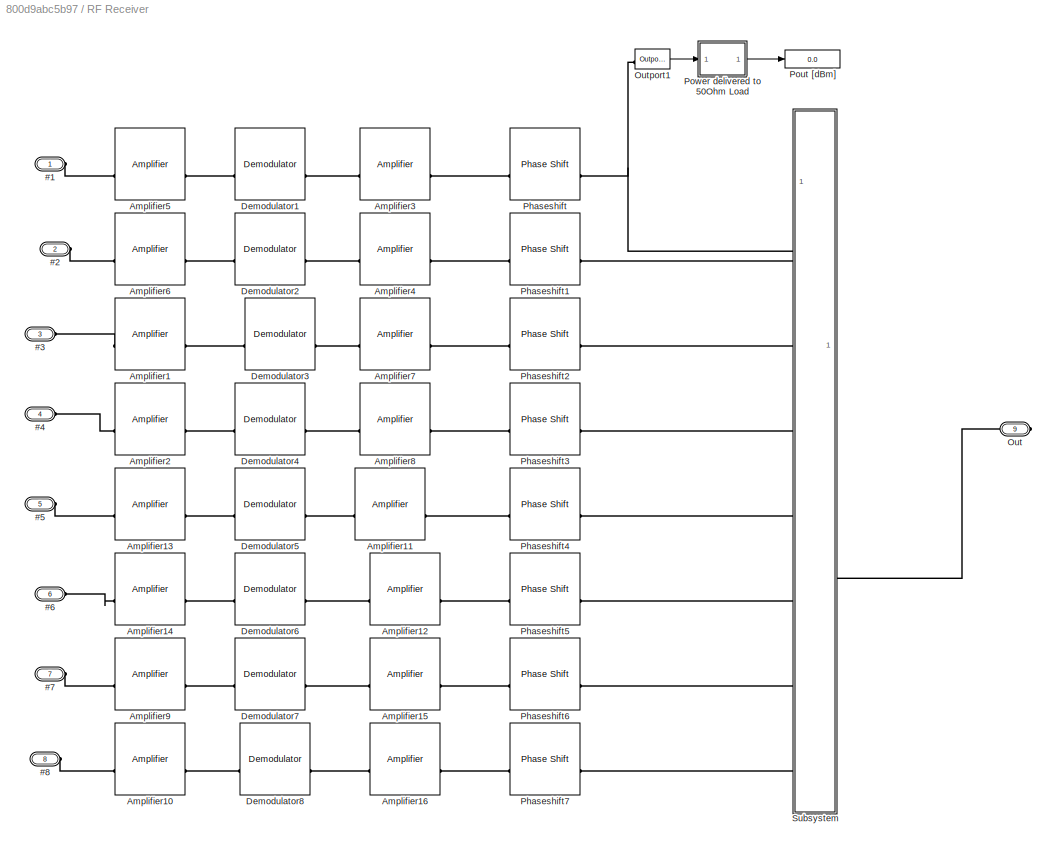
BLOCK [SubSystem] RF Receiver
  Commented = on
BLOCK [PMIOPort] RF Receiver/#1
  NameLocation = top
  Side = Left
BLOCK [PMIOPort] RF Receiver/#2
  NameLocation = top
  Port = 2
  Side = Left
BLOCK [PMIOPort] RF Receiver/#3
  NameLocation = top
  Port = 3
  Side = Left
BLOCK [PMIOPort] RF Receiver/#4
  NameLocation = top
  Port = 4
  Side = Left
BLOCK [PMIOPort] RF Receiver/#5
  NameLocation = top
  Port = 5
  Side = Left
BLOCK [PMIOPort] RF Receiver/#6
  NameLocation = top
  Port = 6
  Side = Left
BLOCK [PMIOPort] RF Receiver/#7
  NameLocation = top
  Port = 7
  Side = Left
BLOCK [PMIOPort] RF Receiver/#8
  NameLocation = top
  Port = 8
  Side = Left
BLOCK [Reference] RF Receiver/Amplifier1  REF=simrfV2elements/Amplifier
  SourceBlock = simrfV2elements/Amplifier
  SourceType = Amplifier
  UserDataPersistent = on
BLOCK [Reference] RF Receiver/Amplifier10  REF=simrfV2elements/Amplifier
  SourceBlock = simrfV2elements/Amplifier
  SourceType = Amplifier
  UserDataPersistent = on
BLOCK [Reference] RF Receiver/Amplifier11  REF=simrfV2elements/Amplifier
  SourceBlock = simrfV2elements/Amplifier
  SourceType = Amplifier
BLOCK [Reference] RF Receiver/Amplifier12  REF=simrfV2elements/Amplifier
  SourceBlock = simrfV2elements/Amplifier
  SourceType = Amplifier
BLOCK [Reference] RF Receiver/Amplifier13  REF=simrfV2elements/Amplifier
  SourceBlock = simrfV2elements/Amplifier
  SourceType = Amplifier
  UserDataPersistent = on
BLOCK [Reference] RF Receiver/Amplifier14  REF=simrfV2elements/Amplifier
  SourceBlock = simrfV2elements/Amplifier
  SourceType = Amplifier
  UserDataPersistent = on
BLOCK [Reference] RF Receiver/Amplifier15  REF=simrfV2elements/Amplifier
  SourceBlock = simrfV2elements/Amplifier
  SourceType = Amplifier
BLOCK [Reference] RF Receiver/Amplifier16  REF=simrfV2elements/Amplifier
  SourceBlock = simrfV2elements/Amplifier
  SourceType = Amplifier
BLOCK [Reference] RF Receiver/Amplifier2  REF=simrfV2elements/Amplifier
  SourceBlock = simrfV2elements/Amplifier
  SourceType = Amplifier
  UserDataPersistent = on
BLOCK [Reference] RF Receiver/Amplifier3  REF=simrfV2elements/Amplifier
  SourceBlock = simrfV2elements/Amplifier
  SourceType = Amplifier
BLOCK [Reference] RF Receiver/Amplifier4  REF=simrfV2elements/Amplifier
  SourceBlock = simrfV2elements/Amplifier
  SourceType = Amplifier
BLOCK [Reference] RF Receiver/Amplifier5  REF=simrfV2elements/Amplifier
  SourceBlock = simrfV2elements/Amplifier
  SourceType = Amplifier
  UserDataPersistent = on
BLOCK [Reference] RF Receiver/Amplifier6  REF=simrfV2elements/Amplifier
  SourceBlock = simrfV2elements/Amplifier
  SourceType = Amplifier
  UserDataPersistent = on
BLOCK [Reference] RF Receiver/Amplifier7  REF=simrfV2elements/Amplifier
  SourceBlock = simrfV2elements/Amplifier
  SourceType = Amplifier
BLOCK [Reference] RF Receiver/Amplifier8  REF=simrfV2elements/Amplifier
  SourceBlock = simrfV2elements/Amplifier
  SourceType = Amplifier
BLOCK [Reference] RF Receiver/Amplifier9  REF=simrfV2elements/Amplifier
  SourceBlock = simrfV2elements/Amplifier
  SourceType = Amplifier
  UserDataPersistent = on
BLOCK [Reference] RF Receiver/Demodulator1  REF=simrfV2systems/Demodulator
  SourceBlock = simrfV2systems/Demodulator
  SourceType = Demodulator
BLOCK [Reference] RF Receiver/Demodulator2  REF=simrfV2systems/Demodulator
  SourceBlock = simrfV2systems/Demodulator
  SourceType = Demodulator
BLOCK [Reference] RF Receiver/Demodulator3  REF=simrfV2systems/Demodulator
  SourceBlock = simrfV2systems/Demodulator
  SourceType = Demodulator
BLOCK [Reference] RF Receiver/Demodulator4  REF=simrfV2systems/Demodulator
  SourceBlock = simrfV2systems/Demodulator
  SourceType = Demodulator
BLOCK [Reference] RF Receiver/Demodulator5  REF=simrfV2systems/Demodulator
  SourceBlock = simrfV2systems/Demodulator
  SourceType = Demodulator
BLOCK [Reference] RF Receiver/Demodulator6  REF=simrfV2systems/Demodulator
  SourceBlock = simrfV2systems/Demodulator
  SourceType = Demodulator
BLOCK [Reference] RF Receiver/Demodulator7  REF=simrfV2systems/Demodulator
  SourceBlock = simrfV2systems/Demodulator
  SourceType = Demodulator
BLOCK [Reference] RF Receiver/Demodulator8  REF=simrfV2systems/Demodulator
  SourceBlock = simrfV2systems/Demodulator
  SourceType = Demodulator
BLOCK [PMIOPort] RF Receiver/Out
  NameLocation = top
  Port = 9
  Side = Right
BLOCK [Reference] RF Receiver/Outport1  REF=simrfV2util1/Outport
  SourceBlock = simrfV2util1/Outport
  SourceType = Outport
BLOCK [Reference] RF Receiver/Phaseshift  REF=simrfV2elements/Phase Shift
  SourceBlock = simrfV2elements/Phase Shift
  SourceType = Phase Shift
BLOCK [Reference] RF Receiver/Phaseshift1  REF=simrfV2elements/Phase Shift
  SourceBlock = simrfV2elements/Phase Shift
  SourceType = Phase Shift
BLOCK [Reference] RF Receiver/Phaseshift2  REF=simrfV2elements/Phase Shift
  SourceBlock = simrfV2elements/Phase Shift
  SourceType = Phase Shift
BLOCK [Reference] RF Receiver/Phaseshift3  REF=simrfV2elements/Phase Shift
  SourceBlock = simrfV2elements/Phase Shift
  SourceType = Phase Shift
BLOCK [Reference] RF Receiver/Phaseshift4  REF=simrfV2elements/Phase Shift
  SourceBlock = simrfV2elements/Phase Shift
  SourceType = Phase Shift
BLOCK [Reference] RF Receiver/Phaseshift5  REF=simrfV2elements/Phase Shift
  SourceBlock = simrfV2elements/Phase Shift
  SourceType = Phase Shift
BLOCK [Reference] RF Receiver/Phaseshift6  REF=simrfV2elements/Phase Shift
  SourceBlock = simrfV2elements/Phase Shift
  SourceType = Phase Shift
BLOCK [Reference] RF Receiver/Phaseshift7  REF=simrfV2elements/Phase Shift
  SourceBlock = simrfV2elements/Phase Shift
  SourceType = Phase Shift
BLOCK [Display] RF Receiver/Pout [dBm]
  Decimation = 1
BLOCK [SubSystem] RF Receiver/Power delivered to 50Ohm Load
  NameLocation = top
  ShowPortLabels = none
BLOCK [Buffer] RF Receiver/Power delivered to 50Ohm Load/CountNCycles
  N = 1
BLOCK [FrameConversion] RF Receiver/Power delivered to 50Ohm Load/Frame Conversion
  OutFrame = Sample-based
BLOCK [Gain] RF Receiver/Power delivered to 50Ohm Load/Gain2
  Gain = 1/1
BLOCK [Inport] RF Receiver/Power delivered to 50Ohm Load/In
BLOCK [Outport] RF Receiver/Power delivered to 50Ohm Load/Out
  VectorParamsAs1DForOutWhenUnconnected = off
BLOCK [Sqrt] RF Receiver/Power delivered to 50Ohm Load/Root
BLOCK [Math] RF Receiver/Power delivered to 50Ohm Load/Squared
  Operator = magnitude^2
  SignedPower = on
BLOCK [Sum] RF Receiver/Power delivered to 50Ohm Load/Sum
  CollapseMode = Specified dimension
  IconShape = rectangular
  Inputs = +
BLOCK [Reference] RF Receiver/Power delivered to 50Ohm Load/dB Conversion  REF=dspmathops/dB Conversion
  SourceBlock = dspmathops/dB Conversion
  SourceType = dB Conversion
BLOCK [SubSystem] RF Receiver/Subsystem
BLOCK [PMIOPort] RF Receiver/Subsystem/1
  Side = Left
BLOCK [PMIOPort] RF Receiver/Subsystem/2
  Port = 2
  Side = Left
BLOCK [PMIOPort] RF Receiver/Subsystem/3
  Port = 3
  Side = Left
BLOCK [PMIOPort] RF Receiver/Subsystem/4
  Port = 4
  Side = Left
BLOCK [PMIOPort] RF Receiver/Subsystem/5
  Port = 5
  Side = Left
BLOCK [PMIOPort] RF Receiver/Subsystem/6
  Port = 6
  Side = Left
BLOCK [PMIOPort] RF Receiver/Subsystem/7
  Port = 7
  Side = Left
BLOCK [PMIOPort] RF Receiver/Subsystem/8
  Port = 8
  Side = Left
BLOCK [Reference] RF Receiver/Subsystem/Divider  REF=simrfV2junction1/Divider
  NameLocation = top
  SourceBlock = simrfV2junction1/Divider
  SourceType = Ideal Dividers
  UserDataPersistent = on
BLOCK [Reference] RF Receiver/Subsystem/Divider1  REF=simrfV2junction1/Divider
  NameLocation = top
  SourceBlock = simrfV2junction1/Divider
  SourceType = Ideal Dividers
  UserDataPersistent = on
BLOCK [Reference] RF Receiver/Subsystem/Divider2  REF=simrfV2junction1/Divider
  NameLocation = top
  SourceBlock = simrfV2junction1/Divider
  SourceType = Ideal Dividers
  UserDataPersistent = on
BLOCK [Reference] RF Receiver/Subsystem/Divider3  REF=simrfV2junction1/Divider
  NameLocation = top
  SourceBlock = simrfV2junction1/Divider
  SourceType = Ideal Dividers
  UserDataPersistent = on
BLOCK [Reference] RF Receiver/Subsystem/Divider4  REF=simrfV2junction1/Divider
  NameLocation = top
  SourceBlock = simrfV2junction1/Divider
  SourceType = Ideal Dividers
  UserDataPersistent = on
BLOCK [Reference] RF Receiver/Subsystem/Divider5  REF=simrfV2junction1/Divider
  NameLocation = top
  SourceBlock = simrfV2junction1/Divider
  SourceType = Ideal Dividers
  UserDataPersistent = on
BLOCK [Reference] RF Receiver/Subsystem/Divider6  REF=simrfV2junction1/Divider
  NameLocation = top
  SourceBlock = simrfV2junction1/Divider
  SourceType = Ideal Dividers
  UserDataPersistent = on
BLOCK [PMIOPort] RF Receiver/Subsystem/Out
  Port = 9
  Side = Right
BLOCK [Reference] RF Receiver/Subsystem/Phaseshift8  REF=simrfV2elements/Phase Shift
  SourceBlock = simrfV2elements/Phase Shift
  SourceType = Phase Shift
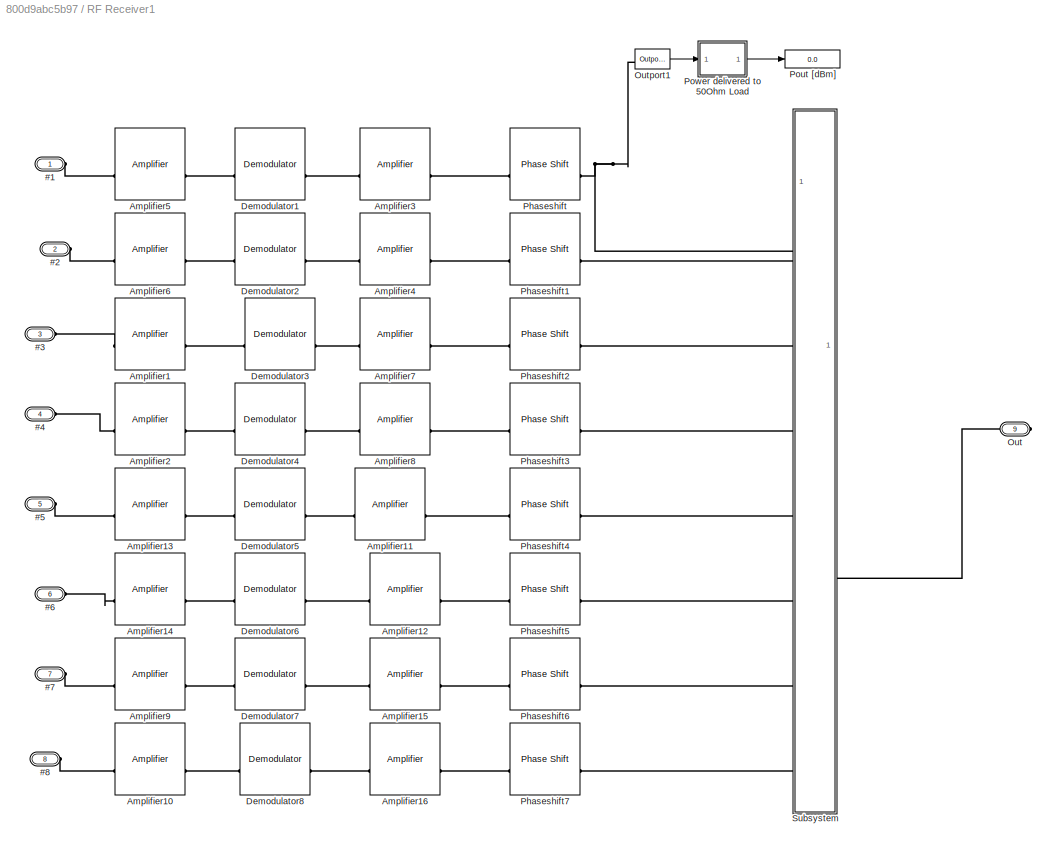
BLOCK [SubSystem] RF Receiver1
BLOCK [PMIOPort] RF Receiver1/#1
  NameLocation = top
  Side = Left
BLOCK [PMIOPort] RF Receiver1/#2
  NameLocation = top
  Port = 2
  Side = Left
BLOCK [PMIOPort] RF Receiver1/#3
  NameLocation = top
  Port = 3
  Side = Left
BLOCK [PMIOPort] RF Receiver1/#4
  NameLocation = top
  Port = 4
  Side = Left
BLOCK [PMIOPort] RF Receiver1/#5
  NameLocation = top
  Port = 5
  Side = Left
BLOCK [PMIOPort] RF Receiver1/#6
  NameLocation = top
  Port = 6
  Side = Left
BLOCK [PMIOPort] RF Receiver1/#7
  NameLocation = top
  Port = 7
  Side = Left
BLOCK [PMIOPort] RF Receiver1/#8
  NameLocation = top
  Port = 8
  Side = Left
BLOCK [Reference] RF Receiver1/Amplifier1  REF=simrfV2elements/Amplifier
  SourceBlock = simrfV2elements/Amplifier
  SourceType = Amplifier
  UserDataPersistent = on
BLOCK [Reference] RF Receiver1/Amplifier10  REF=simrfV2elements/Amplifier
  SourceBlock = simrfV2elements/Amplifier
  SourceType = Amplifier
  UserDataPersistent = on
BLOCK [Reference] RF Receiver1/Amplifier11  REF=simrfV2elements/Amplifier
  SourceBlock = simrfV2elements/Amplifier
  SourceType = Amplifier
BLOCK [Reference] RF Receiver1/Amplifier12  REF=simrfV2elements/Amplifier
  SourceBlock = simrfV2elements/Amplifier
  SourceType = Amplifier
BLOCK [Reference] RF Receiver1/Amplifier13  REF=simrfV2elements/Amplifier
  SourceBlock = simrfV2elements/Amplifier
  SourceType = Amplifier
  UserDataPersistent = on
BLOCK [Reference] RF Receiver1/Amplifier14  REF=simrfV2elements/Amplifier
  SourceBlock = simrfV2elements/Amplifier
  SourceType = Amplifier
  UserDataPersistent = on
BLOCK [Reference] RF Receiver1/Amplifier15  REF=simrfV2elements/Amplifier
  SourceBlock = simrfV2elements/Amplifier
  SourceType = Amplifier
BLOCK [Reference] RF Receiver1/Amplifier16  REF=simrfV2elements/Amplifier
  SourceBlock = simrfV2elements/Amplifier
  SourceType = Amplifier
BLOCK [Reference] RF Receiver1/Amplifier2  REF=simrfV2elements/Amplifier
  SourceBlock = simrfV2elements/Amplifier
  SourceType = Amplifier
  UserDataPersistent = on
BLOCK [Reference] RF Receiver1/Amplifier3  REF=simrfV2elements/Amplifier
  SourceBlock = simrfV2elements/Amplifier
  SourceType = Amplifier
BLOCK [Reference] RF Receiver1/Amplifier4  REF=simrfV2elements/Amplifier
  SourceBlock = simrfV2elements/Amplifier
  SourceType = Amplifier
BLOCK [Reference] RF Receiver1/Amplifier5  REF=simrfV2elements/Amplifier
  SourceBlock = simrfV2elements/Amplifier
  SourceType = Amplifier
  UserDataPersistent = on
BLOCK [Reference] RF Receiver1/Amplifier6  REF=simrfV2elements/Amplifier
  SourceBlock = simrfV2elements/Amplifier
  SourceType = Amplifier
  UserDataPersistent = on
BLOCK [Reference] RF Receiver1/Amplifier7  REF=simrfV2elements/Amplifier
  SourceBlock = simrfV2elements/Amplifier
  SourceType = Amplifier
BLOCK [Reference] RF Receiver1/Amplifier8  REF=simrfV2elements/Amplifier
  SourceBlock = simrfV2elements/Amplifier
  SourceType = Amplifier
BLOCK [Reference] RF Receiver1/Amplifier9  REF=simrfV2elements/Amplifier
  SourceBlock = simrfV2elements/Amplifier
  SourceType = Amplifier
  UserDataPersistent = on
BLOCK [Reference] RF Receiver1/Demodulator1  REF=simrfV2systems/Demodulator
  SourceBlock = simrfV2systems/Demodulator
  SourceType = Demodulator
BLOCK [Reference] RF Receiver1/Demodulator2  REF=simrfV2systems/Demodulator
  SourceBlock = simrfV2systems/Demodulator
  SourceType = Demodulator
BLOCK [Reference] RF Receiver1/Demodulator3  REF=simrfV2systems/Demodulator
  SourceBlock = simrfV2systems/Demodulator
  SourceType = Demodulator
BLOCK [Reference] RF Receiver1/Demodulator4  REF=simrfV2systems/Demodulator
  SourceBlock = simrfV2systems/Demodulator
  SourceType = Demodulator
BLOCK [Reference] RF Receiver1/Demodulator5  REF=simrfV2systems/Demodulator
  SourceBlock = simrfV2systems/Demodulator
  SourceType = Demodulator
BLOCK [Reference] RF Receiver1/Demodulator6  REF=simrfV2systems/Demodulator
  SourceBlock = simrfV2systems/Demodulator
  SourceType = Demodulator
BLOCK [Reference] RF Receiver1/Demodulator7  REF=simrfV2systems/Demodulator
  SourceBlock = simrfV2systems/Demodulator
  SourceType = Demodulator
BLOCK [Reference] RF Receiver1/Demodulator8  REF=simrfV2systems/Demodulator
  SourceBlock = simrfV2systems/Demodulator
  SourceType = Demodulator
BLOCK [PMIOPort] RF Receiver1/Out
  NameLocation = top
  Port = 9
  Side = Right
BLOCK [Reference] RF Receiver1/Outport1  REF=simrfV2util1/Outport
  SourceBlock = simrfV2util1/Outport
  SourceType = Outport
BLOCK [Reference] RF Receiver1/Phaseshift  REF=simrfV2elements/Phase Shift
  SourceBlock = simrfV2elements/Phase Shift
  SourceType = Phase Shift
BLOCK [Reference] RF Receiver1/Phaseshift1  REF=simrfV2elements/Phase Shift
  SourceBlock = simrfV2elements/Phase Shift
  SourceType = Phase Shift
BLOCK [Reference] RF Receiver1/Phaseshift2  REF=simrfV2elements/Phase Shift
  SourceBlock = simrfV2elements/Phase Shift
  SourceType = Phase Shift
BLOCK [Reference] RF Receiver1/Phaseshift3  REF=simrfV2elements/Phase Shift
  SourceBlock = simrfV2elements/Phase Shift
  SourceType = Phase Shift
BLOCK [Reference] RF Receiver1/Phaseshift4  REF=simrfV2elements/Phase Shift
  SourceBlock = simrfV2elements/Phase Shift
  SourceType = Phase Shift
BLOCK [Reference] RF Receiver1/Phaseshift5  REF=simrfV2elements/Phase Shift
  SourceBlock = simrfV2elements/Phase Shift
  SourceType = Phase Shift
BLOCK [Reference] RF Receiver1/Phaseshift6  REF=simrfV2elements/Phase Shift
  SourceBlock = simrfV2elements/Phase Shift
  SourceType = Phase Shift
BLOCK [Reference] RF Receiver1/Phaseshift7  REF=simrfV2elements/Phase Shift
  SourceBlock = simrfV2elements/Phase Shift
  SourceType = Phase Shift
BLOCK [Display] RF Receiver1/Pout [dBm]
  Decimation = 1
BLOCK [SubSystem] RF Receiver1/Power delivered to 50Ohm Load
  NameLocation = top
  ShowPortLabels = none
BLOCK [Buffer] RF Receiver1/Power delivered to 50Ohm Load/CountNCycles
  N = 1
BLOCK [FrameConversion] RF Receiver1/Power delivered to 50Ohm Load/Frame Conversion
  OutFrame = Sample-based
BLOCK [Gain] RF Receiver1/Power delivered to 50Ohm Load/Gain2
  Gain = 1/1
BLOCK [Inport] RF Receiver1/Power delivered to 50Ohm Load/In
BLOCK [Outport] RF Receiver1/Power delivered to 50Ohm Load/Out
  VectorParamsAs1DForOutWhenUnconnected = off
BLOCK [Sqrt] RF Receiver1/Power delivered to 50Ohm Load/Root
BLOCK [Math] RF Receiver1/Power delivered to 50Ohm Load/Squared
  Operator = magnitude^2
  SignedPower = on
BLOCK [Sum] RF Receiver1/Power delivered to 50Ohm Load/Sum
  CollapseMode = Specified dimension
  IconShape = rectangular
  Inputs = +
BLOCK [Reference] RF Receiver1/Power delivered to 50Ohm Load/dB Conversion  REF=dspmathops/dB Conversion
  SourceBlock = dspmathops/dB Conversion
  SourceType = dB Conversion
BLOCK [SubSystem] RF Receiver1/Subsystem
BLOCK [PMIOPort] RF Receiver1/Subsystem/1
  Side = Left
BLOCK [PMIOPort] RF Receiver1/Subsystem/2
  Port = 2
  Side = Left
BLOCK [PMIOPort] RF Receiver1/Subsystem/3
  Port = 3
  Side = Left
BLOCK [PMIOPort] RF Receiver1/Subsystem/4
  Port = 4
  Side = Left
BLOCK [PMIOPort] RF Receiver1/Subsystem/5
  Port = 5
  Side = Left
BLOCK [PMIOPort] RF Receiver1/Subsystem/6
  Port = 6
  Side = Left
BLOCK [PMIOPort] RF Receiver1/Subsystem/7
  Port = 7
  Side = Left
BLOCK [PMIOPort] RF Receiver1/Subsystem/8
  Port = 8
  Side = Left
BLOCK [Reference] RF Receiver1/Subsystem/Divider  REF=simrfV2junction1/Divider
  NameLocation = top
  SourceBlock = simrfV2junction1/Divider
  SourceType = Ideal Dividers
  UserDataPersistent = on
BLOCK [Reference] RF Receiver1/Subsystem/Divider1  REF=simrfV2junction1/Divider
  NameLocation = top
  SourceBlock = simrfV2junction1/Divider
  SourceType = Ideal Dividers
  UserDataPersistent = on
BLOCK [Reference] RF Receiver1/Subsystem/Divider2  REF=simrfV2junction1/Divider
  NameLocation = top
  SourceBlock = simrfV2junction1/Divider
  SourceType = Ideal Dividers
  UserDataPersistent = on
BLOCK [Reference] RF Receiver1/Subsystem/Divider3  REF=simrfV2junction1/Divider
  NameLocation = top
  SourceBlock = simrfV2junction1/Divider
  SourceType = Ideal Dividers
  UserDataPersistent = on
BLOCK [Reference] RF Receiver1/Subsystem/Divider4  REF=simrfV2junction1/Divider
  NameLocation = top
  SourceBlock = simrfV2junction1/Divider
  SourceType = Ideal Dividers
  UserDataPersistent = on
BLOCK [Reference] RF Receiver1/Subsystem/Divider5  REF=simrfV2junction1/Divider
  NameLocation = top
  SourceBlock = simrfV2junction1/Divider
  SourceType = Ideal Dividers
  UserDataPersistent = on
BLOCK [Reference] RF Receiver1/Subsystem/Divider6  REF=simrfV2junction1/Divider
  NameLocation = top
  SourceBlock = simrfV2junction1/Divider
  SourceType = Ideal Dividers
  UserDataPersistent = on
BLOCK [PMIOPort] RF Receiver1/Subsystem/Out
  Port = 9
  Side = Right
BLOCK [Reference] RF Receiver1/Subsystem/Phaseshift8  REF=simrfV2elements/Phase Shift
  SourceBlock = simrfV2elements/Phase Shift
  SourceType = Phase Shift
BLOCK [SubSystem] RF Transmitter
  Commented = on
BLOCK [PMIOPort] RF Transmitter/#1
  NameLocation = top
  Side = Right
BLOCK [PMIOPort] RF Transmitter/#2
  NameLocation = top
  Port = 2
  Side = Right
BLOCK [PMIOPort] RF Transmitter/#3
  NameLocation = top
  Port = 3
  Side = Right
BLOCK [PMIOPort] RF Transmitter/#4
  NameLocation = top
  Port = 4
  Side = Right
BLOCK [PMIOPort] RF Transmitter/#5
  NameLocation = top
  Port = 5
  Side = Right
BLOCK [PMIOPort] RF Transmitter/#6
  NameLocation = top
  Port = 6
  Side = Right
BLOCK [PMIOPort] RF Transmitter/#7
  NameLocation = top
  Port = 7
  Side = Right
BLOCK [PMIOPort] RF Transmitter/#8
  NameLocation = top
  Port = 8
  Side = Right
BLOCK [Reference] RF Transmitter/Amplifier10  REF=simrfV2elements/Amplifier
  SourceBlock = simrfV2elements/Amplifier
  SourceType = Amplifier
  UserDataPersistent = on
BLOCK [Reference] RF Transmitter/Amplifier11  REF=simrfV2elements/Amplifier
  SourceBlock = simrfV2elements/Amplifier
  SourceType = Amplifier
  UserDataPersistent = on
BLOCK [Reference] RF Transmitter/Amplifier12  REF=simrfV2elements/Amplifier
  SourceBlock = simrfV2elements/Amplifier
  SourceType = Amplifier
  UserDataPersistent = on
BLOCK [Reference] RF Transmitter/Amplifier17  REF=simrfV2elements/Amplifier
  SourceBlock = simrfV2elements/Amplifier
  SourceType = Amplifier
  UserDataPersistent = on
BLOCK [Reference] RF Transmitter/Amplifier18  REF=simrfV2elements/Amplifier
  SourceBlock = simrfV2elements/Amplifier
  SourceType = Amplifier
  UserDataPersistent = on
BLOCK [Reference] RF Transmitter/Amplifier25  REF=simrfV2elements/Amplifier
  SourceBlock = simrfV2elements/Amplifier
  SourceType = Amplifier
  UserDataPersistent = on
BLOCK [Reference] RF Transmitter/Amplifier26  REF=simrfV2elements/Amplifier
  SourceBlock = simrfV2elements/Amplifier
  SourceType = Amplifier
  UserDataPersistent = on
BLOCK [Reference] RF Transmitter/Amplifier9  REF=simrfV2elements/Amplifier
  SourceBlock = simrfV2elements/Amplifier
  SourceType = Amplifier
  UserDataPersistent = on
BLOCK [Reference] RF Transmitter/Modulator10  REF=simrfV2systems/Modulator
  SourceBlock = simrfV2systems/Modulator
  SourceType = Modulator
BLOCK [Reference] RF Transmitter/Modulator11  REF=simrfV2systems/Modulator
  SourceBlock = simrfV2systems/Modulator
  SourceType = Modulator
BLOCK [Reference] RF Transmitter/Modulator12  REF=simrfV2systems/Modulator
  SourceBlock = simrfV2systems/Modulator
  SourceType = Modulator
BLOCK [Reference] RF Transmitter/Modulator17  REF=simrfV2systems/Modulator
  SourceBlock = simrfV2systems/Modulator
  SourceType = Modulator
BLOCK [Reference] RF Transmitter/Modulator18  REF=simrfV2systems/Modulator
  SourceBlock = simrfV2systems/Modulator
  SourceType = Modulator
BLOCK [Reference] RF Transmitter/Modulator25  REF=simrfV2systems/Modulator
  SourceBlock = simrfV2systems/Modulator
  SourceType = Modulator
BLOCK [Reference] RF Transmitter/Modulator26  REF=simrfV2systems/Modulator
  SourceBlock = simrfV2systems/Modulator
  SourceType = Modulator
BLOCK [Reference] RF Transmitter/Modulator9  REF=simrfV2systems/Modulator
  SourceBlock = simrfV2systems/Modulator
  SourceType = Modulator
BLOCK [PMIOPort] RF Transmitter/Out1
  NameLocation = top
  Port = 9
  Side = Left
BLOCK [Reference] RF Transmitter/Outport2  REF=simrfV2util1/Outport
  SourceBlock = simrfV2util1/Outport
  SourceType = Outport
BLOCK [Reference] RF Transmitter/Phaseshift1  REF=simrfV2elements/Phase Shift
  SourceBlock = simrfV2elements/Phase Shift
  SourceType = Phase Shift
BLOCK [Reference] RF Transmitter/Phaseshift16  REF=simrfV2elements/Phase Shift
  SourceBlock = simrfV2elements/Phase Shift
  SourceType = Phase Shift
BLOCK [Reference] RF Transmitter/Phaseshift2  REF=simrfV2elements/Phase Shift
  SourceBlock = simrfV2elements/Phase Shift
  SourceType = Phase Shift
BLOCK [Reference] RF Transmitter/Phaseshift3  REF=simrfV2elements/Phase Shift
  SourceBlock = simrfV2elements/Phase Shift
  SourceType = Phase Shift
BLOCK [Reference] RF Transmitter/Phaseshift4  REF=simrfV2elements/Phase Shift
  SourceBlock = simrfV2elements/Phase Shift
  SourceType = Phase Shift
BLOCK [Reference] RF Transmitter/Phaseshift5  REF=simrfV2elements/Phase Shift
  SourceBlock = simrfV2elements/Phase Shift
  SourceType = Phase Shift
BLOCK [Reference] RF Transmitter/Phaseshift6  REF=simrfV2elements/Phase Shift
  SourceBlock = simrfV2elements/Phase Shift
  SourceType = Phase Shift
BLOCK [Reference] RF Transmitter/Phaseshift8  REF=simrfV2elements/Phase Shift
  SourceBlock = simrfV2elements/Phase Shift
  SourceType = Phase Shift
BLOCK [Display] RF Transmitter/Pout [dBm]1
  Decimation = 1
BLOCK [SubSystem] RF Transmitter/Power delivered to 50Ohm Load1
  NameLocation = top
  ShowPortLabels = none
BLOCK [Buffer] RF Transmitter/Power delivered to 50Ohm Load1/CountNCycles
  N = 1
BLOCK [FrameConversion] RF Transmitter/Power delivered to 50Ohm Load1/Frame Conversion
  OutFrame = Sample-based
BLOCK [Gain] RF Transmitter/Power delivered to 50Ohm Load1/Gain2
  Gain = 1/1
BLOCK [Inport] RF Transmitter/Power delivered to 50Ohm Load1/In
BLOCK [Outport] RF Transmitter/Power delivered to 50Ohm Load1/Out
  VectorParamsAs1DForOutWhenUnconnected = off
BLOCK [Sqrt] RF Transmitter/Power delivered to 50Ohm Load1/Root
BLOCK [Math] RF Transmitter/Power delivered to 50Ohm Load1/Squared
  Operator = magnitude^2
  SignedPower = on
BLOCK [Sum] RF Transmitter/Power delivered to 50Ohm Load1/Sum
  CollapseMode = Specified dimension
  IconShape = rectangular
  Inputs = +
BLOCK [Reference] RF Transmitter/Power delivered to 50Ohm Load1/dB Conversion  REF=dspmathops/dB Conversion
  SourceBlock = dspmathops/dB Conversion
  SourceType = dB Conversion
BLOCK [SubSystem] RF Transmitter/Subsystem2
  NameLocation = top
BLOCK [PMIOPort] RF Transmitter/Subsystem2/1
  Port = 2
  Side = Right
BLOCK [PMIOPort] RF Transmitter/Subsystem2/2
  Port = 3
  Side = Right
BLOCK [PMIOPort] RF Transmitter/Subsystem2/3
  Port = 4
  Side = Right
BLOCK [PMIOPort] RF Transmitter/Subsystem2/4
  Port = 5
  Side = Right
BLOCK [PMIOPort] RF Transmitter/Subsystem2/5
  Port = 6
  Side = Right
BLOCK [PMIOPort] RF Transmitter/Subsystem2/6
  Port = 7
  Side = Right
BLOCK [PMIOPort] RF Transmitter/Subsystem2/7
  Port = 8
  Side = Right
BLOCK [PMIOPort] RF Transmitter/Subsystem2/8
  Port = 9
  Side = Right
BLOCK [Reference] RF Transmitter/Subsystem2/Divider  REF=simrfV2junction1/Divider
  NameLocation = top
  SourceBlock = simrfV2junction1/Divider
  SourceType = Ideal Dividers
  UserDataPersistent = on
BLOCK [Reference] RF Transmitter/Subsystem2/Divider1  REF=simrfV2junction1/Divider
  NameLocation = top
  SourceBlock = simrfV2junction1/Divider
  SourceType = Ideal Dividers
  UserDataPersistent = on
BLOCK [Reference] RF Transmitter/Subsystem2/Divider2  REF=simrfV2junction1/Divider
  NameLocation = top
  SourceBlock = simrfV2junction1/Divider
  SourceType = Ideal Dividers
  UserDataPersistent = on
BLOCK [Reference] RF Transmitter/Subsystem2/Divider3  REF=simrfV2junction1/Divider
  NameLocation = top
  SourceBlock = simrfV2junction1/Divider
  SourceType = Ideal Dividers
  UserDataPersistent = on
BLOCK [Reference] RF Transmitter/Subsystem2/Divider4  REF=simrfV2junction1/Divider
  NameLocation = top
  SourceBlock = simrfV2junction1/Divider
  SourceType = Ideal Dividers
  UserDataPersistent = on
BLOCK [Reference] RF Transmitter/Subsystem2/Divider5  REF=simrfV2junction1/Divider
  NameLocation = top
  SourceBlock = simrfV2junction1/Divider
  SourceType = Ideal Dividers
  UserDataPersistent = on
BLOCK [Reference] RF Transmitter/Subsystem2/Divider6  REF=simrfV2junction1/Divider
  NameLocation = top
  SourceBlock = simrfV2junction1/Divider
  SourceType = Ideal Dividers
  UserDataPersistent = on
BLOCK [PMIOPort] RF Transmitter/Subsystem2/Out
  Side = Left
BLOCK [Reference] RF Transmitter/Subsystem2/Phaseshift8  REF=simrfV2elements/Phase Shift
  SourceBlock = simrfV2elements/Phase Shift
  SourceType = Phase Shift
BLOCK [SubSystem] RF Transmitter1
BLOCK [PMIOPort] RF Transmitter1/#1
  NameLocation = top
  Side = Right
BLOCK [PMIOPort] RF Transmitter1/#2
  NameLocation = top
  Port = 2
  Side = Right
BLOCK [PMIOPort] RF Transmitter1/#3
  NameLocation = top
  Port = 3
  Side = Right
BLOCK [PMIOPort] RF Transmitter1/#4
  NameLocation = top
  Port = 4
  Side = Right
BLOCK [PMIOPort] RF Transmitter1/#5
  NameLocation = top
  Port = 5
  Side = Right
BLOCK [PMIOPort] RF Transmitter1/#6
  NameLocation = top
  Port = 6
  Side = Right
BLOCK [PMIOPort] RF Transmitter1/#7
  NameLocation = top
  Port = 7
  Side = Right
BLOCK [PMIOPort] RF Transmitter1/#8
  NameLocation = top
  Port = 8
  Side = Right
BLOCK [Reference] RF Transmitter1/Amplifier10  REF=simrfV2elements/Amplifier
  SourceBlock = simrfV2elements/Amplifier
  SourceType = Amplifier
  UserDataPersistent = on
BLOCK [Reference] RF Transmitter1/Amplifier11  REF=simrfV2elements/Amplifier
  SourceBlock = simrfV2elements/Amplifier
  SourceType = Amplifier
  UserDataPersistent = on
BLOCK [Reference] RF Transmitter1/Amplifier12  REF=simrfV2elements/Amplifier
  SourceBlock = simrfV2elements/Amplifier
  SourceType = Amplifier
  UserDataPersistent = on
BLOCK [Reference] RF Transmitter1/Amplifier17  REF=simrfV2elements/Amplifier
  SourceBlock = simrfV2elements/Amplifier
  SourceType = Amplifier
  UserDataPersistent = on
BLOCK [Reference] RF Transmitter1/Amplifier18  REF=simrfV2elements/Amplifier
  SourceBlock = simrfV2elements/Amplifier
  SourceType = Amplifier
  UserDataPersistent = on
BLOCK [Reference] RF Transmitter1/Amplifier25  REF=simrfV2elements/Amplifier
  SourceBlock = simrfV2elements/Amplifier
  SourceType = Amplifier
  UserDataPersistent = on
BLOCK [Reference] RF Transmitter1/Amplifier26  REF=simrfV2elements/Amplifier
  SourceBlock = simrfV2elements/Amplifier
  SourceType = Amplifier
  UserDataPersistent = on
BLOCK [Reference] RF Transmitter1/Amplifier9  REF=simrfV2elements/Amplifier
  SourceBlock = simrfV2elements/Amplifier
  SourceType = Amplifier
  UserDataPersistent = on
BLOCK [Reference] RF Transmitter1/Modulator10  REF=simrfV2systems/Modulator
  SourceBlock = simrfV2systems/Modulator
  SourceType = Modulator
BLOCK [Reference] RF Transmitter1/Modulator11  REF=simrfV2systems/Modulator
  SourceBlock = simrfV2systems/Modulator
  SourceType = Modulator
BLOCK [Reference] RF Transmitter1/Modulator12  REF=simrfV2systems/Modulator
  SourceBlock = simrfV2systems/Modulator
  SourceType = Modulator
BLOCK [Reference] RF Transmitter1/Modulator17  REF=simrfV2systems/Modulator
  SourceBlock = simrfV2systems/Modulator
  SourceType = Modulator
BLOCK [Reference] RF Transmitter1/Modulator18  REF=simrfV2systems/Modulator
  SourceBlock = simrfV2systems/Modulator
  SourceType = Modulator
BLOCK [Reference] RF Transmitter1/Modulator25  REF=simrfV2systems/Modulator
  SourceBlock = simrfV2systems/Modulator
  SourceType = Modulator
BLOCK [Reference] RF Transmitter1/Modulator26  REF=simrfV2systems/Modulator
  SourceBlock = simrfV2systems/Modulator
  SourceType = Modulator
BLOCK [Reference] RF Transmitter1/Modulator9  REF=simrfV2systems/Modulator
  SourceBlock = simrfV2systems/Modulator
  SourceType = Modulator
BLOCK [PMIOPort] RF Transmitter1/Out1
  NameLocation = top
  Port = 9
  Side = Left
BLOCK [Reference] RF Transmitter1/Outport2  REF=simrfV2util1/Outport
  SourceBlock = simrfV2util1/Outport
  SourceType = Outport
BLOCK [Reference] RF Transmitter1/Phaseshift1  REF=simrfV2elements/Phase Shift
  SourceBlock = simrfV2elements/Phase Shift
  SourceType = Phase Shift
BLOCK [Reference] RF Transmitter1/Phaseshift16  REF=simrfV2elements/Phase Shift
  SourceBlock = simrfV2elements/Phase Shift
  SourceType = Phase Shift
BLOCK [Reference] RF Transmitter1/Phaseshift2  REF=simrfV2elements/Phase Shift
  SourceBlock = simrfV2elements/Phase Shift
  SourceType = Phase Shift
BLOCK [Reference] RF Transmitter1/Phaseshift3  REF=simrfV2elements/Phase Shift
  SourceBlock = simrfV2elements/Phase Shift
  SourceType = Phase Shift
BLOCK [Reference] RF Transmitter1/Phaseshift4  REF=simrfV2elements/Phase Shift
  SourceBlock = simrfV2elements/Phase Shift
  SourceType = Phase Shift
BLOCK [Reference] RF Transmitter1/Phaseshift5  REF=simrfV2elements/Phase Shift
  SourceBlock = simrfV2elements/Phase Shift
  SourceType = Phase Shift
BLOCK [Reference] RF Transmitter1/Phaseshift6  REF=simrfV2elements/Phase Shift
  SourceBlock = simrfV2elements/Phase Shift
  SourceType = Phase Shift
BLOCK [Reference] RF Transmitter1/Phaseshift8  REF=simrfV2elements/Phase Shift
  SourceBlock = simrfV2elements/Phase Shift
  SourceType = Phase Shift
BLOCK [Display] RF Transmitter1/Pout [dBm]1
  Decimation = 1
BLOCK [SubSystem] RF Transmitter1/Power delivered to 50Ohm Load1
  NameLocation = top
  ShowPortLabels = none
BLOCK [Buffer] RF Transmitter1/Power delivered to 50Ohm Load1/CountNCycles
  N = 1
BLOCK [FrameConversion] RF Transmitter1/Power delivered to 50Ohm Load1/Frame Conversion
  OutFrame = Sample-based
BLOCK [Gain] RF Transmitter1/Power delivered to 50Ohm Load1/Gain2
  Gain = 1/1
BLOCK [Inport] RF Transmitter1/Power delivered to 50Ohm Load1/In
BLOCK [Outport] RF Transmitter1/Power delivered to 50Ohm Load1/Out
  VectorParamsAs1DForOutWhenUnconnected = off
BLOCK [Sqrt] RF Transmitter1/Power delivered to 50Ohm Load1/Root
BLOCK [Math] RF Transmitter1/Power delivered to 50Ohm Load1/Squared
  Operator = magnitude^2
  SignedPower = on
BLOCK [Sum] RF Transmitter1/Power delivered to 50Ohm Load1/Sum
  CollapseMode = Specified dimension
  IconShape = rectangular
  Inputs = +
BLOCK [Reference] RF Transmitter1/Power delivered to 50Ohm Load1/dB Conversion  REF=dspmathops/dB Conversion
  SourceBlock = dspmathops/dB Conversion
  SourceType = dB Conversion
BLOCK [SubSystem] RF Transmitter1/Subsystem2
  NameLocation = top
BLOCK [PMIOPort] RF Transmitter1/Subsystem2/1
  Port = 2
  Side = Right
BLOCK [PMIOPort] RF Transmitter1/Subsystem2/2
  Port = 3
  Side = Right
BLOCK [PMIOPort] RF Transmitter1/Subsystem2/3
  Port = 4
  Side = Right
BLOCK [PMIOPort] RF Transmitter1/Subsystem2/4
  Port = 5
  Side = Right
BLOCK [PMIOPort] RF Transmitter1/Subsystem2/5
  Port = 6
  Side = Right
BLOCK [PMIOPort] RF Transmitter1/Subsystem2/6
  Port = 7
  Side = Right
BLOCK [PMIOPort] RF Transmitter1/Subsystem2/7
  Port = 8
  Side = Right
BLOCK [PMIOPort] RF Transmitter1/Subsystem2/8
  Port = 9
  Side = Right
BLOCK [Reference] RF Transmitter1/Subsystem2/Divider  REF=simrfV2junction1/Divider
  NameLocation = top
  SourceBlock = simrfV2junction1/Divider
  SourceType = Ideal Dividers
  UserDataPersistent = on
BLOCK [Reference] RF Transmitter1/Subsystem2/Divider1  REF=simrfV2junction1/Divider
  NameLocation = top
  SourceBlock = simrfV2junction1/Divider
  SourceType = Ideal Dividers
  UserDataPersistent = on
BLOCK [Reference] RF Transmitter1/Subsystem2/Divider2  REF=simrfV2junction1/Divider
  NameLocation = top
  SourceBlock = simrfV2junction1/Divider
  SourceType = Ideal Dividers
  UserDataPersistent = on
BLOCK [Reference] RF Transmitter1/Subsystem2/Divider3  REF=simrfV2junction1/Divider
  NameLocation = top
  SourceBlock = simrfV2junction1/Divider
  SourceType = Ideal Dividers
  UserDataPersistent = on
BLOCK [Reference] RF Transmitter1/Subsystem2/Divider4  REF=simrfV2junction1/Divider
  NameLocation = top
  SourceBlock = simrfV2junction1/Divider
  SourceType = Ideal Dividers
  UserDataPersistent = on
BLOCK [Reference] RF Transmitter1/Subsystem2/Divider5  REF=simrfV2junction1/Divider
  NameLocation = top
  SourceBlock = simrfV2junction1/Divider
  SourceType = Ideal Dividers
  UserDataPersistent = on
BLOCK [Reference] RF Transmitter1/Subsystem2/Divider6  REF=simrfV2junction1/Divider
  NameLocation = top
  SourceBlock = simrfV2junction1/Divider
  SourceType = Ideal Dividers
  UserDataPersistent = on
BLOCK [PMIOPort] RF Transmitter1/Subsystem2/Out
  Side = Left
BLOCK [Reference] RF Transmitter1/Subsystem2/Phaseshift8  REF=simrfV2elements/Phase Shift
  SourceBlock = simrfV2elements/Phase Shift
  SourceType = Phase Shift
BLOCK [Scope] Scope
  Commented = on
  Floating = off
  NumInputPorts = 3
  ScopeSpecificationString = Simulink.scopes.TimeScopeBlockCfg('CurrentConfiguration', extmgr.ConfigurationSet(extmgr.Configuration('Core','General UI',true),extmgr.Configuration('Core','Source UI',true),extmgr.Configuration('Sources','WiredSimulink',true,'SampleTime','1.23e-12','DataLoggingVariableName','ScopeData1'),extmgr.Configuration('Visuals','Time Domain',true,'SerializedDisplays',{struct('MinYLimReal','-1.25','MaxYLim...<+3139ch>
BLOCK [Scope] Scope1
  Commented = on
  Floating = off
  NumInputPorts = 1
  ScopeSpecificationString = Simulink.scopes.TimeScopeBlockCfg('CurrentConfiguration', extmgr.ConfigurationSet(extmgr.Configuration('Core','General UI',true),extmgr.Configuration('Core','Source UI',true),extmgr.Configuration('Sources','WiredSimulink',true,'DataLoggingVariableName','ScopeData1'),extmgr.Configuration('Visuals','Time Domain',true,'SerializedDisplays',{struct('MinYLimReal','-5.25625','MaxYLimReal','5.25625','YLab...<+1363ch>
BLOCK [Scope] Scope11
  Floating = off
  NumInputPorts = 2
  ScopeSpecificationString = Simulink.scopes.TimeScopeBlockCfg('CurrentConfiguration', extmgr.ConfigurationSet(extmgr.Configuration('Core','General UI',true),extmgr.Configuration('Core','Source UI',true),extmgr.Configuration('Sources','WiredSimulink',true,'DataLoggingVariableName','ScopeData14','SampleTime','1/13e9'),extmgr.Configuration('Visuals','Time Domain',true,'SerializedDisplays',{struct('MinYLimReal','-1.00000','MaxYL...<+2606ch>
BLOCK [Scope] Scope17
  Commented = on
  Floating = off
  NumInputPorts = 1
  ScopeSpecificationString = Simulink.scopes.TimeScopeBlockCfg('CurrentConfiguration', extmgr.ConfigurationSet(extmgr.Configuration('Core','General UI',true),extmgr.Configuration('Core','Source UI',true),extmgr.Configuration('Sources','WiredSimulink',true,'DataLoggingVariableName','ScopeData2'),extmgr.Configuration('Visuals','Time Domain',true,'SerializedDisplays',{struct('MinYLimReal','-5.25625','MaxYLimReal','5.25625','YLab...<+1363ch>
BLOCK [Scope] Scope2
  Commented = on
  Floating = off
  NumInputPorts = 1
  ScopeSpecificationString = Simulink.scopes.TimeScopeBlockCfg('CurrentConfiguration', extmgr.ConfigurationSet(extmgr.Configuration('Core','General UI',true),extmgr.Configuration('Core','Source UI',true),extmgr.Configuration('Sources','WiredSimulink',true,'DataLoggingVariableName','ScopeData2'),extmgr.Configuration('Visuals','Time Domain',true,'SerializedDisplays',{struct('MinYLimReal','-1.25','MaxYLimReal','1.25','YLabelReal...<+1405ch>
BLOCK [Scope] Scope3
  Floating = off
  NumInputPorts = 3
  ScopeSpecificationString = Simulink.scopes.TimeScopeBlockCfg('CurrentConfiguration', extmgr.ConfigurationSet(extmgr.Configuration('Core','General UI',true),extmgr.Configuration('Core','Source UI',true),extmgr.Configuration('Sources','WiredSimulink',true,'SampleTime','1.23e-12','DataLoggingVariableName','ScopeData4'),extmgr.Configuration('Visuals','Time Domain',true,'SerializedDisplays',{struct('MinYLimReal','-1.18003','MaxY...<+3092ch>
BLOCK [Scope] Scope4
  Floating = off
  NumInputPorts = 1
  ScopeSpecificationString = Simulink.scopes.TimeScopeBlockCfg('CurrentConfiguration', extmgr.ConfigurationSet(extmgr.Configuration('Core','General UI',true),extmgr.Configuration('Core','Source UI',true),extmgr.Configuration('Sources','WiredSimulink',true,'DataLoggingVariableName','ScopeData5'),extmgr.Configuration('Visuals','Time Domain',true,'SerializedDisplays',{struct('MinYLimReal','-0.00006','MaxYLimReal','0.00006','YLab...<+1430ch>
BLOCK [Scope] Scope5
  Commented = on
  Floating = off
  NumInputPorts = 2
  ScopeSpecificationString = Simulink.scopes.TimeScopeBlockCfg('CurrentConfiguration', extmgr.ConfigurationSet(extmgr.Configuration('Core','General UI',true),extmgr.Configuration('Core','Source UI',true),extmgr.Configuration('Sources','WiredSimulink',true,'DataLoggingVariableName','ScopeData3','SampleTime','1e-8'),extmgr.Configuration('Visuals','Time Domain',true,'SerializedDisplays',{struct('MinYLimReal','-1.00000','MaxYLimR...<+2558ch>
BLOCK [Scope] Scope7
  Floating = off
  NumInputPorts = 1
  ScopeSpecificationString = Simulink.scopes.TimeScopeBlockCfg('CurrentConfiguration', extmgr.ConfigurationSet(extmgr.Configuration('Core','General UI',true),extmgr.Configuration('Core','Source UI',true),extmgr.Configuration('Sources','WiredSimulink',true,'DataLoggingVariableName','ScopeData7'),extmgr.Configuration('Visuals','Time Domain',true,'SerializedDisplays',{struct('MinYLimReal','-1.18003','MaxYLimReal','1.18028','YLab...<+1418ch>
BLOCK [Scope] Scope8
  Floating = off
  NumInputPorts = 2
  ScopeSpecificationString = Simulink.scopes.TimeScopeBlockCfg('CurrentConfiguration', extmgr.ConfigurationSet(extmgr.Configuration('Core','General UI',true),extmgr.Configuration('Core','Source UI',true),extmgr.Configuration('Sources','WiredSimulink',true,'DataLoggingVariableName','ScopeData8','SampleTime','1e-8'),extmgr.Configuration('Visuals','Time Domain',true,'SerializedDisplays',{struct('MinYLimReal','-1.00000','MaxYLimR...<+2558ch>
BLOCK [Scope] Scope9
  Floating = off
  NumInputPorts = 1
  ScopeSpecificationString = Simulink.scopes.TimeScopeBlockCfg('CurrentConfiguration', extmgr.ConfigurationSet(extmgr.Configuration('Core','General UI',true),extmgr.Configuration('Core','Source UI',true),extmgr.Configuration('Sources','WiredSimulink',true,'DataLoggingVariableName','ScopeData15'),extmgr.Configuration('Visuals','Time Domain',true,'SerializedDisplays',{struct('MinYLimReal','-1.20666','MaxYLimReal','1.20666','YLa...<+1443ch>
BLOCK [Sin] Sine Wave
  Commented = on
  Frequency = 2*pi*3.25e9
  SampleTime = 0
BLOCK [Sin] Sine Wave1
  Frequency = 2*pi*3.25e9
  SampleTime = 0
BLOCK [Sin] Sine Wave14
  Commented = on
  Frequency = 2*pi*3.25e9
  SampleTime = 0
BLOCK [Sin] Sine Wave19
  Commented = on
  Frequency = 2*pi*62.5e6
  SampleTime = 0
BLOCK [Sin] Sine Wave2
  Frequency = 2*pi*62.5e6
  SampleTime = 0
BLOCK [Sin] Sine Wave24
  Commented = on
  Frequency = 2*pi*3.25e9
  SampleTime = 0
BLOCK [Sin] Sine Wave26
  Commented = on
  Frequency = 2*pi*62.5e6
  SampleTime = 0
BLOCK [Sin] Sine Wave3
  Frequency = 2*pi*3.25e9
  SampleTime = 0
BLOCK [Sin] Sine Wave4
  Frequency = 2*pi*62.5e6
  SampleTime = 0
BLOCK [Sin] Sine Wave5
  Frequency = 2*pi*3.25e9
  SampleTime = 0
BLOCK [Sin] Sine Wave6
  Frequency = 2*pi*3.25e9
  SampleTime = 0
BLOCK [Sin] Sine Wave7
  Frequency = 2*pi*62.5e6
  SampleTime = 0
BLOCK [Sum] Sum of Elements2
  IconShape = rectangular
  Inputs = +
BLOCK [Sum] Sum of Elements4
  Commented = on
  IconShape = rectangular
  Inputs = +
BLOCK [Scope] TTD_output
  Floating = off
  NumInputPorts = 1
  ScopeSpecificationString = Simulink.scopes.TimeScopeBlockCfg('CurrentConfiguration', extmgr.ConfigurationSet(extmgr.Configuration('Core','General UI',true),extmgr.Configuration('Core','Source UI',true),extmgr.Configuration('Sources','WiredSimulink',true,'DataLoggingVariableName','ScopeData2'),extmgr.Configuration('Visuals','Time Domain',true,'SerializedDisplays',{struct('MinYLimReal','-0.00000013','MaxYLimReal','0.00000013'...<+1418ch>
BLOCK [Reference] Thermal Noise  REF=simrfV2sources1/Noise
  Commented = on
  SourceBlock = simrfV2sources1/Noise
  SourceType = Noise Source
BLOCK [Reference] Thermal Noise1  REF=simrfV2sources1/Noise
  SourceBlock = simrfV2sources1/Noise
  SourceType = Noise Source
ANNOTATION (root): Beam Control IC RX
ANNOTATION (root): Beam Control IC TX
ANNOTATION (root): RF
ANNOTATION DAC1: Ideal DAC
ANNOTATION DAC2: Ideal DAC
ANNOTATION DAC4: Ideal DAC
ANNOTATION DAC5: Ideal DAC
NET ADC1/CIC_Decimation_Filter5/CombCast5:1 -> ADC1/CIC_Decimation_Filter5/CombDelay5:1, ADC1/CIC_Decimation_Filter5/CombSum5:1
LINE ADC1/CIC_Decimation_Filter5/CombDelay5:1 -> ADC1/CIC_Decimation_Filter5/CombSum5:2
LINE ADC1/CIC_Decimation_Filter5/CombDelay6:1 -> ADC1/CIC_Decimation_Filter5/CombSum6:2
NET ADC1/CIC_Decimation_Filter5/CombSum5:1 -> ADC1/CIC_Decimation_Filter5/CombDelay6:1, ADC1/CIC_Decimation_Filter5/CombSum6:1
NET ADC1/CIC_Decimation_Filter5/CombSum6:1 -> ADC1/CIC_Decimation_Filter5/ConvertOut:1, ADC1/CIC_Decimation_Filter5/Scope2:1
NET ADC1/CIC_Decimation_Filter5/ConvertIn:1 -> ADC1/CIC_Decimation_Filter5/IntSum2:1, ADC1/CIC_Decimation_Filter5/Scope:2
NET ADC1/CIC_Decimation_Filter5/ConvertOut:1 -> ADC1/CIC_Decimation_Filter5/Output:1, ADC1/CIC_Decimation_Filter5/Scope2:2
NET ADC1/CIC_Decimation_Filter5/Down Sample:1 -> ADC1/CIC_Decimation_Filter5/CombCast5:1, ADC1/CIC_Decimation_Filter5/Scope1:2
NET ADC1/CIC_Decimation_Filter5/Input:1 -> ADC1/CIC_Decimation_Filter5/ConvertIn:1, ADC1/CIC_Decimation_Filter5/Scope:1
NET ADC1/CIC_Decimation_Filter5/IntDelay2:1 -> ADC1/CIC_Decimation_Filter5/IntSum2:2, ADC1/CIC_Decimation_Filter5/IntSum3:1
NET ADC1/CIC_Decimation_Filter5/IntDelay3:1 -> ADC1/CIC_Decimation_Filter5/Down Sample:1, ADC1/CIC_Decimation_Filter5/IntSum3:2, ADC1/CIC_Decimation_Filter5/Scope1:1
LINE ADC1/CIC_Decimation_Filter5/IntSum2:1 -> ADC1/CIC_Decimation_Filter5/IntDelay2:1
LINE ADC1/CIC_Decimation_Filter5/IntSum3:1 -> ADC1/CIC_Decimation_Filter5/IntDelay3:1
NET ADC1/CIC_Decimation_Filter5:1 -> ADC1/Real-Imag to Complex4:1, ADC1/Scope4:2
NET ADC1/CIC_Decimation_Filter6/CombCast5:1 -> ADC1/CIC_Decimation_Filter6/CombDelay5:1, ADC1/CIC_Decimation_Filter6/CombSum5:1
LINE ADC1/CIC_Decimation_Filter6/CombDelay5:1 -> ADC1/CIC_Decimation_Filter6/CombSum5:2
LINE ADC1/CIC_Decimation_Filter6/CombDelay6:1 -> ADC1/CIC_Decimation_Filter6/CombSum6:2
NET ADC1/CIC_Decimation_Filter6/CombSum5:1 -> ADC1/CIC_Decimation_Filter6/CombDelay6:1, ADC1/CIC_Decimation_Filter6/CombSum6:1
LINE ADC1/CIC_Decimation_Filter6/CombSum6:1 -> ADC1/CIC_Decimation_Filter6/ConvertOut:1
LINE ADC1/CIC_Decimation_Filter6/ConvertIn:1 -> ADC1/CIC_Decimation_Filter6/IntSum2:1
LINE ADC1/CIC_Decimation_Filter6/ConvertOut:1 -> ADC1/CIC_Decimation_Filter6/Output:1
LINE ADC1/CIC_Decimation_Filter6/Down Sample:1 -> ADC1/CIC_Decimation_Filter6/CombCast5:1
LINE ADC1/CIC_Decimation_Filter6/Input:1 -> ADC1/CIC_Decimation_Filter6/ConvertIn:1
NET ADC1/CIC_Decimation_Filter6/IntDelay2:1 -> ADC1/CIC_Decimation_Filter6/IntSum2:2, ADC1/CIC_Decimation_Filter6/IntSum3:1
NET ADC1/CIC_Decimation_Filter6/IntDelay3:1 -> ADC1/CIC_Decimation_Filter6/Down Sample:1, ADC1/CIC_Decimation_Filter6/IntSum3:2
LINE ADC1/CIC_Decimation_Filter6/IntSum2:1 -> ADC1/CIC_Decimation_Filter6/IntDelay2:1
LINE ADC1/CIC_Decimation_Filter6/IntSum3:1 -> ADC1/CIC_Decimation_Filter6/IntDelay3:1
LINE ADC1/CIC_Decimation_Filter6:1 -> ADC1/Real-Imag to Complex4:2
NET ADC1/Data Type Conversion15:1 -> ADC1/Product18:2, ADC1/Product19:1, ADC1/Scope3:2, ADC1/Scope8:1
NET ADC1/Data Type Conversion16:1 -> ADC1/Product18:1, ADC1/Scope3:1
NET ADC1/Data Type Conversion17:1 -> ADC1/Product19:2, ADC1/Scope3:3
LINE ADC1/Idealized ADC quantizer3:1 -> ADC1/Rate Transition:1
LINE ADC1/In1:1 -> ADC1/Idealized ADC quantizer3:1
NET ADC1/Product18:1 -> ADC1/CIC_Decimation_Filter5:1, ADC1/Scope4:1, ADC1/Scope8:2
NET ADC1/Product19:1 -> ADC1/CIC_Decimation_Filter6:1, ADC1/Scope8:3
LINE ADC1/Rate Transition:1 -> ADC1/Data Type Conversion15:1
LINE ADC1/Real-Imag to Complex4:1 -> ADC1/Out1:1
LINE ADC1/Sine Wave33:1 -> ADC1/Data Type Conversion16:1
LINE ADC1/Sine Wave34:1 -> ADC1/Data Type Conversion17:1
LINE ADC1:1 -> Digital_Beam_Former2:1
NET ADC2/Data Type Conversion1:1 -> ADC2/Product1:2, ADC2/Scope2:3
NET ADC2/Data Type Conversion2:1 -> ADC2/Product1:1, ADC2/Product:2, ADC2/Scope1:1, ADC2/Scope2:2
NET ADC2/Data Type Conversion:1 -> ADC2/Product:1, ADC2/Scope2:1
NET ADC2/In1:1 -> ADC2/Scope3:1, ADC2/Scope3:2, ADC2/Zero-Order Hold:1
NET ADC2/Product1:1 -> ADC2/Out2:1, ADC2/Scope:2
NET ADC2/Product:1 -> ADC2/Out1:1, ADC2/Scope:1
LINE ADC2/Sine Wave1:1 -> ADC2/Data Type Conversion1:1
LINE ADC2/Sine Wave:1 -> ADC2/Data Type Conversion:1
NET ADC2/Zero-Order Hold:1 -> ADC2/Data Type Conversion2:1, ADC2/Scope3:3
NET ADC2:1 -> Digital_Compensation2:1, IQ_output1:1
NET ADC2:2 -> Digital_Compensation2:2, IQ_output1:2
LINE ADC4/Data Type Conversion1:1 -> ADC4/Product1:2
NET ADC4/Data Type Conversion2:1 -> ADC4/Product1:1, ADC4/Product:2, ADC4/Scope1:1, ADC4/Scope2:2
NET ADC4/Data Type Conversion:1 -> ADC4/Product:1, ADC4/Scope2:1
LINE ADC4/Idealized ADC quantizer:1 -> ADC4/Zero-Order Hold:1
LINE ADC4/In1:1 -> ADC4/Idealized ADC quantizer:1
LINE ADC4/Product1:1 -> ADC4/Out2:1
NET ADC4/Product:1 -> ADC4/Out1:1, ADC4/Scope2:3, ADC4/Scope:1
LINE ADC4/Sine Wave1:1 -> ADC4/Data Type Conversion1:1
LINE ADC4/Sine Wave:1 -> ADC4/Data Type Conversion:1
LINE ADC4/Zero-Order Hold:1 -> ADC4/Data Type Conversion2:1
LINE ADC4:1 -> Digital_Compensation4:1
LINE ADC4:2 -> Digital_Compensation4:2
NET ADC5/CIC_Decimation_Filter5/CombCast5:1 -> ADC5/CIC_Decimation_Filter5/CombDelay5:1, ADC5/CIC_Decimation_Filter5/CombSum5:1
LINE ADC5/CIC_Decimation_Filter5/CombDelay5:1 -> ADC5/CIC_Decimation_Filter5/CombSum5:2
LINE ADC5/CIC_Decimation_Filter5/CombDelay6:1 -> ADC5/CIC_Decimation_Filter5/CombSum6:2
NET ADC5/CIC_Decimation_Filter5/CombSum5:1 -> ADC5/CIC_Decimation_Filter5/CombDelay6:1, ADC5/CIC_Decimation_Filter5/CombSum6:1
NET ADC5/CIC_Decimation_Filter5/CombSum6:1 -> ADC5/CIC_Decimation_Filter5/ConvertOut:1, ADC5/CIC_Decimation_Filter5/Scope2:1
NET ADC5/CIC_Decimation_Filter5/ConvertIn:1 -> ADC5/CIC_Decimation_Filter5/IntSum2:1, ADC5/CIC_Decimation_Filter5/Scope:2
NET ADC5/CIC_Decimation_Filter5/ConvertOut:1 -> ADC5/CIC_Decimation_Filter5/Output:1, ADC5/CIC_Decimation_Filter5/Scope2:2
NET ADC5/CIC_Decimation_Filter5/Down Sample:1 -> ADC5/CIC_Decimation_Filter5/CombCast5:1, ADC5/CIC_Decimation_Filter5/Scope1:2
NET ADC5/CIC_Decimation_Filter5/Input:1 -> ADC5/CIC_Decimation_Filter5/ConvertIn:1, ADC5/CIC_Decimation_Filter5/Scope:1
NET ADC5/CIC_Decimation_Filter5/IntDelay2:1 -> ADC5/CIC_Decimation_Filter5/IntSum2:2, ADC5/CIC_Decimation_Filter5/IntSum3:1
NET ADC5/CIC_Decimation_Filter5/IntDelay3:1 -> ADC5/CIC_Decimation_Filter5/Down Sample:1, ADC5/CIC_Decimation_Filter5/IntSum3:2, ADC5/CIC_Decimation_Filter5/Scope1:1
LINE ADC5/CIC_Decimation_Filter5/IntSum2:1 -> ADC5/CIC_Decimation_Filter5/IntDelay2:1
LINE ADC5/CIC_Decimation_Filter5/IntSum3:1 -> ADC5/CIC_Decimation_Filter5/IntDelay3:1
NET ADC5/CIC_Decimation_Filter5:1 -> ADC5/Real-Imag to Complex4:1, ADC5/Scope4:2
NET ADC5/CIC_Decimation_Filter6/CombCast5:1 -> ADC5/CIC_Decimation_Filter6/CombDelay5:1, ADC5/CIC_Decimation_Filter6/CombSum5:1
LINE ADC5/CIC_Decimation_Filter6/CombDelay5:1 -> ADC5/CIC_Decimation_Filter6/CombSum5:2
LINE ADC5/CIC_Decimation_Filter6/CombDelay6:1 -> ADC5/CIC_Decimation_Filter6/CombSum6:2
NET ADC5/CIC_Decimation_Filter6/CombSum5:1 -> ADC5/CIC_Decimation_Filter6/CombDelay6:1, ADC5/CIC_Decimation_Filter6/CombSum6:1
LINE ADC5/CIC_Decimation_Filter6/CombSum6:1 -> ADC5/CIC_Decimation_Filter6/ConvertOut:1
LINE ADC5/CIC_Decimation_Filter6/ConvertIn:1 -> ADC5/CIC_Decimation_Filter6/IntSum2:1
LINE ADC5/CIC_Decimation_Filter6/ConvertOut:1 -> ADC5/CIC_Decimation_Filter6/Output:1
LINE ADC5/CIC_Decimation_Filter6/Down Sample:1 -> ADC5/CIC_Decimation_Filter6/CombCast5:1
LINE ADC5/CIC_Decimation_Filter6/Input:1 -> ADC5/CIC_Decimation_Filter6/ConvertIn:1
NET ADC5/CIC_Decimation_Filter6/IntDelay2:1 -> ADC5/CIC_Decimation_Filter6/IntSum2:2, ADC5/CIC_Decimation_Filter6/IntSum3:1
NET ADC5/CIC_Decimation_Filter6/IntDelay3:1 -> ADC5/CIC_Decimation_Filter6/Down Sample:1, ADC5/CIC_Decimation_Filter6/IntSum3:2
LINE ADC5/CIC_Decimation_Filter6/IntSum2:1 -> ADC5/CIC_Decimation_Filter6/IntDelay2:1
LINE ADC5/CIC_Decimation_Filter6/IntSum3:1 -> ADC5/CIC_Decimation_Filter6/IntDelay3:1
LINE ADC5/CIC_Decimation_Filter6:1 -> ADC5/Real-Imag to Complex4:2
NET ADC5/Data Type Conversion15:1 -> ADC5/Product18:2, ADC5/Product19:1, ADC5/Scope3:2, ADC5/Scope8:1
NET ADC5/Data Type Conversion16:1 -> ADC5/Product18:1, ADC5/Scope3:1
NET ADC5/Data Type Conversion17:1 -> ADC5/Product19:2, ADC5/Scope3:3
LINE ADC5/Idealized ADC quantizer3:1 -> ADC5/Rate Transition:1
LINE ADC5/In1:1 -> ADC5/Idealized ADC quantizer3:1
NET ADC5/Product18:1 -> ADC5/CIC_Decimation_Filter5:1, ADC5/Scope4:1, ADC5/Scope8:2
NET ADC5/Product19:1 -> ADC5/CIC_Decimation_Filter6:1, ADC5/Scope8:3
LINE ADC5/Rate Transition:1 -> ADC5/Data Type Conversion15:1
LINE ADC5/Real-Imag to Complex4:1 -> ADC5/Out1:1
LINE ADC5/Sine Wave33:1 -> ADC5/Data Type Conversion16:1
LINE ADC5/Sine Wave34:1 -> ADC5/Data Type Conversion17:1
LINE ADC5:1 -> Digital_Beam_Former5:1
NET Antenna1:1 -> Free Space Path Loss:1, Scope5:1
NET Antenna3:1 -> Free Space Path Loss1:1, Scope8:1
LINE Complex to Real-Imag1:1 -> Scope3:2
LINE Complex to Real-Imag1:2 -> Scope3:3
NET Complex to Real-Imag2:1 -> ADC2:1, Scope4:1
LINE Complex to Real-Imag:1 -> Scope:2
LINE Complex to Real-Imag:2 -> Scope:3
NET DAC1/Bandpass Filter:1 -> DAC1/Out1:1, DAC1/Scope:2
LINE DAC1/Bias:1 -> DAC1/Data Type Conversion2:1
NET DAC1/Complex to Real-Imag:1 -> DAC1/Data Type Conversion1:1, DAC1/Scope1:1
NET DAC1/Data Type Conversion1:1 -> DAC1/Sample and Hold:1, DAC1/Scope4:1
NET DAC1/Data Type Conversion2:1 -> DAC1/Bandpass Filter:1, DAC1/Scope4:2, DAC1/Scope:1
LINE DAC1/Data Type Conversion:1 -> DAC1/Product:2
LINE DAC1/Gain:1 -> DAC1/Bias:1
NET DAC1/In1:1 -> DAC1/Product:1, DAC1/Scope3:1
LINE DAC1/In2:1 -> DAC1/Sample and Hold:trigger
NET DAC1/Product:1 -> DAC1/Complex to Real-Imag:1, DAC1/Scope1:2, DAC1/Scope3:2
LINE DAC1/Real-Imag to Complex:1 -> DAC1/Data Type Conversion:1
LINE DAC1/Sample and Hold:1 -> DAC1/Gain:1
LINE DAC1/Sine Wave2:1 -> DAC1/Real-Imag to Complex:2
LINE DAC1/Sine Wave:1 -> DAC1/Real-Imag to Complex:1
LINE DAC1:1 -> Scope1:1
NET DAC2/Bandpass Filter:1 -> DAC2/Out1:1, DAC2/Scope:2
LINE DAC2/Bias:1 -> DAC2/Data Type Conversion2:1
NET DAC2/CIC Interpolation:1 -> DAC2/Product:1, DAC2/Scope2:2, DAC2/Scope3:1
NET DAC2/Complex to Real-Imag:1 -> DAC2/Data Type Conversion1:1, DAC2/Scope1:1
NET DAC2/Data Type Conversion1:1 -> DAC2/Sample and Hold:1, DAC2/Scope4:1
NET DAC2/Data Type Conversion2:1 -> DAC2/Bandpass Filter:1, DAC2/Out2:1, DAC2/Scope4:2, DAC2/Scope:1
LINE DAC2/Data Type Conversion:1 -> DAC2/Product:2
LINE DAC2/Gain:1 -> DAC2/Bias:1
NET DAC2/In1:1 -> DAC2/CIC Interpolation:1, DAC2/Scope2:1
LINE DAC2/In2:1 -> DAC2/Sample and Hold:trigger
NET DAC2/Product:1 -> DAC2/Complex to Real-Imag:1, DAC2/Scope1:2, DAC2/Scope3:2
LINE DAC2/Real-Imag to Complex:1 -> DAC2/Data Type Conversion:1
LINE DAC2/Sample and Hold:1 -> DAC2/Gain:1
LINE DAC2/Sine Wave2:1 -> DAC2/Real-Imag to Complex:2
LINE DAC2/Sine Wave:1 -> DAC2/Real-Imag to Complex:1
LINE DAC2:1 -> Bandpass_output:1
LINE DAC2:2 -> DAC_output:1
NET DAC4/Bandpass Filter:1 -> DAC4/Out1:1, DAC4/Scope:2
LINE DAC4/Bias:1 -> DAC4/Data Type Conversion2:1
NET DAC4/CIC Interpolation:1 -> DAC4/Product:1, DAC4/Scope2:2, DAC4/Scope3:1
NET DAC4/Complex to Real-Imag:1 -> DAC4/Data Type Conversion1:1, DAC4/Scope1:1
NET DAC4/Data Type Conversion1:1 -> DAC4/Sample and Hold:1, DAC4/Scope4:1
NET DAC4/Data Type Conversion2:1 -> DAC4/Bandpass Filter:1, DAC4/Scope4:2, DAC4/Scope:1
LINE DAC4/Data Type Conversion:1 -> DAC4/Product:2
LINE DAC4/Gain:1 -> DAC4/Bias:1
NET DAC4/In1:1 -> DAC4/CIC Interpolation:1, DAC4/Scope2:1
LINE DAC4/In2:1 -> DAC4/Sample and Hold:trigger
NET DAC4/Product:1 -> DAC4/Complex to Real-Imag:1, DAC4/Scope1:2, DAC4/Scope3:2
LINE DAC4/Real-Imag to Complex:1 -> DAC4/Data Type Conversion:1
LINE DAC4/Sample and Hold:1 -> DAC4/Gain:1
LINE DAC4/Sine Wave2:1 -> DAC4/Real-Imag to Complex:2
LINE DAC4/Sine Wave:1 -> DAC4/Real-Imag to Complex:1
LINE DAC4:1 -> Scope17:1
LINE DAC5/Bias:1 -> DAC5/Data Type Conversion2:1
NET DAC5/Complex to Real-Imag:1 -> DAC5/Data Type Conversion1:1, DAC5/Scope1:1
NET DAC5/Data Type Conversion1:1 -> DAC5/Sample and Hold:1, DAC5/Scope4:1
NET DAC5/Data Type Conversion2:1 -> DAC5/Out1:1, DAC5/Scope4:2, DAC5/Scope:1, DAC5/Scope:2
LINE DAC5/Data Type Conversion:1 -> DAC5/Product:2
LINE DAC5/Gain:1 -> DAC5/Bias:1
NET DAC5/In1:1 -> DAC5/Product:1, DAC5/Scope3:1
LINE DAC5/In2:1 -> DAC5/Sample and Hold:trigger
NET DAC5/Product:1 -> DAC5/Complex to Real-Imag:1, DAC5/Scope1:2, DAC5/Scope3:2
LINE DAC5/Real-Imag to Complex:1 -> DAC5/Data Type Conversion:1
LINE DAC5/Sample and Hold:1 -> DAC5/Gain:1
LINE DAC5/Sine Wave2:1 -> DAC5/Real-Imag to Complex:2
LINE DAC5/Sine Wave:1 -> DAC5/Real-Imag to Complex:1
NET DAC5:1 -> Inport1:1, Scope3:1, Scope7:1
LINE Digital_Beam_Former1/Gain:1 -> Digital_Beam_Former1/Out1:1
LINE Digital_Beam_Former1/In1:1 -> Digital_Beam_Former1/Gain:1
LINE Digital_Beam_Former1:1 -> Sum of Elements2:1
LINE Digital_Beam_Former2/Gain:1 -> Digital_Beam_Former2/Input1:1
LINE Digital_Beam_Former2/In1:1 -> Digital_Beam_Former2/Gain:1
LINE Digital_Beam_Former2:1 -> Digital_Compensation1:1
LINE Digital_Beam_Former4/Gain:1 -> Digital_Beam_Former4/Out1:1
LINE Digital_Beam_Former4/In1:1 -> Digital_Beam_Former4/Gain:1
LINE Digital_Beam_Former4:1 -> Sum of Elements4:1
LINE Digital_Beam_Former5/Gain:1 -> Digital_Beam_Former5/Input1:1
LINE Digital_Beam_Former5/In1:1 -> Digital_Beam_Former5/Gain:1
LINE Digital_Beam_Former5:1 -> Digital_Compensation5:1
NET Digital_Compensation1/CIC_Decimation_Filter1/CombCast5:1 -> Digital_Compensation1/CIC_Decimation_Filter1/CombDelay5:1, Digital_Compensation1/CIC_Decimation_Filter1/CombSum5:1
LINE Digital_Compensation1/CIC_Decimation_Filter1/CombDelay5:1 -> Digital_Compensation1/CIC_Decimation_Filter1/CombSum5:2
LINE Digital_Compensation1/CIC_Decimation_Filter1/CombDelay6:1 -> Digital_Compensation1/CIC_Decimation_Filter1/CombSum6:2
NET Digital_Compensation1/CIC_Decimation_Filter1/CombSum5:1 -> Digital_Compensation1/CIC_Decimation_Filter1/CombDelay6:1, Digital_Compensation1/CIC_Decimation_Filter1/CombSum6:1
LINE Digital_Compensation1/CIC_Decimation_Filter1/CombSum6:1 -> Digital_Compensation1/CIC_Decimation_Filter1/ConvertOut:1
LINE Digital_Compensation1/CIC_Decimation_Filter1/ConvertIn:1 -> Digital_Compensation1/CIC_Decimation_Filter1/IntSum2:1
LINE Digital_Compensation1/CIC_Decimation_Filter1/ConvertOut:1 -> Digital_Compensation1/CIC_Decimation_Filter1/Output:1
LINE Digital_Compensation1/CIC_Decimation_Filter1/Down Sample:1 -> Digital_Compensation1/CIC_Decimation_Filter1/CombCast5:1
LINE Digital_Compensation1/CIC_Decimation_Filter1/Input:1 -> Digital_Compensation1/CIC_Decimation_Filter1/ConvertIn:1
NET Digital_Compensation1/CIC_Decimation_Filter1/IntDelay2:1 -> Digital_Compensation1/CIC_Decimation_Filter1/IntSum2:2, Digital_Compensation1/CIC_Decimation_Filter1/IntSum3:1
NET Digital_Compensation1/CIC_Decimation_Filter1/IntDelay3:1 -> Digital_Compensation1/CIC_Decimation_Filter1/Down Sample:1, Digital_Compensation1/CIC_Decimation_Filter1/IntSum3:2
LINE Digital_Compensation1/CIC_Decimation_Filter1/IntSum2:1 -> Digital_Compensation1/CIC_Decimation_Filter1/IntDelay2:1
LINE Digital_Compensation1/CIC_Decimation_Filter1/IntSum3:1 -> Digital_Compensation1/CIC_Decimation_Filter1/IntDelay3:1
NET Digital_Compensation1/CIC_Decimation_Filter3/CombCast5:1 -> Digital_Compensation1/CIC_Decimation_Filter3/CombDelay5:1, Digital_Compensation1/CIC_Decimation_Filter3/CombSum5:1
LINE Digital_Compensation1/CIC_Decimation_Filter3/CombDelay5:1 -> Digital_Compensation1/CIC_Decimation_Filter3/CombSum5:2
LINE Digital_Compensation1/CIC_Decimation_Filter3/CombDelay6:1 -> Digital_Compensation1/CIC_Decimation_Filter3/CombSum6:2
NET Digital_Compensation1/CIC_Decimation_Filter3/CombSum5:1 -> Digital_Compensation1/CIC_Decimation_Filter3/CombDelay6:1, Digital_Compensation1/CIC_Decimation_Filter3/CombSum6:1
LINE Digital_Compensation1/CIC_Decimation_Filter3/CombSum6:1 -> Digital_Compensation1/CIC_Decimation_Filter3/ConvertOut:1
LINE Digital_Compensation1/CIC_Decimation_Filter3/ConvertIn:1 -> Digital_Compensation1/CIC_Decimation_Filter3/IntSum2:1
LINE Digital_Compensation1/CIC_Decimation_Filter3/ConvertOut:1 -> Digital_Compensation1/CIC_Decimation_Filter3/Output:1
LINE Digital_Compensation1/CIC_Decimation_Filter3/Down Sample:1 -> Digital_Compensation1/CIC_Decimation_Filter3/CombCast5:1
LINE Digital_Compensation1/CIC_Decimation_Filter3/Input:1 -> Digital_Compensation1/CIC_Decimation_Filter3/ConvertIn:1
NET Digital_Compensation1/CIC_Decimation_Filter3/IntDelay2:1 -> Digital_Compensation1/CIC_Decimation_Filter3/IntSum2:2, Digital_Compensation1/CIC_Decimation_Filter3/IntSum3:1
NET Digital_Compensation1/CIC_Decimation_Filter3/IntDelay3:1 -> Digital_Compensation1/CIC_Decimation_Filter3/Down Sample:1, Digital_Compensation1/CIC_Decimation_Filter3/IntSum3:2
LINE Digital_Compensation1/CIC_Decimation_Filter3/IntSum2:1 -> Digital_Compensation1/CIC_Decimation_Filter3/IntDelay2:1
LINE Digital_Compensation1/CIC_Decimation_Filter3/IntSum3:1 -> Digital_Compensation1/CIC_Decimation_Filter3/IntDelay3:1
LINE Digital_Compensation1/CIC_Decimation_Filter3:1 -> Digital_Compensation1/Out2:1
LINE Digital_Compensation1/Constant1:1 -> Digital_Compensation1/Variable Fractional Delay1:2
LINE Digital_Compensation1/Constant2:1 -> Digital_Compensation1/Variable Fractional Delay2:2
LINE Digital_Compensation1/DPD:1 -> Digital_Compensation1/Linear Equalizer:1
LINE Digital_Compensation1/Input1:1 -> Digital_Compensation1/Variable Fractional Delay1:1
LINE Digital_Compensation1/Linear Equalizer:1 -> Digital_Compensation1/CIC_Decimation_Filter1:1
LINE Digital_Compensation1/Variable Fractional Delay1:1 -> Digital_Compensation1/CIC_Decimation_Filter3:1
LINE Digital_Compensation1/Variable Fractional Delay2:1 -> Digital_Compensation1/DPD:1
LINE Digital_Compensation1:1 -> DAC1:1
NET Digital_Compensation2/CIC_Decimation_Filter1/CombCast5:1 -> Digital_Compensation2/CIC_Decimation_Filter1/CombDelay5:1, Digital_Compensation2/CIC_Decimation_Filter1/CombSum5:1
LINE Digital_Compensation2/CIC_Decimation_Filter1/CombDelay5:1 -> Digital_Compensation2/CIC_Decimation_Filter1/CombSum5:2
LINE Digital_Compensation2/CIC_Decimation_Filter1/CombDelay6:1 -> Digital_Compensation2/CIC_Decimation_Filter1/CombSum6:2
NET Digital_Compensation2/CIC_Decimation_Filter1/CombSum5:1 -> Digital_Compensation2/CIC_Decimation_Filter1/CombDelay6:1, Digital_Compensation2/CIC_Decimation_Filter1/CombSum6:1
LINE Digital_Compensation2/CIC_Decimation_Filter1/CombSum6:1 -> Digital_Compensation2/CIC_Decimation_Filter1/ConvertOut:1
LINE Digital_Compensation2/CIC_Decimation_Filter1/ConvertIn:1 -> Digital_Compensation2/CIC_Decimation_Filter1/IntSum2:1
LINE Digital_Compensation2/CIC_Decimation_Filter1/ConvertOut:1 -> Digital_Compensation2/CIC_Decimation_Filter1/Output:1
LINE Digital_Compensation2/CIC_Decimation_Filter1/Down Sample:1 -> Digital_Compensation2/CIC_Decimation_Filter1/CombCast5:1
LINE Digital_Compensation2/CIC_Decimation_Filter1/Input:1 -> Digital_Compensation2/CIC_Decimation_Filter1/ConvertIn:1
NET Digital_Compensation2/CIC_Decimation_Filter1/IntDelay2:1 -> Digital_Compensation2/CIC_Decimation_Filter1/IntSum2:2, Digital_Compensation2/CIC_Decimation_Filter1/IntSum3:1
NET Digital_Compensation2/CIC_Decimation_Filter1/IntDelay3:1 -> Digital_Compensation2/CIC_Decimation_Filter1/Down Sample:1, Digital_Compensation2/CIC_Decimation_Filter1/IntSum3:2
LINE Digital_Compensation2/CIC_Decimation_Filter1/IntSum2:1 -> Digital_Compensation2/CIC_Decimation_Filter1/IntDelay2:1
LINE Digital_Compensation2/CIC_Decimation_Filter1/IntSum3:1 -> Digital_Compensation2/CIC_Decimation_Filter1/IntDelay3:1
NET Digital_Compensation2/CIC_Decimation_Filter1:1 -> Digital_Compensation2/Real-Imag to Complex:1, Digital_Compensation2/Scope2:2, Digital_Compensation2/Scope3:1
NET Digital_Compensation2/CIC_Decimation_Filter2/CombCast5:1 -> Digital_Compensation2/CIC_Decimation_Filter2/CombDelay5:1, Digital_Compensation2/CIC_Decimation_Filter2/CombSum5:1
LINE Digital_Compensation2/CIC_Decimation_Filter2/CombDelay5:1 -> Digital_Compensation2/CIC_Decimation_Filter2/CombSum5:2
LINE Digital_Compensation2/CIC_Decimation_Filter2/CombDelay6:1 -> Digital_Compensation2/CIC_Decimation_Filter2/CombSum6:2
NET Digital_Compensation2/CIC_Decimation_Filter2/CombSum5:1 -> Digital_Compensation2/CIC_Decimation_Filter2/CombDelay6:1, Digital_Compensation2/CIC_Decimation_Filter2/CombSum6:1
LINE Digital_Compensation2/CIC_Decimation_Filter2/CombSum6:1 -> Digital_Compensation2/CIC_Decimation_Filter2/ConvertOut:1
LINE Digital_Compensation2/CIC_Decimation_Filter2/ConvertIn:1 -> Digital_Compensation2/CIC_Decimation_Filter2/IntSum2:1
LINE Digital_Compensation2/CIC_Decimation_Filter2/ConvertOut:1 -> Digital_Compensation2/CIC_Decimation_Filter2/Output:1
LINE Digital_Compensation2/CIC_Decimation_Filter2/Down Sample:1 -> Digital_Compensation2/CIC_Decimation_Filter2/CombCast5:1
LINE Digital_Compensation2/CIC_Decimation_Filter2/Input:1 -> Digital_Compensation2/CIC_Decimation_Filter2/ConvertIn:1
NET Digital_Compensation2/CIC_Decimation_Filter2/IntDelay2:1 -> Digital_Compensation2/CIC_Decimation_Filter2/IntSum2:2, Digital_Compensation2/CIC_Decimation_Filter2/IntSum3:1
NET Digital_Compensation2/CIC_Decimation_Filter2/IntDelay3:1 -> Digital_Compensation2/CIC_Decimation_Filter2/Down Sample:1, Digital_Compensation2/CIC_Decimation_Filter2/IntSum3:2
LINE Digital_Compensation2/CIC_Decimation_Filter2/IntSum2:1 -> Digital_Compensation2/CIC_Decimation_Filter2/IntDelay2:1
LINE Digital_Compensation2/CIC_Decimation_Filter2/IntSum3:1 -> Digital_Compensation2/CIC_Decimation_Filter2/IntDelay3:1
NET Digital_Compensation2/CIC_Decimation_Filter2:1 -> Digital_Compensation2/Real-Imag to Complex:2, Digital_Compensation2/Scope1:1, Digital_Compensation2/Scope3:2
LINE Digital_Compensation2/Constant:1 -> Digital_Compensation2/Data Type Conversion:1
NET Digital_Compensation2/Data Type Conversion3:1 -> Digital_Compensation2/Scope:2, Digital_Compensation2/TTD_Farrow1:1
LINE Digital_Compensation2/Data Type Conversion:1 -> Digital_Compensation2/Product:2
NET Digital_Compensation2/In2:1 -> Digital_Compensation2/CIC_Decimation_Filter2:1, Digital_Compensation2/Scope1:2
NET Digital_Compensation2/Input:1 -> Digital_Compensation2/CIC_Decimation_Filter1:1, Digital_Compensation2/Scope2:1
LINE Digital_Compensation2/Product:1 -> Digital_Compensation2/Data Type Conversion3:1
NET Digital_Compensation2/Real-Imag to Complex:1 -> Digital_Compensation2/Product:1, Digital_Compensation2/Scope3:3
LINE Digital_Compensation2/TTD_Farrow1/Constant2:1 -> Digital_Compensation2/TTD_Farrow1/Index Vector:1
NET Digital_Compensation2/TTD_Farrow1/Constant3:1 -> Digital_Compensation2/TTD_Farrow1/Data Type Conversion7:1, Digital_Compensation2/TTD_Farrow1/Scope5:1
NET Digital_Compensation2/TTD_Farrow1/Cubic Lagrange Interpolator/Delay6:1 -> Digital_Compensation2/TTD_Farrow1/Cubic Lagrange Interpolator/Delay7:1, Digital_Compensation2/TTD_Farrow1/Cubic Lagrange Interpolator/Gain1:1
NET Digital_Compensation2/TTD_Farrow1/Cubic Lagrange Interpolator/Delay7:1 -> Digital_Compensation2/TTD_Farrow1/Cubic Lagrange Interpolator/Delay8:1, Digital_Compensation2/TTD_Farrow1/Cubic Lagrange Interpolator/Gain2:1
LINE Digital_Compensation2/TTD_Farrow1/Cubic Lagrange Interpolator/Delay8:1 -> Digital_Compensation2/TTD_Farrow1/Cubic Lagrange Interpolator/Gain3:1
LINE Digital_Compensation2/TTD_Farrow1/Cubic Lagrange Interpolator/Gain1:1 -> Digital_Compensation2/TTD_Farrow1/Cubic Lagrange Interpolator/Sum:1
LINE Digital_Compensation2/TTD_Farrow1/Cubic Lagrange Interpolator/Gain2:1 -> Digital_Compensation2/TTD_Farrow1/Cubic Lagrange Interpolator/Sum2:1
LINE Digital_Compensation2/TTD_Farrow1/Cubic Lagrange Interpolator/Gain3:1 -> Digital_Compensation2/TTD_Farrow1/Cubic Lagrange Interpolator/Sum3:1
LINE Digital_Compensation2/TTD_Farrow1/Cubic Lagrange Interpolator/Gain:1 -> Digital_Compensation2/TTD_Farrow1/Cubic Lagrange Interpolator/Sum:2
NET Digital_Compensation2/TTD_Farrow1/Cubic Lagrange Interpolator/In1:1 -> Digital_Compensation2/TTD_Farrow1/Cubic Lagrange Interpolator/Delay6:1, Digital_Compensation2/TTD_Farrow1/Cubic Lagrange Interpolator/Gain:1, Digital_Compensation2/TTD_Farrow1/Cubic Lagrange Interpolator/Scope2:3
NET Digital_Compensation2/TTD_Farrow1/Cubic Lagrange Interpolator/Sum2:1 -> Digital_Compensation2/TTD_Farrow1/Cubic Lagrange Interpolator/Scope2:1, Digital_Compensation2/TTD_Farrow1/Cubic Lagrange Interpolator/Sum3:2
NET Digital_Compensation2/TTD_Farrow1/Cubic Lagrange Interpolator/Sum3:1 -> Digital_Compensation2/TTD_Farrow1/Cubic Lagrange Interpolator/Out1:1, Digital_Compensation2/TTD_Farrow1/Cubic Lagrange Interpolator/Scope2:2
LINE Digital_Compensation2/TTD_Farrow1/Cubic Lagrange Interpolator/Sum:1 -> Digital_Compensation2/TTD_Farrow1/Cubic Lagrange Interpolator/Sum2:2
NET Digital_Compensation2/TTD_Farrow1/Cubic Lagrange Interpolator1/Delay6:1 -> Digital_Compensation2/TTD_Farrow1/Cubic Lagrange Interpolator1/Delay7:1, Digital_Compensation2/TTD_Farrow1/Cubic Lagrange Interpolator1/Gain1:1
NET Digital_Compensation2/TTD_Farrow1/Cubic Lagrange Interpolator1/Delay7:1 -> Digital_Compensation2/TTD_Farrow1/Cubic Lagrange Interpolator1/Delay8:1, Digital_Compensation2/TTD_Farrow1/Cubic Lagrange Interpolator1/Gain2:1
LINE Digital_Compensation2/TTD_Farrow1/Cubic Lagrange Interpolator1/Delay8:1 -> Digital_Compensation2/TTD_Farrow1/Cubic Lagrange Interpolator1/Gain3:1
LINE Digital_Compensation2/TTD_Farrow1/Cubic Lagrange Interpolator1/Gain1:1 -> Digital_Compensation2/TTD_Farrow1/Cubic Lagrange Interpolator1/Sum:1
LINE Digital_Compensation2/TTD_Farrow1/Cubic Lagrange Interpolator1/Gain2:1 -> Digital_Compensation2/TTD_Farrow1/Cubic Lagrange Interpolator1/Sum2:1
LINE Digital_Compensation2/TTD_Farrow1/Cubic Lagrange Interpolator1/Gain3:1 -> Digital_Compensation2/TTD_Farrow1/Cubic Lagrange Interpolator1/Sum3:1
LINE Digital_Compensation2/TTD_Farrow1/Cubic Lagrange Interpolator1/Gain:1 -> Digital_Compensation2/TTD_Farrow1/Cubic Lagrange Interpolator1/Sum:2
NET Digital_Compensation2/TTD_Farrow1/Cubic Lagrange Interpolator1/In1:1 -> Digital_Compensation2/TTD_Farrow1/Cubic Lagrange Interpolator1/Delay6:1, Digital_Compensation2/TTD_Farrow1/Cubic Lagrange Interpolator1/Gain:1
LINE Digital_Compensation2/TTD_Farrow1/Cubic Lagrange Interpolator1/Sum2:1 -> Digital_Compensation2/TTD_Farrow1/Cubic Lagrange Interpolator1/Sum3:2
LINE Digital_Compensation2/TTD_Farrow1/Cubic Lagrange Interpolator1/Sum3:1 -> Digital_Compensation2/TTD_Farrow1/Cubic Lagrange Interpolator1/Out1:1
LINE Digital_Compensation2/TTD_Farrow1/Cubic Lagrange Interpolator1/Sum:1 -> Digital_Compensation2/TTD_Farrow1/Cubic Lagrange Interpolator1/Sum2:2
LINE Digital_Compensation2/TTD_Farrow1/Cubic Lagrange Interpolator1:1 -> Digital_Compensation2/TTD_Farrow1/Sum2:1
NET Digital_Compensation2/TTD_Farrow1/Cubic Lagrange Interpolator2/Delay6:1 -> Digital_Compensation2/TTD_Farrow1/Cubic Lagrange Interpolator2/Delay7:1, Digital_Compensation2/TTD_Farrow1/Cubic Lagrange Interpolator2/Gain1:1
NET Digital_Compensation2/TTD_Farrow1/Cubic Lagrange Interpolator2/Delay7:1 -> Digital_Compensation2/TTD_Farrow1/Cubic Lagrange Interpolator2/Delay8:1, Digital_Compensation2/TTD_Farrow1/Cubic Lagrange Interpolator2/Gain2:1
LINE Digital_Compensation2/TTD_Farrow1/Cubic Lagrange Interpolator2/Delay8:1 -> Digital_Compensation2/TTD_Farrow1/Cubic Lagrange Interpolator2/Gain3:1
LINE Digital_Compensation2/TTD_Farrow1/Cubic Lagrange Interpolator2/Gain1:1 -> Digital_Compensation2/TTD_Farrow1/Cubic Lagrange Interpolator2/Sum:1
LINE Digital_Compensation2/TTD_Farrow1/Cubic Lagrange Interpolator2/Gain2:1 -> Digital_Compensation2/TTD_Farrow1/Cubic Lagrange Interpolator2/Sum2:1
LINE Digital_Compensation2/TTD_Farrow1/Cubic Lagrange Interpolator2/Gain3:1 -> Digital_Compensation2/TTD_Farrow1/Cubic Lagrange Interpolator2/Sum3:1
LINE Digital_Compensation2/TTD_Farrow1/Cubic Lagrange Interpolator2/Gain:1 -> Digital_Compensation2/TTD_Farrow1/Cubic Lagrange Interpolator2/Sum:2
NET Digital_Compensation2/TTD_Farrow1/Cubic Lagrange Interpolator2/In1:1 -> Digital_Compensation2/TTD_Farrow1/Cubic Lagrange Interpolator2/Delay6:1, Digital_Compensation2/TTD_Farrow1/Cubic Lagrange Interpolator2/Gain:1
LINE Digital_Compensation2/TTD_Farrow1/Cubic Lagrange Interpolator2/Sum2:1 -> Digital_Compensation2/TTD_Farrow1/Cubic Lagrange Interpolator2/Sum3:2
LINE Digital_Compensation2/TTD_Farrow1/Cubic Lagrange Interpolator2/Sum3:1 -> Digital_Compensation2/TTD_Farrow1/Cubic Lagrange Interpolator2/Out1:1
LINE Digital_Compensation2/TTD_Farrow1/Cubic Lagrange Interpolator2/Sum:1 -> Digital_Compensation2/TTD_Farrow1/Cubic Lagrange Interpolator2/Sum2:2
LINE Digital_Compensation2/TTD_Farrow1/Cubic Lagrange Interpolator2:1 -> Digital_Compensation2/TTD_Farrow1/Sum:1
NET Digital_Compensation2/TTD_Farrow1/Cubic Lagrange Interpolator3/Delay6:1 -> Digital_Compensation2/TTD_Farrow1/Cubic Lagrange Interpolator3/Delay7:1, Digital_Compensation2/TTD_Farrow1/Cubic Lagrange Interpolator3/Gain1:1
NET Digital_Compensation2/TTD_Farrow1/Cubic Lagrange Interpolator3/Delay7:1 -> Digital_Compensation2/TTD_Farrow1/Cubic Lagrange Interpolator3/Delay8:1, Digital_Compensation2/TTD_Farrow1/Cubic Lagrange Interpolator3/Gain2:1
LINE Digital_Compensation2/TTD_Farrow1/Cubic Lagrange Interpolator3/Delay8:1 -> Digital_Compensation2/TTD_Farrow1/Cubic Lagrange Interpolator3/Gain3:1
LINE Digital_Compensation2/TTD_Farrow1/Cubic Lagrange Interpolator3/Gain1:1 -> Digital_Compensation2/TTD_Farrow1/Cubic Lagrange Interpolator3/Sum:1
LINE Digital_Compensation2/TTD_Farrow1/Cubic Lagrange Interpolator3/Gain2:1 -> Digital_Compensation2/TTD_Farrow1/Cubic Lagrange Interpolator3/Sum2:1
LINE Digital_Compensation2/TTD_Farrow1/Cubic Lagrange Interpolator3/Gain3:1 -> Digital_Compensation2/TTD_Farrow1/Cubic Lagrange Interpolator3/Sum3:1
LINE Digital_Compensation2/TTD_Farrow1/Cubic Lagrange Interpolator3/Gain:1 -> Digital_Compensation2/TTD_Farrow1/Cubic Lagrange Interpolator3/Sum:2
NET Digital_Compensation2/TTD_Farrow1/Cubic Lagrange Interpolator3/In1:1 -> Digital_Compensation2/TTD_Farrow1/Cubic Lagrange Interpolator3/Delay6:1, Digital_Compensation2/TTD_Farrow1/Cubic Lagrange Interpolator3/Gain:1
LINE Digital_Compensation2/TTD_Farrow1/Cubic Lagrange Interpolator3/Sum2:1 -> Digital_Compensation2/TTD_Farrow1/Cubic Lagrange Interpolator3/Sum3:2
LINE Digital_Compensation2/TTD_Farrow1/Cubic Lagrange Interpolator3/Sum3:1 -> Digital_Compensation2/TTD_Farrow1/Cubic Lagrange Interpolator3/Out1:1
LINE Digital_Compensation2/TTD_Farrow1/Cubic Lagrange Interpolator3/Sum:1 -> Digital_Compensation2/TTD_Farrow1/Cubic Lagrange Interpolator3/Sum2:2
NET Digital_Compensation2/TTD_Farrow1/Cubic Lagrange Interpolator3:1 -> Digital_Compensation2/TTD_Farrow1/Product12:1, Digital_Compensation2/TTD_Farrow1/Scope1:1
NET Digital_Compensation2/TTD_Farrow1/Cubic Lagrange Interpolator:1 -> Digital_Compensation2/TTD_Farrow1/Scope4:2, Digital_Compensation2/TTD_Farrow1/Sum3:1
LINE Digital_Compensation2/TTD_Farrow1/Data Type Conversion1:1 -> Digital_Compensation2/TTD_Farrow1/Output:1
NET Digital_Compensation2/TTD_Farrow1/Data Type Conversion7:1 -> Digital_Compensation2/TTD_Farrow1/Product12:2, Digital_Compensation2/TTD_Farrow1/Product13:2, Digital_Compensation2/TTD_Farrow1/Product14:2, Digital_Compensation2/TTD_Farrow1/Scope5:2
NET Digital_Compensation2/TTD_Farrow1/Delay1:1 -> Digital_Compensation2/TTD_Farrow1/Delay2:1, Digital_Compensation2/TTD_Farrow1/Index Vector:3
NET Digital_Compensation2/TTD_Farrow1/Delay2:1 -> Digital_Compensation2/TTD_Farrow1/Delay3:1, Digital_Compensation2/TTD_Farrow1/Index Vector:4
NET Digital_Compensation2/TTD_Farrow1/Delay3:1 -> Digital_Compensation2/TTD_Farrow1/Delay4:1, Digital_Compensation2/TTD_Farrow1/Index Vector:5
NET Digital_Compensation2/TTD_Farrow1/Delay4:1 -> Digital_Compensation2/TTD_Farrow1/Delay5:1, Digital_Compensation2/TTD_Farrow1/Index Vector:6
LINE Digital_Compensation2/TTD_Farrow1/Delay5:1 -> Digital_Compensation2/TTD_Farrow1/Index Vector:7
NET Digital_Compensation2/TTD_Farrow1/In1:1 -> Digital_Compensation2/TTD_Farrow1/Delay1:1, Digital_Compensation2/TTD_Farrow1/Index Vector:2, Digital_Compensation2/TTD_Farrow1/Scope12:1
NET Digital_Compensation2/TTD_Farrow1/Index Vector:1 -> Digital_Compensation2/TTD_Farrow1/Cubic Lagrange Interpolator1:1, Digital_Compensation2/TTD_Farrow1/Cubic Lagrange Interpolator2:1, Digital_Compensation2/TTD_Farrow1/Cubic Lagrange Interpolator3:1, Digital_Compensation2/TTD_Farrow1/Cubic Lagrange Interpolator:1, Digital_Compensation2/TTD_Farrow1/Scope12:2, Digital_Compensation2/TTD_Farrow1/Scope4:1
NET Digital_Compensation2/TTD_Farrow1/Product12:1 -> Digital_Compensation2/TTD_Farrow1/Scope1:2, Digital_Compensation2/TTD_Farrow1/Sum:2
NET Digital_Compensation2/TTD_Farrow1/Product13:1 -> Digital_Compensation2/TTD_Farrow1/Scope2:2, Digital_Compensation2/TTD_Farrow1/Sum2:2
NET Digital_Compensation2/TTD_Farrow1/Product14:1 -> Digital_Compensation2/TTD_Farrow1/Scope3:1, Digital_Compensation2/TTD_Farrow1/Sum3:2
LINE Digital_Compensation2/TTD_Farrow1/Sum2:1 -> Digital_Compensation2/TTD_Farrow1/Product14:1
NET Digital_Compensation2/TTD_Farrow1/Sum3:1 -> Digital_Compensation2/TTD_Farrow1/Data Type Conversion1:1, Digital_Compensation2/TTD_Farrow1/Scope3:2
NET Digital_Compensation2/TTD_Farrow1/Sum:1 -> Digital_Compensation2/TTD_Farrow1/Product13:1, Digital_Compensation2/TTD_Farrow1/Scope2:1
NET Digital_Compensation2/TTD_Farrow1:1 -> Digital_Compensation2/Output:1, Digital_Compensation2/Scope:1
NET Digital_Compensation2:1 -> Digital_Beam_Former1:1, TTD_output:1
NET Digital_Compensation4/CIC_Decimation_Filter1/CombCast5:1 -> Digital_Compensation4/CIC_Decimation_Filter1/CombDelay5:1, Digital_Compensation4/CIC_Decimation_Filter1/CombSum5:1
LINE Digital_Compensation4/CIC_Decimation_Filter1/CombDelay5:1 -> Digital_Compensation4/CIC_Decimation_Filter1/CombSum5:2
LINE Digital_Compensation4/CIC_Decimation_Filter1/CombDelay6:1 -> Digital_Compensation4/CIC_Decimation_Filter1/CombSum6:2
NET Digital_Compensation4/CIC_Decimation_Filter1/CombSum5:1 -> Digital_Compensation4/CIC_Decimation_Filter1/CombDelay6:1, Digital_Compensation4/CIC_Decimation_Filter1/CombSum6:1
LINE Digital_Compensation4/CIC_Decimation_Filter1/CombSum6:1 -> Digital_Compensation4/CIC_Decimation_Filter1/ConvertOut:1
LINE Digital_Compensation4/CIC_Decimation_Filter1/ConvertIn:1 -> Digital_Compensation4/CIC_Decimation_Filter1/IntSum2:1
LINE Digital_Compensation4/CIC_Decimation_Filter1/ConvertOut:1 -> Digital_Compensation4/CIC_Decimation_Filter1/Output:1
LINE Digital_Compensation4/CIC_Decimation_Filter1/Down Sample:1 -> Digital_Compensation4/CIC_Decimation_Filter1/CombCast5:1
LINE Digital_Compensation4/CIC_Decimation_Filter1/Input:1 -> Digital_Compensation4/CIC_Decimation_Filter1/ConvertIn:1
NET Digital_Compensation4/CIC_Decimation_Filter1/IntDelay2:1 -> Digital_Compensation4/CIC_Decimation_Filter1/IntSum2:2, Digital_Compensation4/CIC_Decimation_Filter1/IntSum3:1
NET Digital_Compensation4/CIC_Decimation_Filter1/IntDelay3:1 -> Digital_Compensation4/CIC_Decimation_Filter1/Down Sample:1, Digital_Compensation4/CIC_Decimation_Filter1/IntSum3:2
LINE Digital_Compensation4/CIC_Decimation_Filter1/IntSum2:1 -> Digital_Compensation4/CIC_Decimation_Filter1/IntDelay2:1
LINE Digital_Compensation4/CIC_Decimation_Filter1/IntSum3:1 -> Digital_Compensation4/CIC_Decimation_Filter1/IntDelay3:1
LINE Digital_Compensation4/CIC_Decimation_Filter1:1 -> Digital_Compensation4/Real-Imag to Complex:1
NET Digital_Compensation4/CIC_Decimation_Filter2/CombCast5:1 -> Digital_Compensation4/CIC_Decimation_Filter2/CombDelay5:1, Digital_Compensation4/CIC_Decimation_Filter2/CombSum5:1
LINE Digital_Compensation4/CIC_Decimation_Filter2/CombDelay5:1 -> Digital_Compensation4/CIC_Decimation_Filter2/CombSum5:2
LINE Digital_Compensation4/CIC_Decimation_Filter2/CombDelay6:1 -> Digital_Compensation4/CIC_Decimation_Filter2/CombSum6:2
NET Digital_Compensation4/CIC_Decimation_Filter2/CombSum5:1 -> Digital_Compensation4/CIC_Decimation_Filter2/CombDelay6:1, Digital_Compensation4/CIC_Decimation_Filter2/CombSum6:1
LINE Digital_Compensation4/CIC_Decimation_Filter2/CombSum6:1 -> Digital_Compensation4/CIC_Decimation_Filter2/ConvertOut:1
LINE Digital_Compensation4/CIC_Decimation_Filter2/ConvertIn:1 -> Digital_Compensation4/CIC_Decimation_Filter2/IntSum2:1
LINE Digital_Compensation4/CIC_Decimation_Filter2/ConvertOut:1 -> Digital_Compensation4/CIC_Decimation_Filter2/Output:1
LINE Digital_Compensation4/CIC_Decimation_Filter2/Down Sample:1 -> Digital_Compensation4/CIC_Decimation_Filter2/CombCast5:1
LINE Digital_Compensation4/CIC_Decimation_Filter2/Input:1 -> Digital_Compensation4/CIC_Decimation_Filter2/ConvertIn:1
NET Digital_Compensation4/CIC_Decimation_Filter2/IntDelay2:1 -> Digital_Compensation4/CIC_Decimation_Filter2/IntSum2:2, Digital_Compensation4/CIC_Decimation_Filter2/IntSum3:1
NET Digital_Compensation4/CIC_Decimation_Filter2/IntDelay3:1 -> Digital_Compensation4/CIC_Decimation_Filter2/Down Sample:1, Digital_Compensation4/CIC_Decimation_Filter2/IntSum3:2
LINE Digital_Compensation4/CIC_Decimation_Filter2/IntSum2:1 -> Digital_Compensation4/CIC_Decimation_Filter2/IntDelay2:1
LINE Digital_Compensation4/CIC_Decimation_Filter2/IntSum3:1 -> Digital_Compensation4/CIC_Decimation_Filter2/IntDelay3:1
NET Digital_Compensation4/CIC_Decimation_Filter2:1 -> Digital_Compensation4/Real-Imag to Complex:2, Digital_Compensation4/Scope1:1
LINE Digital_Compensation4/Constant1:1 -> Digital_Compensation4/Data Type Conversion1:1
LINE Digital_Compensation4/Constant:1 -> Digital_Compensation4/Data Type Conversion:1
LINE Digital_Compensation4/Data Type Conversion1:1 -> Digital_Compensation4/Variable Fractional Delay:2
LINE Digital_Compensation4/Data Type Conversion:1 -> Digital_Compensation4/Product:2
NET Digital_Compensation4/In2:1 -> Digital_Compensation4/CIC_Decimation_Filter2:1, Digital_Compensation4/Scope1:2
LINE Digital_Compensation4/Input:1 -> Digital_Compensation4/CIC_Decimation_Filter1:1
NET Digital_Compensation4/Product:1 -> Digital_Compensation4/Scope:2, Digital_Compensation4/Variable Fractional Delay:1
LINE Digital_Compensation4/Real-Imag to Complex:1 -> Digital_Compensation4/Product:1
NET Digital_Compensation4/Variable Fractional Delay:1 -> Digital_Compensation4/Out1:1, Digital_Compensation4/Scope:1
LINE Digital_Compensation4:1 -> Digital_Beam_Former4:1
NET Digital_Compensation5/CIC Interpolation:1 -> Digital_Compensation5/Out2:1, Digital_Compensation5/Scope1:1
NET Digital_Compensation5/CIC_Decimation_Filter1/CombCast5:1 -> Digital_Compensation5/CIC_Decimation_Filter1/CombDelay5:1, Digital_Compensation5/CIC_Decimation_Filter1/CombSum5:1
LINE Digital_Compensation5/CIC_Decimation_Filter1/CombDelay5:1 -> Digital_Compensation5/CIC_Decimation_Filter1/CombSum5:2
LINE Digital_Compensation5/CIC_Decimation_Filter1/CombDelay6:1 -> Digital_Compensation5/CIC_Decimation_Filter1/CombSum6:2
NET Digital_Compensation5/CIC_Decimation_Filter1/CombSum5:1 -> Digital_Compensation5/CIC_Decimation_Filter1/CombDelay6:1, Digital_Compensation5/CIC_Decimation_Filter1/CombSum6:1
LINE Digital_Compensation5/CIC_Decimation_Filter1/CombSum6:1 -> Digital_Compensation5/CIC_Decimation_Filter1/ConvertOut:1
LINE Digital_Compensation5/CIC_Decimation_Filter1/ConvertIn:1 -> Digital_Compensation5/CIC_Decimation_Filter1/IntSum2:1
LINE Digital_Compensation5/CIC_Decimation_Filter1/ConvertOut:1 -> Digital_Compensation5/CIC_Decimation_Filter1/Output:1
LINE Digital_Compensation5/CIC_Decimation_Filter1/Down Sample:1 -> Digital_Compensation5/CIC_Decimation_Filter1/CombCast5:1
LINE Digital_Compensation5/CIC_Decimation_Filter1/Input:1 -> Digital_Compensation5/CIC_Decimation_Filter1/ConvertIn:1
NET Digital_Compensation5/CIC_Decimation_Filter1/IntDelay2:1 -> Digital_Compensation5/CIC_Decimation_Filter1/IntSum2:2, Digital_Compensation5/CIC_Decimation_Filter1/IntSum3:1
NET Digital_Compensation5/CIC_Decimation_Filter1/IntDelay3:1 -> Digital_Compensation5/CIC_Decimation_Filter1/Down Sample:1, Digital_Compensation5/CIC_Decimation_Filter1/IntSum3:2
LINE Digital_Compensation5/CIC_Decimation_Filter1/IntSum2:1 -> Digital_Compensation5/CIC_Decimation_Filter1/IntDelay2:1
LINE Digital_Compensation5/CIC_Decimation_Filter1/IntSum3:1 -> Digital_Compensation5/CIC_Decimation_Filter1/IntDelay3:1
LINE Digital_Compensation5/Constant2:1 -> Digital_Compensation5/Variable Fractional Delay2:2
LINE Digital_Compensation5/DPD:1 -> Digital_Compensation5/Linear Equalizer:1
NET Digital_Compensation5/Data Type Conversion1:1 -> Digital_Compensation5/CIC Interpolation:1, Digital_Compensation5/Scope:1
LINE Digital_Compensation5/Data Type Conversion:1 -> Digital_Compensation5/TTD_Farrow1:1
LINE Digital_Compensation5/Input1:1 -> Digital_Compensation5/Data Type Conversion:1
LINE Digital_Compensation5/Linear Equalizer:1 -> Digital_Compensation5/CIC_Decimation_Filter1:1
LINE Digital_Compensation5/TTD_Farrow1/Constant2:1 -> Digital_Compensation5/TTD_Farrow1/Index Vector:1
NET Digital_Compensation5/TTD_Farrow1/Constant3:1 -> Digital_Compensation5/TTD_Farrow1/Data Type Conversion7:1, Digital_Compensation5/TTD_Farrow1/Scope5:1
NET Digital_Compensation5/TTD_Farrow1/Cubic Lagrange Interpolator/Delay6:1 -> Digital_Compensation5/TTD_Farrow1/Cubic Lagrange Interpolator/Delay7:1, Digital_Compensation5/TTD_Farrow1/Cubic Lagrange Interpolator/Gain1:1
NET Digital_Compensation5/TTD_Farrow1/Cubic Lagrange Interpolator/Delay7:1 -> Digital_Compensation5/TTD_Farrow1/Cubic Lagrange Interpolator/Delay8:1, Digital_Compensation5/TTD_Farrow1/Cubic Lagrange Interpolator/Gain2:1
LINE Digital_Compensation5/TTD_Farrow1/Cubic Lagrange Interpolator/Delay8:1 -> Digital_Compensation5/TTD_Farrow1/Cubic Lagrange Interpolator/Gain3:1
LINE Digital_Compensation5/TTD_Farrow1/Cubic Lagrange Interpolator/Gain1:1 -> Digital_Compensation5/TTD_Farrow1/Cubic Lagrange Interpolator/Sum:1
LINE Digital_Compensation5/TTD_Farrow1/Cubic Lagrange Interpolator/Gain2:1 -> Digital_Compensation5/TTD_Farrow1/Cubic Lagrange Interpolator/Sum2:1
LINE Digital_Compensation5/TTD_Farrow1/Cubic Lagrange Interpolator/Gain3:1 -> Digital_Compensation5/TTD_Farrow1/Cubic Lagrange Interpolator/Sum3:1
LINE Digital_Compensation5/TTD_Farrow1/Cubic Lagrange Interpolator/Gain:1 -> Digital_Compensation5/TTD_Farrow1/Cubic Lagrange Interpolator/Sum:2
NET Digital_Compensation5/TTD_Farrow1/Cubic Lagrange Interpolator/In1:1 -> Digital_Compensation5/TTD_Farrow1/Cubic Lagrange Interpolator/Delay6:1, Digital_Compensation5/TTD_Farrow1/Cubic Lagrange Interpolator/Gain:1, Digital_Compensation5/TTD_Farrow1/Cubic Lagrange Interpolator/Scope2:3
NET Digital_Compensation5/TTD_Farrow1/Cubic Lagrange Interpolator/Sum2:1 -> Digital_Compensation5/TTD_Farrow1/Cubic Lagrange Interpolator/Scope2:1, Digital_Compensation5/TTD_Farrow1/Cubic Lagrange Interpolator/Sum3:2
NET Digital_Compensation5/TTD_Farrow1/Cubic Lagrange Interpolator/Sum3:1 -> Digital_Compensation5/TTD_Farrow1/Cubic Lagrange Interpolator/Out1:1, Digital_Compensation5/TTD_Farrow1/Cubic Lagrange Interpolator/Scope2:2
LINE Digital_Compensation5/TTD_Farrow1/Cubic Lagrange Interpolator/Sum:1 -> Digital_Compensation5/TTD_Farrow1/Cubic Lagrange Interpolator/Sum2:2
NET Digital_Compensation5/TTD_Farrow1/Cubic Lagrange Interpolator1/Delay6:1 -> Digital_Compensation5/TTD_Farrow1/Cubic Lagrange Interpolator1/Delay7:1, Digital_Compensation5/TTD_Farrow1/Cubic Lagrange Interpolator1/Gain1:1
NET Digital_Compensation5/TTD_Farrow1/Cubic Lagrange Interpolator1/Delay7:1 -> Digital_Compensation5/TTD_Farrow1/Cubic Lagrange Interpolator1/Delay8:1, Digital_Compensation5/TTD_Farrow1/Cubic Lagrange Interpolator1/Gain2:1
LINE Digital_Compensation5/TTD_Farrow1/Cubic Lagrange Interpolator1/Delay8:1 -> Digital_Compensation5/TTD_Farrow1/Cubic Lagrange Interpolator1/Gain3:1
LINE Digital_Compensation5/TTD_Farrow1/Cubic Lagrange Interpolator1/Gain1:1 -> Digital_Compensation5/TTD_Farrow1/Cubic Lagrange Interpolator1/Sum:1
LINE Digital_Compensation5/TTD_Farrow1/Cubic Lagrange Interpolator1/Gain2:1 -> Digital_Compensation5/TTD_Farrow1/Cubic Lagrange Interpolator1/Sum2:1
LINE Digital_Compensation5/TTD_Farrow1/Cubic Lagrange Interpolator1/Gain3:1 -> Digital_Compensation5/TTD_Farrow1/Cubic Lagrange Interpolator1/Sum3:1
LINE Digital_Compensation5/TTD_Farrow1/Cubic Lagrange Interpolator1/Gain:1 -> Digital_Compensation5/TTD_Farrow1/Cubic Lagrange Interpolator1/Sum:2
NET Digital_Compensation5/TTD_Farrow1/Cubic Lagrange Interpolator1/In1:1 -> Digital_Compensation5/TTD_Farrow1/Cubic Lagrange Interpolator1/Delay6:1, Digital_Compensation5/TTD_Farrow1/Cubic Lagrange Interpolator1/Gain:1
LINE Digital_Compensation5/TTD_Farrow1/Cubic Lagrange Interpolator1/Sum2:1 -> Digital_Compensation5/TTD_Farrow1/Cubic Lagrange Interpolator1/Sum3:2
LINE Digital_Compensation5/TTD_Farrow1/Cubic Lagrange Interpolator1/Sum3:1 -> Digital_Compensation5/TTD_Farrow1/Cubic Lagrange Interpolator1/Out1:1
LINE Digital_Compensation5/TTD_Farrow1/Cubic Lagrange Interpolator1/Sum:1 -> Digital_Compensation5/TTD_Farrow1/Cubic Lagrange Interpolator1/Sum2:2
LINE Digital_Compensation5/TTD_Farrow1/Cubic Lagrange Interpolator1:1 -> Digital_Compensation5/TTD_Farrow1/Sum2:1
NET Digital_Compensation5/TTD_Farrow1/Cubic Lagrange Interpolator2/Delay6:1 -> Digital_Compensation5/TTD_Farrow1/Cubic Lagrange Interpolator2/Delay7:1, Digital_Compensation5/TTD_Farrow1/Cubic Lagrange Interpolator2/Gain1:1
NET Digital_Compensation5/TTD_Farrow1/Cubic Lagrange Interpolator2/Delay7:1 -> Digital_Compensation5/TTD_Farrow1/Cubic Lagrange Interpolator2/Delay8:1, Digital_Compensation5/TTD_Farrow1/Cubic Lagrange Interpolator2/Gain2:1
LINE Digital_Compensation5/TTD_Farrow1/Cubic Lagrange Interpolator2/Delay8:1 -> Digital_Compensation5/TTD_Farrow1/Cubic Lagrange Interpolator2/Gain3:1
LINE Digital_Compensation5/TTD_Farrow1/Cubic Lagrange Interpolator2/Gain1:1 -> Digital_Compensation5/TTD_Farrow1/Cubic Lagrange Interpolator2/Sum:1
LINE Digital_Compensation5/TTD_Farrow1/Cubic Lagrange Interpolator2/Gain2:1 -> Digital_Compensation5/TTD_Farrow1/Cubic Lagrange Interpolator2/Sum2:1
LINE Digital_Compensation5/TTD_Farrow1/Cubic Lagrange Interpolator2/Gain3:1 -> Digital_Compensation5/TTD_Farrow1/Cubic Lagrange Interpolator2/Sum3:1
LINE Digital_Compensation5/TTD_Farrow1/Cubic Lagrange Interpolator2/Gain:1 -> Digital_Compensation5/TTD_Farrow1/Cubic Lagrange Interpolator2/Sum:2
NET Digital_Compensation5/TTD_Farrow1/Cubic Lagrange Interpolator2/In1:1 -> Digital_Compensation5/TTD_Farrow1/Cubic Lagrange Interpolator2/Delay6:1, Digital_Compensation5/TTD_Farrow1/Cubic Lagrange Interpolator2/Gain:1
LINE Digital_Compensation5/TTD_Farrow1/Cubic Lagrange Interpolator2/Sum2:1 -> Digital_Compensation5/TTD_Farrow1/Cubic Lagrange Interpolator2/Sum3:2
LINE Digital_Compensation5/TTD_Farrow1/Cubic Lagrange Interpolator2/Sum3:1 -> Digital_Compensation5/TTD_Farrow1/Cubic Lagrange Interpolator2/Out1:1
LINE Digital_Compensation5/TTD_Farrow1/Cubic Lagrange Interpolator2/Sum:1 -> Digital_Compensation5/TTD_Farrow1/Cubic Lagrange Interpolator2/Sum2:2
LINE Digital_Compensation5/TTD_Farrow1/Cubic Lagrange Interpolator2:1 -> Digital_Compensation5/TTD_Farrow1/Sum:1
NET Digital_Compensation5/TTD_Farrow1/Cubic Lagrange Interpolator3/Delay6:1 -> Digital_Compensation5/TTD_Farrow1/Cubic Lagrange Interpolator3/Delay7:1, Digital_Compensation5/TTD_Farrow1/Cubic Lagrange Interpolator3/Gain1:1
NET Digital_Compensation5/TTD_Farrow1/Cubic Lagrange Interpolator3/Delay7:1 -> Digital_Compensation5/TTD_Farrow1/Cubic Lagrange Interpolator3/Delay8:1, Digital_Compensation5/TTD_Farrow1/Cubic Lagrange Interpolator3/Gain2:1
LINE Digital_Compensation5/TTD_Farrow1/Cubic Lagrange Interpolator3/Delay8:1 -> Digital_Compensation5/TTD_Farrow1/Cubic Lagrange Interpolator3/Gain3:1
LINE Digital_Compensation5/TTD_Farrow1/Cubic Lagrange Interpolator3/Gain1:1 -> Digital_Compensation5/TTD_Farrow1/Cubic Lagrange Interpolator3/Sum:1
LINE Digital_Compensation5/TTD_Farrow1/Cubic Lagrange Interpolator3/Gain2:1 -> Digital_Compensation5/TTD_Farrow1/Cubic Lagrange Interpolator3/Sum2:1
LINE Digital_Compensation5/TTD_Farrow1/Cubic Lagrange Interpolator3/Gain3:1 -> Digital_Compensation5/TTD_Farrow1/Cubic Lagrange Interpolator3/Sum3:1
LINE Digital_Compensation5/TTD_Farrow1/Cubic Lagrange Interpolator3/Gain:1 -> Digital_Compensation5/TTD_Farrow1/Cubic Lagrange Interpolator3/Sum:2
NET Digital_Compensation5/TTD_Farrow1/Cubic Lagrange Interpolator3/In1:1 -> Digital_Compensation5/TTD_Farrow1/Cubic Lagrange Interpolator3/Delay6:1, Digital_Compensation5/TTD_Farrow1/Cubic Lagrange Interpolator3/Gain:1
LINE Digital_Compensation5/TTD_Farrow1/Cubic Lagrange Interpolator3/Sum2:1 -> Digital_Compensation5/TTD_Farrow1/Cubic Lagrange Interpolator3/Sum3:2
LINE Digital_Compensation5/TTD_Farrow1/Cubic Lagrange Interpolator3/Sum3:1 -> Digital_Compensation5/TTD_Farrow1/Cubic Lagrange Interpolator3/Out1:1
LINE Digital_Compensation5/TTD_Farrow1/Cubic Lagrange Interpolator3/Sum:1 -> Digital_Compensation5/TTD_Farrow1/Cubic Lagrange Interpolator3/Sum2:2
NET Digital_Compensation5/TTD_Farrow1/Cubic Lagrange Interpolator3:1 -> Digital_Compensation5/TTD_Farrow1/Product12:1, Digital_Compensation5/TTD_Farrow1/Scope1:1
NET Digital_Compensation5/TTD_Farrow1/Cubic Lagrange Interpolator:1 -> Digital_Compensation5/TTD_Farrow1/Scope4:2, Digital_Compensation5/TTD_Farrow1/Sum3:1
NET Digital_Compensation5/TTD_Farrow1/Data Type Conversion7:1 -> Digital_Compensation5/TTD_Farrow1/Product12:2, Digital_Compensation5/TTD_Farrow1/Product13:2, Digital_Compensation5/TTD_Farrow1/Product14:2, Digital_Compensation5/TTD_Farrow1/Scope5:2
NET Digital_Compensation5/TTD_Farrow1/Delay1:1 -> Digital_Compensation5/TTD_Farrow1/Delay2:1, Digital_Compensation5/TTD_Farrow1/Index Vector:3
NET Digital_Compensation5/TTD_Farrow1/Delay2:1 -> Digital_Compensation5/TTD_Farrow1/Delay3:1, Digital_Compensation5/TTD_Farrow1/Index Vector:4
NET Digital_Compensation5/TTD_Farrow1/Delay3:1 -> Digital_Compensation5/TTD_Farrow1/Delay4:1, Digital_Compensation5/TTD_Farrow1/Index Vector:5
NET Digital_Compensation5/TTD_Farrow1/Delay4:1 -> Digital_Compensation5/TTD_Farrow1/Delay5:1, Digital_Compensation5/TTD_Farrow1/Index Vector:6
LINE Digital_Compensation5/TTD_Farrow1/Delay5:1 -> Digital_Compensation5/TTD_Farrow1/Index Vector:7
NET Digital_Compensation5/TTD_Farrow1/In1:1 -> Digital_Compensation5/TTD_Farrow1/Delay1:1, Digital_Compensation5/TTD_Farrow1/Index Vector:2, Digital_Compensation5/TTD_Farrow1/Scope12:1
NET Digital_Compensation5/TTD_Farrow1/Index Vector:1 -> Digital_Compensation5/TTD_Farrow1/Cubic Lagrange Interpolator1:1, Digital_Compensation5/TTD_Farrow1/Cubic Lagrange Interpolator2:1, Digital_Compensation5/TTD_Farrow1/Cubic Lagrange Interpolator3:1, Digital_Compensation5/TTD_Farrow1/Cubic Lagrange Interpolator:1, Digital_Compensation5/TTD_Farrow1/Scope12:2, Digital_Compensation5/TTD_Farrow1/Scope4:1
NET Digital_Compensation5/TTD_Farrow1/Product12:1 -> Digital_Compensation5/TTD_Farrow1/Scope1:2, Digital_Compensation5/TTD_Farrow1/Sum:2
NET Digital_Compensation5/TTD_Farrow1/Product13:1 -> Digital_Compensation5/TTD_Farrow1/Scope2:2, Digital_Compensation5/TTD_Farrow1/Sum2:2
NET Digital_Compensation5/TTD_Farrow1/Product14:1 -> Digital_Compensation5/TTD_Farrow1/Scope3:1, Digital_Compensation5/TTD_Farrow1/Sum3:2
LINE Digital_Compensation5/TTD_Farrow1/Sum2:1 -> Digital_Compensation5/TTD_Farrow1/Product14:1
NET Digital_Compensation5/TTD_Farrow1/Sum3:1 -> Digital_Compensation5/TTD_Farrow1/Output:1, Digital_Compensation5/TTD_Farrow1/Scope3:2
NET Digital_Compensation5/TTD_Farrow1/Sum:1 -> Digital_Compensation5/TTD_Farrow1/Product13:1, Digital_Compensation5/TTD_Farrow1/Scope2:1
LINE Digital_Compensation5/TTD_Farrow1:1 -> Digital_Compensation5/Data Type Conversion1:1
LINE Digital_Compensation5/Variable Fractional Delay2:1 -> Digital_Compensation5/DPD:1
LINE Digital_Compensation5:1 -> DAC5:1
NET Free Space Path Loss1:1 -> Antenna4:1, Scope8:2
NET Free Space Path Loss:1 -> Antenna2:1, Scope5:2
LINE Mux1:1 -> DAC1:2
LINE Mux5:1 -> ADC4:1
NET Outport1:1 -> Complex to Real-Imag:1, Power Meter:1
NET Outport3:1 -> Complex to Real-Imag1:1, Complex to Real-Imag2:1
LINE Power Meter:1 -> Power Out dBm:1
LINE Product11:1 -> Mux5:2
LINE Product12:1 -> Mux5:1
LINE Product1:1 -> ADC1:1
NET Product3:1 -> ADC5:1, Scope11:1, Scope9:1
LINE Pulse Generator2:1 -> DAC4:2
LINE Pulse Generator3:1 -> Mux1:2
LINE Pulse Generator4:1 -> Mux1:1
LINE Pulse Generator6:1 -> DAC2:2
LINE Pulse Generator:1 -> DAC5:2
LINE RF Receiver/Outport1:1 -> RF Receiver/Power delivered to 50Ohm Load:1
LINE RF Receiver/Power delivered to 50Ohm Load/CountNCycles:1 -> RF Receiver/Power delivered to 50Ohm Load/Squared:1
LINE RF Receiver/Power delivered to 50Ohm Load/Frame Conversion:1 -> RF Receiver/Power delivered to 50Ohm Load/dB Conversion:1
LINE RF Receiver/Power delivered to 50Ohm Load/Gain2:1 -> RF Receiver/Power delivered to 50Ohm Load/Root:1
LINE RF Receiver/Power delivered to 50Ohm Load/In:1 -> RF Receiver/Power delivered to 50Ohm Load/CountNCycles:1
LINE RF Receiver/Power delivered to 50Ohm Load/Root:1 -> RF Receiver/Power delivered to 50Ohm Load/Frame Conversion:1
LINE RF Receiver/Power delivered to 50Ohm Load/Squared:1 -> RF Receiver/Power delivered to 50Ohm Load/Sum:1
LINE RF Receiver/Power delivered to 50Ohm Load/Sum:1 -> RF Receiver/Power delivered to 50Ohm Load/Gain2:1
LINE RF Receiver/Power delivered to 50Ohm Load/dB Conversion:1 -> RF Receiver/Power delivered to 50Ohm Load/Out:1
LINE RF Receiver/Power delivered to 50Ohm Load:1 -> RF Receiver/Pout [dBm]:1
LINE RF Receiver1/Outport1:1 -> RF Receiver1/Power delivered to 50Ohm Load:1
LINE RF Receiver1/Power delivered to 50Ohm Load/CountNCycles:1 -> RF Receiver1/Power delivered to 50Ohm Load/Squared:1
LINE RF Receiver1/Power delivered to 50Ohm Load/Frame Conversion:1 -> RF Receiver1/Power delivered to 50Ohm Load/dB Conversion:1
LINE RF Receiver1/Power delivered to 50Ohm Load/Gain2:1 -> RF Receiver1/Power delivered to 50Ohm Load/Root:1
LINE RF Receiver1/Power delivered to 50Ohm Load/In:1 -> RF Receiver1/Power delivered to 50Ohm Load/CountNCycles:1
LINE RF Receiver1/Power delivered to 50Ohm Load/Root:1 -> RF Receiver1/Power delivered to 50Ohm Load/Frame Conversion:1
LINE RF Receiver1/Power delivered to 50Ohm Load/Squared:1 -> RF Receiver1/Power delivered to 50Ohm Load/Sum:1
LINE RF Receiver1/Power delivered to 50Ohm Load/Sum:1 -> RF Receiver1/Power delivered to 50Ohm Load/Gain2:1
LINE RF Receiver1/Power delivered to 50Ohm Load/dB Conversion:1 -> RF Receiver1/Power delivered to 50Ohm Load/Out:1
LINE RF Receiver1/Power delivered to 50Ohm Load:1 -> RF Receiver1/Pout [dBm]:1
LINE RF Transmitter/Outport2:1 -> RF Transmitter/Power delivered to 50Ohm Load1:1
LINE RF Transmitter/Power delivered to 50Ohm Load1/CountNCycles:1 -> RF Transmitter/Power delivered to 50Ohm Load1/Squared:1
LINE RF Transmitter/Power delivered to 50Ohm Load1/Frame Conversion:1 -> RF Transmitter/Power delivered to 50Ohm Load1/dB Conversion:1
LINE RF Transmitter/Power delivered to 50Ohm Load1/Gain2:1 -> RF Transmitter/Power delivered to 50Ohm Load1/Root:1
LINE RF Transmitter/Power delivered to 50Ohm Load1/In:1 -> RF Transmitter/Power delivered to 50Ohm Load1/CountNCycles:1
LINE RF Transmitter/Power delivered to 50Ohm Load1/Root:1 -> RF Transmitter/Power delivered to 50Ohm Load1/Frame Conversion:1
LINE RF Transmitter/Power delivered to 50Ohm Load1/Squared:1 -> RF Transmitter/Power delivered to 50Ohm Load1/Sum:1
LINE RF Transmitter/Power delivered to 50Ohm Load1/Sum:1 -> RF Transmitter/Power delivered to 50Ohm Load1/Gain2:1
LINE RF Transmitter/Power delivered to 50Ohm Load1/dB Conversion:1 -> RF Transmitter/Power delivered to 50Ohm Load1/Out:1
LINE RF Transmitter/Power delivered to 50Ohm Load1:1 -> RF Transmitter/Pout [dBm]1:1
LINE RF Transmitter1/Outport2:1 -> RF Transmitter1/Power delivered to 50Ohm Load1:1
LINE RF Transmitter1/Power delivered to 50Ohm Load1/CountNCycles:1 -> RF Transmitter1/Power delivered to 50Ohm Load1/Squared:1
LINE RF Transmitter1/Power delivered to 50Ohm Load1/Frame Conversion:1 -> RF Transmitter1/Power delivered to 50Ohm Load1/dB Conversion:1
LINE RF Transmitter1/Power delivered to 50Ohm Load1/Gain2:1 -> RF Transmitter1/Power delivered to 50Ohm Load1/Root:1
LINE RF Transmitter1/Power delivered to 50Ohm Load1/In:1 -> RF Transmitter1/Power delivered to 50Ohm Load1/CountNCycles:1
LINE RF Transmitter1/Power delivered to 50Ohm Load1/Root:1 -> RF Transmitter1/Power delivered to 50Ohm Load1/Frame Conversion:1
LINE RF Transmitter1/Power delivered to 50Ohm Load1/Squared:1 -> RF Transmitter1/Power delivered to 50Ohm Load1/Sum:1
LINE RF Transmitter1/Power delivered to 50Ohm Load1/Sum:1 -> RF Transmitter1/Power delivered to 50Ohm Load1/Gain2:1
LINE RF Transmitter1/Power delivered to 50Ohm Load1/dB Conversion:1 -> RF Transmitter1/Power delivered to 50Ohm Load1/Out:1
LINE RF Transmitter1/Power delivered to 50Ohm Load1:1 -> RF Transmitter1/Pout [dBm]1:1
LINE Sine Wave14:1 -> Product12:1
LINE Sine Wave19:1 -> Product12:2
LINE Sine Wave1:1 -> Product1:1
LINE Sine Wave24:1 -> Product11:1
LINE Sine Wave26:1 -> Product11:2
LINE Sine Wave2:1 -> Product1:2
LINE Sine Wave3:1 -> Product2:1
LINE Sine Wave4:1 -> Product2:2
LINE Sine Wave5:1 -> Product3:1
LINE Sine Wave7:1 -> Product3:2
NET Sine Wave:1 -> Inport:1, Scope2:1, Scope:1
LINE Sum of Elements2:1 -> DAC2:1
LINE Sum of Elements4:1 -> DAC4:1
PLINE Antenna1:LConn1 -- RF Transmitter:RConn1
PLINE Antenna1:LConn2 -- RF Transmitter:RConn2
PLINE Antenna1:LConn3 -- RF Transmitter:RConn3
PLINE Antenna1:LConn4 -- RF Transmitter:RConn4
PLINE Antenna1:LConn5 -- RF Transmitter:RConn5
PLINE Antenna1:LConn6 -- RF Transmitter:RConn6
PLINE Antenna1:LConn7 -- RF Transmitter:RConn7
PLINE Antenna1:LConn8 -- RF Transmitter:RConn8
PNET net1: Antenna2:LConn1 -- Configuration1:LConn1 -- RF Receiver:LConn1
PLINE Antenna2:LConn2 -- RF Receiver:LConn2
PLINE Antenna2:LConn3 -- RF Receiver:LConn3
PLINE Antenna2:LConn4 -- RF Receiver:LConn4
PLINE Antenna2:LConn5 -- RF Receiver:LConn5
PLINE Antenna2:LConn6 -- RF Receiver:LConn6
PLINE Antenna2:LConn7 -- RF Receiver:LConn7
PLINE Antenna2:LConn8 -- RF Receiver:LConn8
PLINE Antenna3:LConn1 -- RF Transmitter1:RConn1
PLINE Antenna3:LConn2 -- RF Transmitter1:RConn2
PLINE Antenna3:LConn3 -- RF Transmitter1:RConn3
PLINE Antenna3:LConn4 -- RF Transmitter1:RConn4
PLINE Antenna3:LConn5 -- RF Transmitter1:RConn5
PLINE Antenna3:LConn6 -- RF Transmitter1:RConn6
PLINE Antenna3:LConn7 -- RF Transmitter1:RConn7
PLINE Antenna3:LConn8 -- RF Transmitter1:RConn8
PNET net2: Antenna4:LConn1 -- Configuration3:LConn1 -- RF Receiver1:LConn1
PLINE Antenna4:LConn2 -- RF Receiver1:LConn2
PLINE Antenna4:LConn3 -- RF Receiver1:LConn3
PLINE Antenna4:LConn4 -- RF Receiver1:LConn4
PLINE Antenna4:LConn5 -- RF Receiver1:LConn5
PLINE Antenna4:LConn6 -- RF Receiver1:LConn6
PLINE Antenna4:LConn7 -- RF Receiver1:LConn7
PLINE Antenna4:LConn8 -- RF Receiver1:LConn8
PNET net3: Configuration2:LConn1 -- Inport1:RConn1 -- Thermal Noise1:RConn1
PNET net4: Configuration:LConn1 -- Inport:RConn1 -- Thermal Noise:RConn1
PLINE Outport1:LConn1 -- RF Receiver:RConn1
PLINE Outport3:LConn1 -- RF Receiver1:RConn1
PLINE RF Receiver/#1:RConn1 -- RF Receiver/Amplifier5:LConn1
PLINE RF Receiver/#2:RConn1 -- RF Receiver/Amplifier6:LConn1
PLINE RF Receiver/#3:RConn1 -- RF Receiver/Amplifier1:LConn1
PLINE RF Receiver/#4:RConn1 -- RF Receiver/Amplifier2:LConn1
PLINE RF Receiver/#5:RConn1 -- RF Receiver/Amplifier13:LConn1
PLINE RF Receiver/#6:RConn1 -- RF Receiver/Amplifier14:LConn1
PLINE RF Receiver/#7:RConn1 -- RF Receiver/Amplifier9:LConn1
PLINE RF Receiver/#8:RConn1 -- RF Receiver/Amplifier10:LConn1
PLINE RF Receiver/Amplifier10:RConn1 -- RF Receiver/Demodulator8:LConn1
PLINE RF Receiver/Amplifier11:LConn1 -- RF Receiver/Demodulator5:RConn1
PLINE RF Receiver/Amplifier11:RConn1 -- RF Receiver/Phaseshift4:LConn1
PLINE RF Receiver/Amplifier12:LConn1 -- RF Receiver/Demodulator6:RConn1
PLINE RF Receiver/Amplifier12:RConn1 -- RF Receiver/Phaseshift5:LConn1
PLINE RF Receiver/Amplifier13:RConn1 -- RF Receiver/Demodulator5:LConn1
PLINE RF Receiver/Amplifier14:RConn1 -- RF Receiver/Demodulator6:LConn1
PLINE RF Receiver/Amplifier15:LConn1 -- RF Receiver/Demodulator7:RConn1
PLINE RF Receiver/Amplifier15:RConn1 -- RF Receiver/Phaseshift6:LConn1
PLINE RF Receiver/Amplifier16:LConn1 -- RF Receiver/Demodulator8:RConn1
PLINE RF Receiver/Amplifier16:RConn1 -- RF Receiver/Phaseshift7:LConn1
PLINE RF Receiver/Amplifier1:RConn1 -- RF Receiver/Demodulator3:LConn1
PLINE RF Receiver/Amplifier2:RConn1 -- RF Receiver/Demodulator4:LConn1
PLINE RF Receiver/Amplifier3:LConn1 -- RF Receiver/Demodulator1:RConn1
PLINE RF Receiver/Amplifier3:RConn1 -- RF Receiver/Phaseshift:LConn1
PLINE RF Receiver/Amplifier4:LConn1 -- RF Receiver/Demodulator2:RConn1
PLINE RF Receiver/Amplifier4:RConn1 -- RF Receiver/Phaseshift1:LConn1
PLINE RF Receiver/Amplifier5:RConn1 -- RF Receiver/Demodulator1:LConn1
PLINE RF Receiver/Amplifier6:RConn1 -- RF Receiver/Demodulator2:LConn1
PLINE RF Receiver/Amplifier7:LConn1 -- RF Receiver/Demodulator3:RConn1
PLINE RF Receiver/Amplifier7:RConn1 -- RF Receiver/Phaseshift2:LConn1
PLINE RF Receiver/Amplifier8:LConn1 -- RF Receiver/Demodulator4:RConn1
PLINE RF Receiver/Amplifier8:RConn1 -- RF Receiver/Phaseshift3:LConn1
PLINE RF Receiver/Amplifier9:RConn1 -- RF Receiver/Demodulator7:LConn1
PLINE RF Receiver/Out:RConn1 -- RF Receiver/Subsystem:RConn1
PNET net5: RF Receiver/Outport1:LConn1 -- RF Receiver/Phaseshift:RConn1 -- RF Receiver/Subsystem:LConn1
PLINE RF Receiver/Phaseshift1:RConn1 -- RF Receiver/Subsystem:LConn2
PLINE RF Receiver/Phaseshift2:RConn1 -- RF Receiver/Subsystem:LConn3
PLINE RF Receiver/Phaseshift3:RConn1 -- RF Receiver/Subsystem:LConn4
PLINE RF Receiver/Phaseshift4:RConn1 -- RF Receiver/Subsystem:LConn5
PLINE RF Receiver/Phaseshift5:RConn1 -- RF Receiver/Subsystem:LConn6
PLINE RF Receiver/Phaseshift6:RConn1 -- RF Receiver/Subsystem:LConn7
PLINE RF Receiver/Phaseshift7:RConn1 -- RF Receiver/Subsystem:LConn8
PLINE RF Receiver/Subsystem/1:RConn1 -- RF Receiver/Subsystem/Divider:RConn2
PLINE RF Receiver/Subsystem/2:RConn1 -- RF Receiver/Subsystem/Divider:RConn1
PLINE RF Receiver/Subsystem/3:RConn1 -- RF Receiver/Subsystem/Divider1:RConn2
PLINE RF Receiver/Subsystem/4:RConn1 -- RF Receiver/Subsystem/Divider1:RConn1
PLINE RF Receiver/Subsystem/5:RConn1 -- RF Receiver/Subsystem/Divider2:RConn2
PLINE RF Receiver/Subsystem/6:RConn1 -- RF Receiver/Subsystem/Divider2:RConn1
PLINE RF Receiver/Subsystem/7:RConn1 -- RF Receiver/Subsystem/Divider3:RConn2
PLINE RF Receiver/Subsystem/8:RConn1 -- RF Receiver/Subsystem/Divider3:RConn1
PLINE RF Receiver/Subsystem/Divider1:LConn1 -- RF Receiver/Subsystem/Divider4:RConn1
PLINE RF Receiver/Subsystem/Divider2:LConn1 -- RF Receiver/Subsystem/Divider5:RConn2
PLINE RF Receiver/Subsystem/Divider3:LConn1 -- RF Receiver/Subsystem/Divider5:RConn1
PLINE RF Receiver/Subsystem/Divider4:LConn1 -- RF Receiver/Subsystem/Divider6:RConn2
PLINE RF Receiver/Subsystem/Divider4:RConn2 -- RF Receiver/Subsystem/Divider:LConn1
PLINE RF Receiver/Subsystem/Divider5:LConn1 -- RF Receiver/Subsystem/Divider6:RConn1
PLINE RF Receiver/Subsystem/Divider6:LConn1 -- RF Receiver/Subsystem/Phaseshift8:LConn1
PLINE RF Receiver/Subsystem/Out:RConn1 -- RF Receiver/Subsystem/Phaseshift8:RConn1
PLINE RF Receiver1/#1:RConn1 -- RF Receiver1/Amplifier5:LConn1
PLINE RF Receiver1/#2:RConn1 -- RF Receiver1/Amplifier6:LConn1
PLINE RF Receiver1/#3:RConn1 -- RF Receiver1/Amplifier1:LConn1
PLINE RF Receiver1/#4:RConn1 -- RF Receiver1/Amplifier2:LConn1
PLINE RF Receiver1/#5:RConn1 -- RF Receiver1/Amplifier13:LConn1
PLINE RF Receiver1/#6:RConn1 -- RF Receiver1/Amplifier14:LConn1
PLINE RF Receiver1/#7:RConn1 -- RF Receiver1/Amplifier9:LConn1
PLINE RF Receiver1/#8:RConn1 -- RF Receiver1/Amplifier10:LConn1
PLINE RF Receiver1/Amplifier10:RConn1 -- RF Receiver1/Demodulator8:LConn1
PLINE RF Receiver1/Amplifier11:LConn1 -- RF Receiver1/Demodulator5:RConn1
PLINE RF Receiver1/Amplifier11:RConn1 -- RF Receiver1/Phaseshift4:LConn1
PLINE RF Receiver1/Amplifier12:LConn1 -- RF Receiver1/Demodulator6:RConn1
PLINE RF Receiver1/Amplifier12:RConn1 -- RF Receiver1/Phaseshift5:LConn1
PLINE RF Receiver1/Amplifier13:RConn1 -- RF Receiver1/Demodulator5:LConn1
PLINE RF Receiver1/Amplifier14:RConn1 -- RF Receiver1/Demodulator6:LConn1
PLINE RF Receiver1/Amplifier15:LConn1 -- RF Receiver1/Demodulator7:RConn1
PLINE RF Receiver1/Amplifier15:RConn1 -- RF Receiver1/Phaseshift6:LConn1
PLINE RF Receiver1/Amplifier16:LConn1 -- RF Receiver1/Demodulator8:RConn1
PLINE RF Receiver1/Amplifier16:RConn1 -- RF Receiver1/Phaseshift7:LConn1
PLINE RF Receiver1/Amplifier1:RConn1 -- RF Receiver1/Demodulator3:LConn1
PLINE RF Receiver1/Amplifier2:RConn1 -- RF Receiver1/Demodulator4:LConn1
PLINE RF Receiver1/Amplifier3:LConn1 -- RF Receiver1/Demodulator1:RConn1
PLINE RF Receiver1/Amplifier3:RConn1 -- RF Receiver1/Phaseshift:LConn1
PLINE RF Receiver1/Amplifier4:LConn1 -- RF Receiver1/Demodulator2:RConn1
PLINE RF Receiver1/Amplifier4:RConn1 -- RF Receiver1/Phaseshift1:LConn1
PLINE RF Receiver1/Amplifier5:RConn1 -- RF Receiver1/Demodulator1:LConn1
PLINE RF Receiver1/Amplifier6:RConn1 -- RF Receiver1/Demodulator2:LConn1
PLINE RF Receiver1/Amplifier7:LConn1 -- RF Receiver1/Demodulator3:RConn1
PLINE RF Receiver1/Amplifier7:RConn1 -- RF Receiver1/Phaseshift2:LConn1
PLINE RF Receiver1/Amplifier8:LConn1 -- RF Receiver1/Demodulator4:RConn1
PLINE RF Receiver1/Amplifier8:RConn1 -- RF Receiver1/Phaseshift3:LConn1
PLINE RF Receiver1/Amplifier9:RConn1 -- RF Receiver1/Demodulator7:LConn1
PLINE RF Receiver1/Out:RConn1 -- RF Receiver1/Subsystem:RConn1
PNET net6: RF Receiver1/Outport1:LConn1 -- RF Receiver1/Phaseshift:RConn1 -- RF Receiver1/Subsystem:LConn1
PLINE RF Receiver1/Phaseshift1:RConn1 -- RF Receiver1/Subsystem:LConn2
PLINE RF Receiver1/Phaseshift2:RConn1 -- RF Receiver1/Subsystem:LConn3
PLINE RF Receiver1/Phaseshift3:RConn1 -- RF Receiver1/Subsystem:LConn4
PLINE RF Receiver1/Phaseshift4:RConn1 -- RF Receiver1/Subsystem:LConn5
PLINE RF Receiver1/Phaseshift5:RConn1 -- RF Receiver1/Subsystem:LConn6
PLINE RF Receiver1/Phaseshift6:RConn1 -- RF Receiver1/Subsystem:LConn7
PLINE RF Receiver1/Phaseshift7:RConn1 -- RF Receiver1/Subsystem:LConn8
PLINE RF Receiver1/Subsystem/1:RConn1 -- RF Receiver1/Subsystem/Divider:RConn2
PLINE RF Receiver1/Subsystem/2:RConn1 -- RF Receiver1/Subsystem/Divider:RConn1
PLINE RF Receiver1/Subsystem/3:RConn1 -- RF Receiver1/Subsystem/Divider1:RConn2
PLINE RF Receiver1/Subsystem/4:RConn1 -- RF Receiver1/Subsystem/Divider1:RConn1
PLINE RF Receiver1/Subsystem/5:RConn1 -- RF Receiver1/Subsystem/Divider2:RConn2
PLINE RF Receiver1/Subsystem/6:RConn1 -- RF Receiver1/Subsystem/Divider2:RConn1
PLINE RF Receiver1/Subsystem/7:RConn1 -- RF Receiver1/Subsystem/Divider3:RConn2
PLINE RF Receiver1/Subsystem/8:RConn1 -- RF Receiver1/Subsystem/Divider3:RConn1
PLINE RF Receiver1/Subsystem/Divider1:LConn1 -- RF Receiver1/Subsystem/Divider4:RConn1
PLINE RF Receiver1/Subsystem/Divider2:LConn1 -- RF Receiver1/Subsystem/Divider5:RConn2
PLINE RF Receiver1/Subsystem/Divider3:LConn1 -- RF Receiver1/Subsystem/Divider5:RConn1
PLINE RF Receiver1/Subsystem/Divider4:LConn1 -- RF Receiver1/Subsystem/Divider6:RConn2
PLINE RF Receiver1/Subsystem/Divider4:RConn2 -- RF Receiver1/Subsystem/Divider:LConn1
PLINE RF Receiver1/Subsystem/Divider5:LConn1 -- RF Receiver1/Subsystem/Divider6:RConn1
PLINE RF Receiver1/Subsystem/Divider6:LConn1 -- RF Receiver1/Subsystem/Phaseshift8:LConn1
PLINE RF Receiver1/Subsystem/Out:RConn1 -- RF Receiver1/Subsystem/Phaseshift8:RConn1
PLINE RF Transmitter/#1:RConn1 -- RF Transmitter/Amplifier17:RConn1
PLINE RF Transmitter/#2:RConn1 -- RF Transmitter/Amplifier18:RConn1
PLINE RF Transmitter/#3:RConn1 -- RF Transmitter/Amplifier25:RConn1
PLINE RF Transmitter/#4:RConn1 -- RF Transmitter/Amplifier26:RConn1
PLINE RF Transmitter/#5:RConn1 -- RF Transmitter/Amplifier9:RConn1
PLINE RF Transmitter/#6:RConn1 -- RF Transmitter/Amplifier10:RConn1
PLINE RF Transmitter/#7:RConn1 -- RF Transmitter/Amplifier11:RConn1
PLINE RF Transmitter/#8:RConn1 -- RF Transmitter/Amplifier12:RConn1
PLINE RF Transmitter/Amplifier10:LConn1 -- RF Transmitter/Modulator10:RConn1
PLINE RF Transmitter/Amplifier11:LConn1 -- RF Transmitter/Modulator11:RConn1
PLINE RF Transmitter/Amplifier12:LConn1 -- RF Transmitter/Modulator12:RConn1
PLINE RF Transmitter/Amplifier17:LConn1 -- RF Transmitter/Modulator17:RConn1
PLINE RF Transmitter/Amplifier18:LConn1 -- RF Transmitter/Modulator18:RConn1
PLINE RF Transmitter/Amplifier25:LConn1 -- RF Transmitter/Modulator25:RConn1
PLINE RF Transmitter/Amplifier26:LConn1 -- RF Transmitter/Modulator26:RConn1
PLINE RF Transmitter/Amplifier9:LConn1 -- RF Transmitter/Modulator9:RConn1
PLINE RF Transmitter/Modulator10:LConn1 -- RF Transmitter/Phaseshift4:RConn1
PLINE RF Transmitter/Modulator11:LConn1 -- RF Transmitter/Phaseshift5:RConn1
PLINE RF Transmitter/Modulator12:LConn1 -- RF Transmitter/Phaseshift6:RConn1
PLINE RF Transmitter/Modulator17:LConn1 -- RF Transmitter/Phaseshift16:RConn1
PLINE RF Transmitter/Modulator18:LConn1 -- RF Transmitter/Phaseshift8:RConn1
PLINE RF Transmitter/Modulator25:LConn1 -- RF Transmitter/Phaseshift1:RConn1
PLINE RF Transmitter/Modulator26:LConn1 -- RF Transmitter/Phaseshift2:RConn1
PLINE RF Transmitter/Modulator9:LConn1 -- RF Transmitter/Phaseshift3:RConn1
PLINE RF Transmitter/Out1:RConn1 -- RF Transmitter/Subsystem2:LConn1
PNET net7: RF Transmitter/Outport2:LConn1 -- RF Transmitter/Phaseshift16:LConn1 -- RF Transmitter/Subsystem2:RConn1
PLINE RF Transmitter/Phaseshift1:LConn1 -- RF Transmitter/Subsystem2:RConn3
PLINE RF Transmitter/Phaseshift2:LConn1 -- RF Transmitter/Subsystem2:RConn4
PLINE RF Transmitter/Phaseshift3:LConn1 -- RF Transmitter/Subsystem2:RConn5
PLINE RF Transmitter/Phaseshift4:LConn1 -- RF Transmitter/Subsystem2:RConn6
PLINE RF Transmitter/Phaseshift5:LConn1 -- RF Transmitter/Subsystem2:RConn7
PLINE RF Transmitter/Phaseshift6:LConn1 -- RF Transmitter/Subsystem2:RConn8
PLINE RF Transmitter/Phaseshift8:LConn1 -- RF Transmitter/Subsystem2:RConn2
PLINE RF Transmitter/Subsystem2/1:RConn1 -- RF Transmitter/Subsystem2/Divider:RConn2
PLINE RF Transmitter/Subsystem2/2:RConn1 -- RF Transmitter/Subsystem2/Divider:RConn1
PLINE RF Transmitter/Subsystem2/3:RConn1 -- RF Transmitter/Subsystem2/Divider1:RConn2
PLINE RF Transmitter/Subsystem2/4:RConn1 -- RF Transmitter/Subsystem2/Divider1:RConn1
PLINE RF Transmitter/Subsystem2/5:RConn1 -- RF Transmitter/Subsystem2/Divider2:RConn2
PLINE RF Transmitter/Subsystem2/6:RConn1 -- RF Transmitter/Subsystem2/Divider2:RConn1
PLINE RF Transmitter/Subsystem2/7:RConn1 -- RF Transmitter/Subsystem2/Divider3:RConn2
PLINE RF Transmitter/Subsystem2/8:RConn1 -- RF Transmitter/Subsystem2/Divider3:RConn1
PLINE RF Transmitter/Subsystem2/Divider1:LConn1 -- RF Transmitter/Subsystem2/Divider4:RConn1
PLINE RF Transmitter/Subsystem2/Divider2:LConn1 -- RF Transmitter/Subsystem2/Divider5:RConn2
PLINE RF Transmitter/Subsystem2/Divider3:LConn1 -- RF Transmitter/Subsystem2/Divider5:RConn1
PLINE RF Transmitter/Subsystem2/Divider4:LConn1 -- RF Transmitter/Subsystem2/Divider6:RConn2
PLINE RF Transmitter/Subsystem2/Divider4:RConn2 -- RF Transmitter/Subsystem2/Divider:LConn1
PLINE RF Transmitter/Subsystem2/Divider5:LConn1 -- RF Transmitter/Subsystem2/Divider6:RConn1
PLINE RF Transmitter/Subsystem2/Divider6:LConn1 -- RF Transmitter/Subsystem2/Phaseshift8:LConn1
PLINE RF Transmitter/Subsystem2/Out:RConn1 -- RF Transmitter/Subsystem2/Phaseshift8:RConn1
PLINE RF Transmitter1/#1:RConn1 -- RF Transmitter1/Amplifier17:RConn1
PLINE RF Transmitter1/#2:RConn1 -- RF Transmitter1/Amplifier18:RConn1
PLINE RF Transmitter1/#3:RConn1 -- RF Transmitter1/Amplifier25:RConn1
PLINE RF Transmitter1/#4:RConn1 -- RF Transmitter1/Amplifier26:RConn1
PLINE RF Transmitter1/#5:RConn1 -- RF Transmitter1/Amplifier9:RConn1
PLINE RF Transmitter1/#6:RConn1 -- RF Transmitter1/Amplifier10:RConn1
PLINE RF Transmitter1/#7:RConn1 -- RF Transmitter1/Amplifier11:RConn1
PLINE RF Transmitter1/#8:RConn1 -- RF Transmitter1/Amplifier12:RConn1
PLINE RF Transmitter1/Amplifier10:LConn1 -- RF Transmitter1/Modulator10:RConn1
PLINE RF Transmitter1/Amplifier11:LConn1 -- RF Transmitter1/Modulator11:RConn1
PLINE RF Transmitter1/Amplifier12:LConn1 -- RF Transmitter1/Modulator12:RConn1
PLINE RF Transmitter1/Amplifier17:LConn1 -- RF Transmitter1/Modulator17:RConn1
PLINE RF Transmitter1/Amplifier18:LConn1 -- RF Transmitter1/Modulator18:RConn1
PLINE RF Transmitter1/Amplifier25:LConn1 -- RF Transmitter1/Modulator25:RConn1
PLINE RF Transmitter1/Amplifier26:LConn1 -- RF Transmitter1/Modulator26:RConn1
PLINE RF Transmitter1/Amplifier9:LConn1 -- RF Transmitter1/Modulator9:RConn1
PLINE RF Transmitter1/Modulator10:LConn1 -- RF Transmitter1/Phaseshift4:RConn1
PLINE RF Transmitter1/Modulator11:LConn1 -- RF Transmitter1/Phaseshift5:RConn1
PLINE RF Transmitter1/Modulator12:LConn1 -- RF Transmitter1/Phaseshift6:RConn1
PLINE RF Transmitter1/Modulator17:LConn1 -- RF Transmitter1/Phaseshift16:RConn1
PLINE RF Transmitter1/Modulator18:LConn1 -- RF Transmitter1/Phaseshift8:RConn1
PLINE RF Transmitter1/Modulator25:LConn1 -- RF Transmitter1/Phaseshift1:RConn1
PLINE RF Transmitter1/Modulator26:LConn1 -- RF Transmitter1/Phaseshift2:RConn1
PLINE RF Transmitter1/Modulator9:LConn1 -- RF Transmitter1/Phaseshift3:RConn1
PLINE RF Transmitter1/Out1:RConn1 -- RF Transmitter1/Subsystem2:LConn1
PNET net8: RF Transmitter1/Outport2:LConn1 -- RF Transmitter1/Phaseshift16:LConn1 -- RF Transmitter1/Subsystem2:RConn1
PLINE RF Transmitter1/Phaseshift1:LConn1 -- RF Transmitter1/Subsystem2:RConn3
PLINE RF Transmitter1/Phaseshift2:LConn1 -- RF Transmitter1/Subsystem2:RConn4
PLINE RF Transmitter1/Phaseshift3:LConn1 -- RF Transmitter1/Subsystem2:RConn5
PLINE RF Transmitter1/Phaseshift4:LConn1 -- RF Transmitter1/Subsystem2:RConn6
PLINE RF Transmitter1/Phaseshift5:LConn1 -- RF Transmitter1/Subsystem2:RConn7
PLINE RF Transmitter1/Phaseshift6:LConn1 -- RF Transmitter1/Subsystem2:RConn8
PLINE RF Transmitter1/Phaseshift8:LConn1 -- RF Transmitter1/Subsystem2:RConn2
PLINE RF Transmitter1/Subsystem2/1:RConn1 -- RF Transmitter1/Subsystem2/Divider:RConn2
PLINE RF Transmitter1/Subsystem2/2:RConn1 -- RF Transmitter1/Subsystem2/Divider:RConn1
PLINE RF Transmitter1/Subsystem2/3:RConn1 -- RF Transmitter1/Subsystem2/Divider1:RConn2
PLINE RF Transmitter1/Subsystem2/4:RConn1 -- RF Transmitter1/Subsystem2/Divider1:RConn1
PLINE RF Transmitter1/Subsystem2/5:RConn1 -- RF Transmitter1/Subsystem2/Divider2:RConn2
PLINE RF Transmitter1/Subsystem2/6:RConn1 -- RF Transmitter1/Subsystem2/Divider2:RConn1
PLINE RF Transmitter1/Subsystem2/7:RConn1 -- RF Transmitter1/Subsystem2/Divider3:RConn2
PLINE RF Transmitter1/Subsystem2/8:RConn1 -- RF Transmitter1/Subsystem2/Divider3:RConn1
PLINE RF Transmitter1/Subsystem2/Divider1:LConn1 -- RF Transmitter1/Subsystem2/Divider4:RConn1
PLINE RF Transmitter1/Subsystem2/Divider2:LConn1 -- RF Transmitter1/Subsystem2/Divider5:RConn2
PLINE RF Transmitter1/Subsystem2/Divider3:LConn1 -- RF Transmitter1/Subsystem2/Divider5:RConn1
PLINE RF Transmitter1/Subsystem2/Divider4:LConn1 -- RF Transmitter1/Subsystem2/Divider6:RConn2
PLINE RF Transmitter1/Subsystem2/Divider4:RConn2 -- RF Transmitter1/Subsystem2/Divider:LConn1
PLINE RF Transmitter1/Subsystem2/Divider5:LConn1 -- RF Transmitter1/Subsystem2/Divider6:RConn1
PLINE RF Transmitter1/Subsystem2/Divider6:LConn1 -- RF Transmitter1/Subsystem2/Phaseshift8:LConn1
PLINE RF Transmitter1/Subsystem2/Out:RConn1 -- RF Transmitter1/Subsystem2/Phaseshift8:RConn1
PLINE RF Transmitter1:LConn1 -- Thermal Noise1:LConn1
PLINE RF Transmitter:LConn1 -- Thermal Noise:LConn1
note: NET lines group one-source signal fan-out (src -> all destinations, sorted); 1:1 wires keep LINE; PNET lines group multi-terminal physical nets as a canonical sorted terminal list (undirected conserving connections); 2-terminal nets keep the pairwise PLINE form
